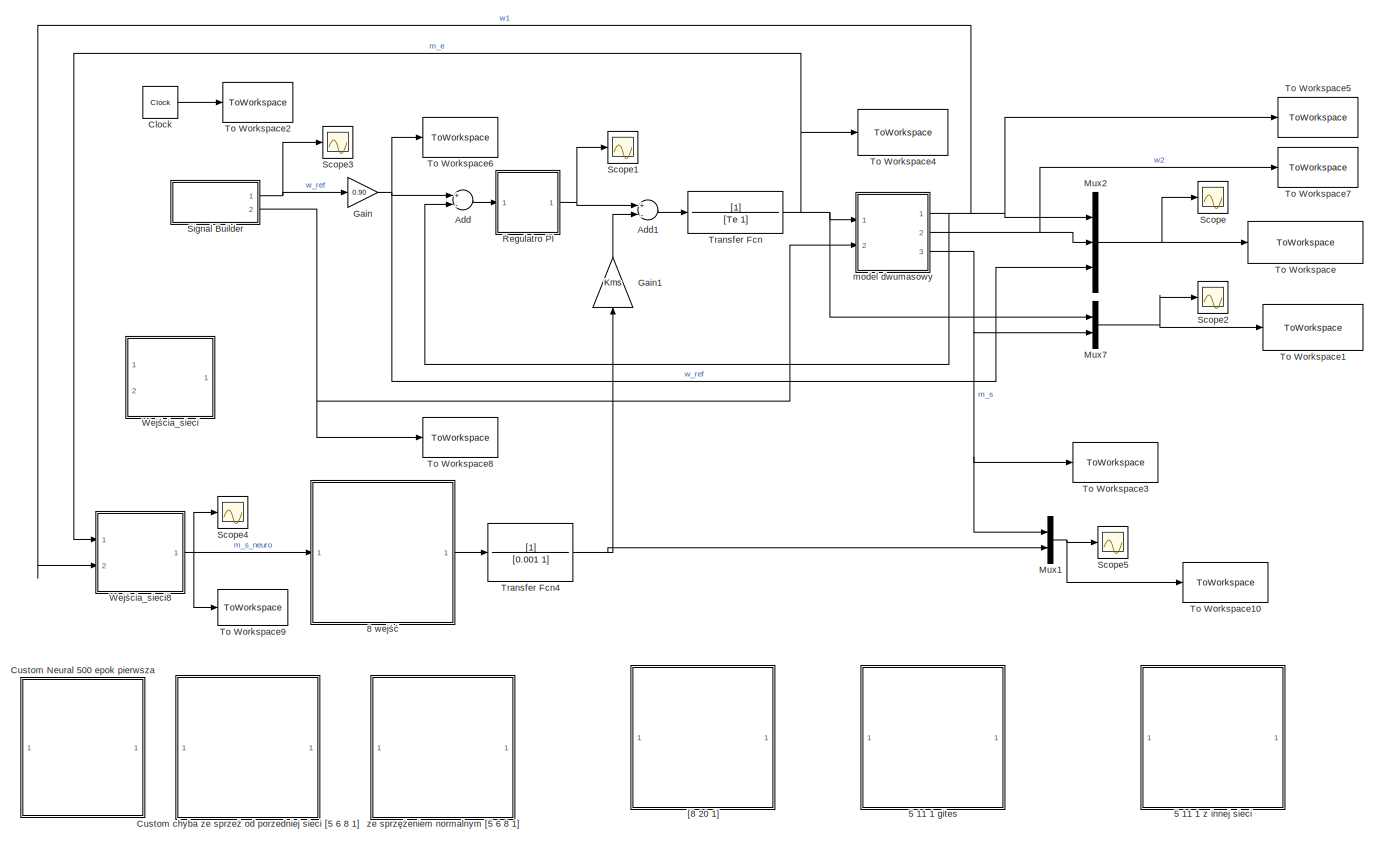
[diagram: root canvas - part 1/1, most of the canvas]
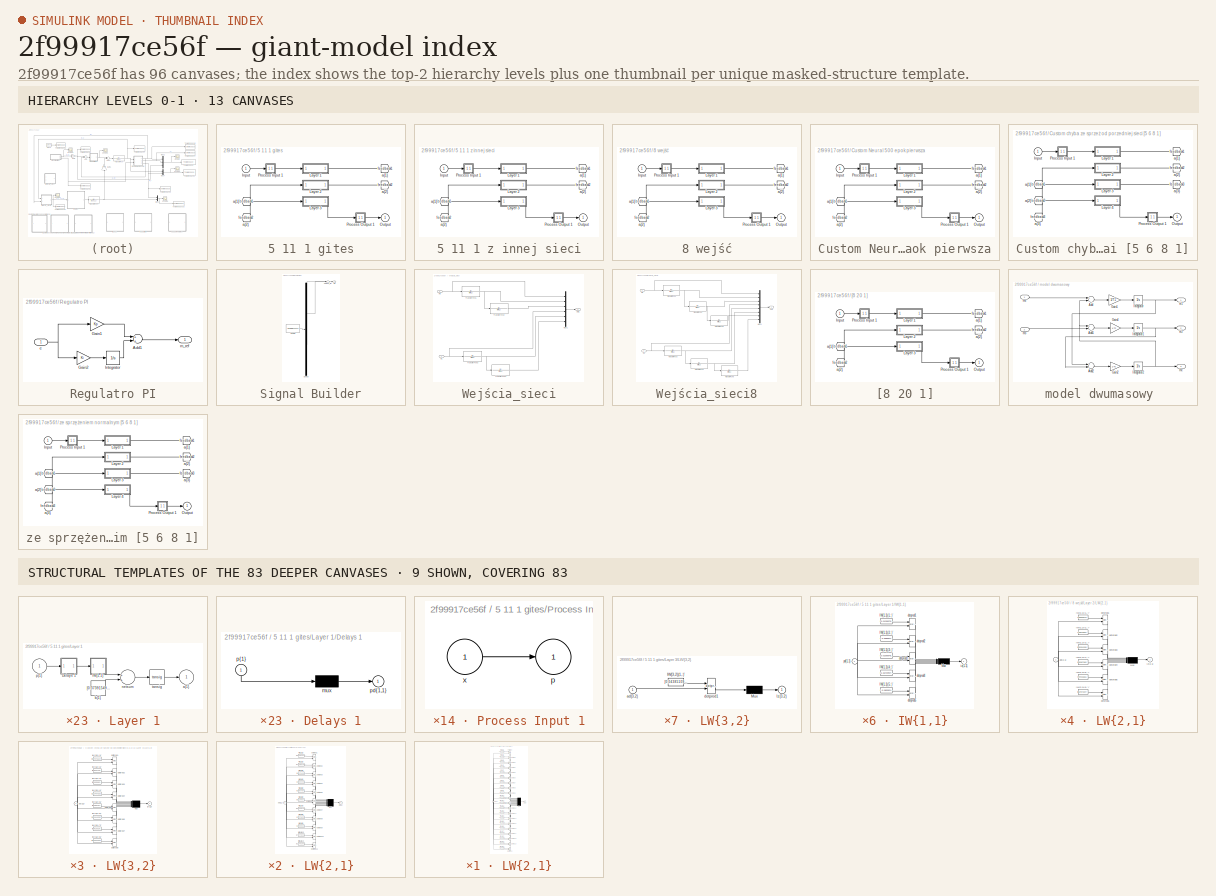
[diagram: thumbnail index - top-2 hierarchy levels (13 canvases) + 9 structural-template representatives of the remaining 83 canvases]
MODEL slx_2f99917ce56f
KIND model
CONFIG AbsTol = auto
CONFIG EnableMultiTasking = off
CONFIG FixedStep = 0.0001
CONFIG MaxStep = auto
CONFIG MinStep = auto
CONFIG RelTol = 1e-3
CONFIG SampleTimeConstraint = Unconstrained
CONFIG Solver = ode1
CONFIG SolverName = ode1
CONFIG StartTime = 0.0
CONFIG StopTime = 9
BLOCK [SubSystem] 5 11 1 gites
  Ports = [1, 1]
  RequestExecContextInheritance = off
  Variant = off
BLOCK [From] 5 11 1 gites/ a{1} 
  GotoTag = feedback1
BLOCK [From] 5 11 1 gites/ a{2} 
  GotoTag = feedback2
BLOCK [Inport] 5 11 1 gites/Input
  IconDisplay = Port number
  PortDimensions = 6
BLOCK [SubSystem] 5 11 1 gites/Layer 1
  Ports = [1, 1]
  RequestExecContextInheritance = off
  Variant = off
BLOCK [SubSystem] 5 11 1 gites/Layer 1/Delays 1
  Ports = [1, 1]
  RequestExecContextInheritance = off
  Variant = off
BLOCK [Mux] 5 11 1 gites/Layer 1/Delays 1/mux
  Inputs = 1
  Ports = [1, 1]
BLOCK [Outport] 5 11 1 gites/Layer 1/Delays 1/pd{1,1}
  IconDisplay = Port number
BLOCK [Inport] 5 11 1 gites/Layer 1/Delays 1/p{1}
  IconDisplay = Port number
  PortDimensions = 6
BLOCK [SubSystem] 5 11 1 gites/Layer 1/IW{1,1}
  Ports = [1, 1]
  RequestExecContextInheritance = off
  Variant = off
BLOCK [Constant] 5 11 1 gites/Layer 1/IW{1,1}/IW{1,1}(1,:)'
  Value = [0.01296378060839219019395596177446350338868796825408935546875;0.06002143201424810226018990988450241275131702423095703125;-0.1072510455985693222924481915470096282660961151123046875;0.9947182328582304666753088895347900688648223876953125;0.85208792660169108135193027919740416109561920166015625;-1.851709104296613617179900757037103176116943359375]
BLOCK [Constant] 5 11 1 gites/Layer 1/IW{1,1}/IW{1,1}(2,:)'
  Value = [-0.898581105935454704791709445999003946781158447265625;0.83076465670178689659763904273859225213527679443359375;0.11850153963104280430140846647191210649907588958740234375;-7.6780729343862503810669295489788055419921875;-1.1897709567922769569037200199090875685214996337890625;8.8737508892611014488238652120344340801239013671875]
BLOCK [Constant] 5 11 1 gites/Layer 1/IW{1,1}/IW{1,1}(3,:)'
  Value = [0.0106664881818816226211055209205369465053081512451171875;0.232681568020231654969620649353601038455963134765625;-0.17935648569618967140826271133846603333950042724609375;-3.681028228180133421432174145593307912349700927734375;7.60734164653991040694336334127001464366912841796875;-3.92844537178209662897643283940851688385009765625]
BLOCK [Constant] 5 11 1 gites/Layer 1/IW{1,1}/IW{1,1}(4,:)'
  Value = [5.65723927094790468572682584635913372039794921875;1.890958553431683952794628567062318325042724609375;-2.857816377429713838864699937403202056884765625;-0.71902470366073545360308116869418881833553314208984375;-0.020407532415496414113231793407976510934531688690185546875;0.31193728524288044656742613369715400040149688720703125]
BLOCK [Constant] 5 11 1 gites/Layer 1/IW{1,1}/IW{1,1}(5,:)'
  Value = [-0.085362443349596139885449019857333041727542877197265625;-0.265242896782122483667620826963684521615505218505859375;0.1807818282869165515958087553372024558484554290771484375;0.479524494085429020540090050417347811162471771240234375;0.4564410048227400817921761699835769832134246826171875;-0.921734181507171346225959496223367750644683837890625]
BLOCK [Mux] 5 11 1 gites/Layer 1/IW{1,1}/Mux
  Inputs = 5
  Ports = [5, 1]
BLOCK [Reference] 5 11 1 gites/Layer 1/IW{1,1}/dotprod1  REF=neural/Weight Functions/dotprod
  Ports = [2, 1]
  SourceBlock = neural/Weight Functions/dotprod
  SourceProductBaseCode = NN
  SourceProductName = Neural Network Toolbox
  SourceType = DOTPROD
BLOCK [Reference] 5 11 1 gites/Layer 1/IW{1,1}/dotprod2  REF=neural/Weight Functions/dotprod
  Ports = [2, 1]
  SourceBlock = neural/Weight Functions/dotprod
  SourceProductBaseCode = NN
  SourceProductName = Neural Network Toolbox
  SourceType = DOTPROD
BLOCK [Reference] 5 11 1 gites/Layer 1/IW{1,1}/dotprod3  REF=neural/Weight Functions/dotprod
  Ports = [2, 1]
  SourceBlock = neural/Weight Functions/dotprod
  SourceProductBaseCode = NN
  SourceProductName = Neural Network Toolbox
  SourceType = DOTPROD
BLOCK [Reference] 5 11 1 gites/Layer 1/IW{1,1}/dotprod4  REF=neural/Weight Functions/dotprod
  Ports = [2, 1]
  SourceBlock = neural/Weight Functions/dotprod
  SourceProductBaseCode = NN
  SourceProductName = Neural Network Toolbox
  SourceType = DOTPROD
BLOCK [Reference] 5 11 1 gites/Layer 1/IW{1,1}/dotprod5  REF=neural/Weight Functions/dotprod
  Ports = [2, 1]
  SourceBlock = neural/Weight Functions/dotprod
  SourceProductBaseCode = NN
  SourceProductName = Neural Network Toolbox
  SourceType = DOTPROD
BLOCK [Outport] 5 11 1 gites/Layer 1/IW{1,1}/iz{1,1}
  IconDisplay = Port number
BLOCK [Inport] 5 11 1 gites/Layer 1/IW{1,1}/pd{1,1}
  IconDisplay = Port number
  PortDimensions = 6
BLOCK [Outport] 5 11 1 gites/Layer 1/a{1}
  IconDisplay = Port number
  InitialOutput = [0;0;0;0;0]
BLOCK [Constant] 5 11 1 gites/Layer 1/b{1}
  Value = [0.373915495635409877994703720105462707579135894775390625;0.26264406814446095150827886754996143281459808349609375;-0.07902219357171490210500763851086958311498165130615234375;1.5235180524566656057317004524520598351955413818359375;-0.275934397531711950168897828916669823229312896728515625]
BLOCK [Sum] 5 11 1 gites/Layer 1/netsum
  Inputs = 2
  Ports = [2, 1]
BLOCK [Inport] 5 11 1 gites/Layer 1/p{1}
  IconDisplay = Port number
  PortDimensions = 6
BLOCK [Reference] 5 11 1 gites/Layer 1/tansig  REF=neural/Transfer Functions/tansig
  Ports = [1, 1]
  SourceBlock = neural/Transfer Functions/tansig
  SourceProductBaseCode = NN
  SourceProductName = Neural Network Toolbox
  SourceType = TANSIG
BLOCK [SubSystem] 5 11 1 gites/Layer 2
  Ports = [1, 1]
  RequestExecContextInheritance = off
  Variant = off
BLOCK [SubSystem] 5 11 1 gites/Layer 2/Delays 1
  Ports = [1, 1]
  RequestExecContextInheritance = off
  Variant = off
BLOCK [Mux] 5 11 1 gites/Layer 2/Delays 1/mux
  Inputs = 1
  Ports = [1, 1]
BLOCK [Outport] 5 11 1 gites/Layer 2/Delays 1/pd{2,1}
  IconDisplay = Port number
BLOCK [Inport] 5 11 1 gites/Layer 2/Delays 1/p{2}
  IconDisplay = Port number
  PortDimensions = 5
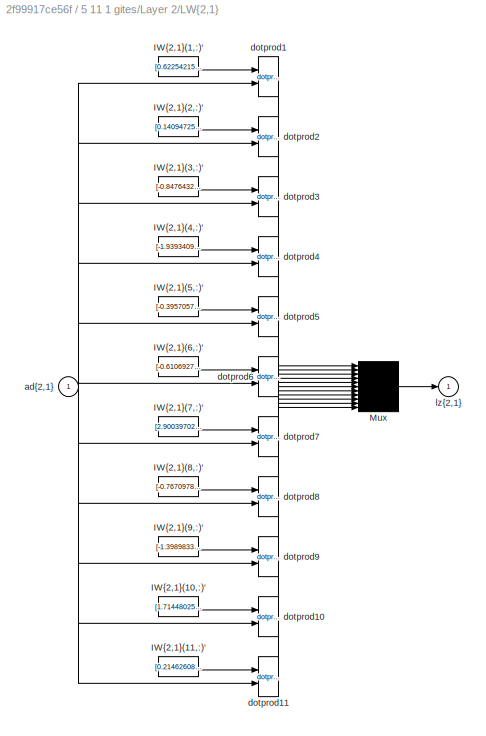
BLOCK [SubSystem] 5 11 1 gites/Layer 2/LW{2,1}
  Ports = [1, 1]
  RequestExecContextInheritance = off
  Variant = off
BLOCK [Constant] 5 11 1 gites/Layer 2/LW{2,1}/IW{2,1}(1,:)'
  Value = [0.62254215266102030934547428842051886022090911865234375;-0.57208591787402796047246056332369334995746612548828125;0.179094542056086158954286702282843180000782012939453125;-1.154264871671748071690899450914002954959869384765625;1.8108691333939059830981932464055716991424560546875]
BLOCK [Constant] 5 11 1 gites/Layer 2/LW{2,1}/IW{2,1}(10,:)'
  Value = [1.714480251151744294446643834817223250865936279296875;-4.16706129042247130911391650442965328693389892578125;5.24179367257349770881091899354942142963409423828125;-1.5084811766803245536294753037509508430957794189453125;2.4431338138185747510533474269323050975799560546875]
BLOCK [Constant] 5 11 1 gites/Layer 2/LW{2,1}/IW{2,1}(11,:)'
  Value = [0.21462608822280582199226728334906511008739471435546875;5.24553673991544311405732514685951173305511474609375;3.279519846911247871190653313533402979373931884765625;-1.6976995297201458168245835622656159102916717529296875;-1.2914659706392763727222927627735771238803863525390625]
BLOCK [Constant] 5 11 1 gites/Layer 2/LW{2,1}/IW{2,1}(2,:)'
  Value = [0.1409472517903228305780061191398999653756618499755859375;-0.1080863060873127612371291661474970169365406036376953125;-1.17990944893616234168121081893332302570343017578125;-0.79599042863423730143068723918986506760120391845703125;-1.117712521677756143390070064924657344818115234375]
BLOCK [Constant] 5 11 1 gites/Layer 2/LW{2,1}/IW{2,1}(3,:)'
  Value = [-0.84764324898854204182185867466614581644535064697265625;0.842990755186174833823997687431983649730682373046875;-0.9641636644200441974561499591800384223461151123046875;-0.2919709617430152892580963452928699553012847900390625;0.425583434065227861342606274774880148470401763916015625]
BLOCK [Constant] 5 11 1 gites/Layer 2/LW{2,1}/IW{2,1}(4,:)'
  Value = [-1.9393409426681802454339731411891989409923553466796875;1.127012733548131695471283819642849266529083251953125;0.8693515517426053662575213820673525333404541015625;0.034913224798808838167385459883007570169866085052490234375;-0.94495470016435134663623784945229999721050262451171875]
BLOCK [Constant] 5 11 1 gites/Layer 2/LW{2,1}/IW{2,1}(5,:)'
  Value = [-0.3957057312003922078247342142276465892791748046875;-0.86295652233233177685889359054272063076496124267578125;3.136224252215475072347317109233699738979339599609375;-0.70468459795540516754641657826141454279422760009765625;0.07711349955570000191951152146430104039609432220458984375]
BLOCK [Constant] 5 11 1 gites/Layer 2/LW{2,1}/IW{2,1}(6,:)'
  Value = [-0.61069271319746232240532890500617213547229766845703125;-4.2480126001888844911036358098499476909637451171875;-0.9093190554462278196723445944371633231639862060546875;2.311430660690381611033217268413864076137542724609375;1.4036045506170851115967934674699790775775909423828125]
BLOCK [Constant] 5 11 1 gites/Layer 2/LW{2,1}/IW{2,1}(7,:)'
  Value = [2.900397022927766688127348970738239586353302001953125;-0.94091047868052457570087199201225303113460540771484375;1.4473138625268398005374592685257084667682647705078125;-0.1462628894128295831134067839229828678071498870849609375;0.718676766103116815287421559332869946956634521484375]
BLOCK [Constant] 5 11 1 gites/Layer 2/LW{2,1}/IW{2,1}(8,:)'
  Value = [-0.76709786779815625212819441003375686705112457275390625;4.7000715814100626488425405113957822322845458984375;6.319172545414058816959368414245545864105224609375;1.8158196650378857217589256833889521658420562744140625;-0.96574080982476961931837422525859437882900238037109375]
BLOCK [Constant] 5 11 1 gites/Layer 2/LW{2,1}/IW{2,1}(9,:)'
  Value = [-1.398983317770058132367694270214997231960296630859375;-0.377849300345691474500853246354381553828716278076171875;-2.705095285088490175695596917648799717426300048828125;-1.1697418531036303246395391397527419030666351318359375;0.93652604736202549329249222864746116101741790771484375]
BLOCK [Mux] 5 11 1 gites/Layer 2/LW{2,1}/Mux
  Inputs = 11
  Ports = [11, 1]
BLOCK [Inport] 5 11 1 gites/Layer 2/LW{2,1}/ad{2,1}
  IconDisplay = Port number
  PortDimensions = 5
BLOCK [Reference] 5 11 1 gites/Layer 2/LW{2,1}/dotprod1  REF=neural/Weight Functions/dotprod
  Ports = [2, 1]
  SourceBlock = neural/Weight Functions/dotprod
  SourceProductBaseCode = NN
  SourceProductName = Neural Network Toolbox
  SourceType = DOTPROD
BLOCK [Reference] 5 11 1 gites/Layer 2/LW{2,1}/dotprod10  REF=neural/Weight Functions/dotprod
  Ports = [2, 1]
  SourceBlock = neural/Weight Functions/dotprod
  SourceProductBaseCode = NN
  SourceProductName = Neural Network Toolbox
  SourceType = DOTPROD
BLOCK [Reference] 5 11 1 gites/Layer 2/LW{2,1}/dotprod11  REF=neural/Weight Functions/dotprod
  Ports = [2, 1]
  SourceBlock = neural/Weight Functions/dotprod
  SourceProductBaseCode = NN
  SourceProductName = Neural Network Toolbox
  SourceType = DOTPROD
BLOCK [Reference] 5 11 1 gites/Layer 2/LW{2,1}/dotprod2  REF=neural/Weight Functions/dotprod
  Ports = [2, 1]
  SourceBlock = neural/Weight Functions/dotprod
  SourceProductBaseCode = NN
  SourceProductName = Neural Network Toolbox
  SourceType = DOTPROD
BLOCK [Reference] 5 11 1 gites/Layer 2/LW{2,1}/dotprod3  REF=neural/Weight Functions/dotprod
  Ports = [2, 1]
  SourceBlock = neural/Weight Functions/dotprod
  SourceProductBaseCode = NN
  SourceProductName = Neural Network Toolbox
  SourceType = DOTPROD
BLOCK [Reference] 5 11 1 gites/Layer 2/LW{2,1}/dotprod4  REF=neural/Weight Functions/dotprod
  Ports = [2, 1]
  SourceBlock = neural/Weight Functions/dotprod
  SourceProductBaseCode = NN
  SourceProductName = Neural Network Toolbox
  SourceType = DOTPROD
BLOCK [Reference] 5 11 1 gites/Layer 2/LW{2,1}/dotprod5  REF=neural/Weight Functions/dotprod
  Ports = [2, 1]
  SourceBlock = neural/Weight Functions/dotprod
  SourceProductBaseCode = NN
  SourceProductName = Neural Network Toolbox
  SourceType = DOTPROD
BLOCK [Reference] 5 11 1 gites/Layer 2/LW{2,1}/dotprod6  REF=neural/Weight Functions/dotprod
  Ports = [2, 1]
  SourceBlock = neural/Weight Functions/dotprod
  SourceProductBaseCode = NN
  SourceProductName = Neural Network Toolbox
  SourceType = DOTPROD
BLOCK [Reference] 5 11 1 gites/Layer 2/LW{2,1}/dotprod7  REF=neural/Weight Functions/dotprod
  Ports = [2, 1]
  SourceBlock = neural/Weight Functions/dotprod
  SourceProductBaseCode = NN
  SourceProductName = Neural Network Toolbox
  SourceType = DOTPROD
BLOCK [Reference] 5 11 1 gites/Layer 2/LW{2,1}/dotprod8  REF=neural/Weight Functions/dotprod
  Ports = [2, 1]
  SourceBlock = neural/Weight Functions/dotprod
  SourceProductBaseCode = NN
  SourceProductName = Neural Network Toolbox
  SourceType = DOTPROD
BLOCK [Reference] 5 11 1 gites/Layer 2/LW{2,1}/dotprod9  REF=neural/Weight Functions/dotprod
  Ports = [2, 1]
  SourceBlock = neural/Weight Functions/dotprod
  SourceProductBaseCode = NN
  SourceProductName = Neural Network Toolbox
  SourceType = DOTPROD
BLOCK [Outport] 5 11 1 gites/Layer 2/LW{2,1}/lz{2,1}
  IconDisplay = Port number
BLOCK [Inport] 5 11 1 gites/Layer 2/a{1} 
  IconDisplay = Port number
  PortDimensions = 5
BLOCK [Outport] 5 11 1 gites/Layer 2/a{2}
  IconDisplay = Port number
  InitialOutput = [0;0;0;0;0;0;0;0;0;0;0]
BLOCK [Constant] 5 11 1 gites/Layer 2/b{2}
  Value = [-2.223238707379042722322992631234228610992431640625;-0.7209703863498109210894426723825745284557342529296875;2.23308370718830762058360051014460623264312744140625;0.47543807776981539259253395357518456876277923583984375;0.30750500235583999586452819130499847233295440673828125;-0.8955079818750799613980007052305154502391815185546875;1.097078087088581010988264097250066697597503662109375;-2.7856601216637...<+200ch>
BLOCK [Sum] 5 11 1 gites/Layer 2/netsum
  Inputs = 2
  Ports = [2, 1]
BLOCK [Reference] 5 11 1 gites/Layer 2/tansig  REF=neural/Transfer Functions/tansig
  Ports = [1, 1]
  SourceBlock = neural/Transfer Functions/tansig
  SourceProductBaseCode = NN
  SourceProductName = Neural Network Toolbox
  SourceType = TANSIG
BLOCK [SubSystem] 5 11 1 gites/Layer 3
  Ports = [1, 1]
  RequestExecContextInheritance = off
  Variant = off
BLOCK [SubSystem] 5 11 1 gites/Layer 3/Delays 1
  Ports = [1, 1]
  RequestExecContextInheritance = off
  Variant = off
BLOCK [Mux] 5 11 1 gites/Layer 3/Delays 1/mux
  Inputs = 1
  Ports = [1, 1]
BLOCK [Outport] 5 11 1 gites/Layer 3/Delays 1/pd{3,2}
  IconDisplay = Port number
BLOCK [Inport] 5 11 1 gites/Layer 3/Delays 1/p{3}
  IconDisplay = Port number
  PortDimensions = 11
BLOCK [SubSystem] 5 11 1 gites/Layer 3/LW{3,2}
  Ports = [1, 1]
  RequestExecContextInheritance = off
  Variant = off
BLOCK [Constant] 5 11 1 gites/Layer 3/LW{3,2}/IW{3,2}(1,:)'
  Value = [0.043851096853200821623630645262892358005046844482421875;-1.762909643958057159807140124030411243438720703125;0.98589223107217438535343490002560429275035858154296875;1.506989671439454614443320679129101336002349853515625;2.21622443908723720795705958153121173381805419921875;-0.9438043882724456157262693523080088198184967041015625;-2.798754836066359441559825427248142659664154052734375;1.10921835685342...<+195ch>
BLOCK [Mux] 5 11 1 gites/Layer 3/LW{3,2}/Mux
  Inputs = 1
  Ports = [1, 1]
BLOCK [Inport] 5 11 1 gites/Layer 3/LW{3,2}/ad{3,2}
  IconDisplay = Port number
  PortDimensions = 11
BLOCK [Reference] 5 11 1 gites/Layer 3/LW{3,2}/dotprod1  REF=neural/Weight Functions/dotprod
  Ports = [2, 1]
  SourceBlock = neural/Weight Functions/dotprod
  SourceProductBaseCode = NN
  SourceProductName = Neural Network Toolbox
  SourceType = DOTPROD
BLOCK [Outport] 5 11 1 gites/Layer 3/LW{3,2}/lz{3,2}
  IconDisplay = Port number
BLOCK [Inport] 5 11 1 gites/Layer 3/a{2} 
  IconDisplay = Port number
  PortDimensions = 11
BLOCK [Outport] 5 11 1 gites/Layer 3/a{3}
  IconDisplay = Port number
  InitialOutput = 0
BLOCK [Constant] 5 11 1 gites/Layer 3/b{3}
  Value = -0.96678975559359991986951854414655826985836029052734375
BLOCK [Sum] 5 11 1 gites/Layer 3/netsum
  Inputs = 2
  Ports = [2, 1]
BLOCK [Reference] 5 11 1 gites/Layer 3/purelin  REF=neural/Transfer Functions/purelin
  Ports = [1, 1]
  SourceBlock = neural/Transfer Functions/purelin
  SourceProductBaseCode = NN
  SourceProductName = Neural Network Toolbox
  SourceType = PURELIN
BLOCK [Outport] 5 11 1 gites/Output
  IconDisplay = Port number
  InitialOutput = 0
BLOCK [SubSystem] 5 11 1 gites/Process Input 1
  Ports = [1, 1]
  RequestExecContextInheritance = off
  Variant = off
BLOCK [Outport] 5 11 1 gites/Process Input 1/p
  IconDisplay = Port number
  PortDimensions = 6
BLOCK [Inport] 5 11 1 gites/Process Input 1/x
  IconDisplay = Port number
  PortDimensions = 6
BLOCK [SubSystem] 5 11 1 gites/Process Output 1
  Ports = [1, 1]
  RequestExecContextInheritance = off
  Variant = off
BLOCK [Inport] 5 11 1 gites/Process Output 1/a
  IconDisplay = Port number
  PortDimensions = 1
BLOCK [Outport] 5 11 1 gites/Process Output 1/y
  IconDisplay = Port number
  PortDimensions = 1
BLOCK [Goto] 5 11 1 gites/a{1}
  GotoTag = feedback1
BLOCK [Goto] 5 11 1 gites/a{2}
  GotoTag = feedback2
BLOCK [SubSystem] 5 11 1 z innej sieci
  Ports = [1, 1]
  RequestExecContextInheritance = off
  Variant = off
BLOCK [From] 5 11 1 z innej sieci/ a{1} 
  GotoTag = feedback1
BLOCK [From] 5 11 1 z innej sieci/ a{2} 
  GotoTag = feedback2
BLOCK [Inport] 5 11 1 z innej sieci/Input
  IconDisplay = Port number
  PortDimensions = 6
BLOCK [SubSystem] 5 11 1 z innej sieci/Layer 1
  Ports = [1, 1]
  RequestExecContextInheritance = off
  Variant = off
BLOCK [SubSystem] 5 11 1 z innej sieci/Layer 1/Delays 1
  Ports = [1, 1]
  RequestExecContextInheritance = off
  Variant = off
BLOCK [Mux] 5 11 1 z innej sieci/Layer 1/Delays 1/mux
  Inputs = 1
  Ports = [1, 1]
BLOCK [Outport] 5 11 1 z innej sieci/Layer 1/Delays 1/pd{1,1}
  IconDisplay = Port number
BLOCK [Inport] 5 11 1 z innej sieci/Layer 1/Delays 1/p{1}
  IconDisplay = Port number
  PortDimensions = 6
BLOCK [SubSystem] 5 11 1 z innej sieci/Layer 1/IW{1,1}
  Ports = [1, 1]
  RequestExecContextInheritance = off
  Variant = off
BLOCK [Constant] 5 11 1 z innej sieci/Layer 1/IW{1,1}/IW{1,1}(1,:)'
  Value = [-0.059389839381434474108178989126827218569815158843994140625;0.40127540835869701663085606924141757190227508544921875;-0.89457020542157972275987276589148677885532379150390625;0.40337936316476141751508066590758971869945526123046875;1.9532977599749139496765337753458879888057708740234375;-2.338534541556184453980904436320997774600982666015625]
BLOCK [Constant] 5 11 1 z innej sieci/Layer 1/IW{1,1}/IW{1,1}(2,:)'
  Value = [0.250978336570628457469211980424006469547748565673828125;1.0256370686352713761380073265172541141510009765625;-0.109914985901163497761245935180340893566608428955078125;-1.7269351241201247315615319166681729257106781005859375;1.6903612806774166443801732384599745273590087890625;0.0008247730716859254240791443635316682048141956329345703125]
BLOCK [Constant] 5 11 1 z innej sieci/Layer 1/IW{1,1}/IW{1,1}(3,:)'
  Value = [0.044943609480854525284332368073592078872025012969970703125;-0.257824845686898840302347934994031675159931182861328125;-0.1529921444828405141524996224688948132097721099853515625;7.66332396571412033381420769728720188140869140625;1.6968375077611881351913325488567352294921875;-9.3620383330953576006550065358169376850128173828125]
BLOCK [Constant] 5 11 1 z innej sieci/Layer 1/IW{1,1}/IW{1,1}(4,:)'
  Value = [0.005804859600632296390276820829967618919909000396728515625;-0.2227615920163366347583888682493125088512897491455078125;0.10476156379620393810370160281308926641941070556640625;4.4516024013325168340315940440632402896881103515625;-5.8479919504870441215871323947794735431671142578125;1.3962560715375176290109493493218906223773956298828125]
BLOCK [Constant] 5 11 1 z innej sieci/Layer 1/IW{1,1}/IW{1,1}(5,:)'
  Value = [0.082304319827121441566220028107636608183383941650390625;-0.64135855647229511600215801081503741443157196044921875;0.79750739068030240819240361815900541841983795166015625;3.491512576685999125203352377866394817829132080078125;1.1357372432216765734125374365248717367649078369140625;-4.6463584668682766931624428252689540386199951171875]
BLOCK [Mux] 5 11 1 z innej sieci/Layer 1/IW{1,1}/Mux
  Inputs = 5
  Ports = [5, 1]
BLOCK [Reference] 5 11 1 z innej sieci/Layer 1/IW{1,1}/dotprod1  REF=neural/Weight Functions/dotprod
  Ports = [2, 1]
  SourceBlock = neural/Weight Functions/dotprod
  SourceProductBaseCode = NN
  SourceProductName = Neural Network Toolbox
  SourceType = DOTPROD
BLOCK [Reference] 5 11 1 z innej sieci/Layer 1/IW{1,1}/dotprod2  REF=neural/Weight Functions/dotprod
  Ports = [2, 1]
  SourceBlock = neural/Weight Functions/dotprod
  SourceProductBaseCode = NN
  SourceProductName = Neural Network Toolbox
  SourceType = DOTPROD
BLOCK [Reference] 5 11 1 z innej sieci/Layer 1/IW{1,1}/dotprod3  REF=neural/Weight Functions/dotprod
  Ports = [2, 1]
  SourceBlock = neural/Weight Functions/dotprod
  SourceProductBaseCode = NN
  SourceProductName = Neural Network Toolbox
  SourceType = DOTPROD
BLOCK [Reference] 5 11 1 z innej sieci/Layer 1/IW{1,1}/dotprod4  REF=neural/Weight Functions/dotprod
  Ports = [2, 1]
  SourceBlock = neural/Weight Functions/dotprod
  SourceProductBaseCode = NN
  SourceProductName = Neural Network Toolbox
  SourceType = DOTPROD
BLOCK [Reference] 5 11 1 z innej sieci/Layer 1/IW{1,1}/dotprod5  REF=neural/Weight Functions/dotprod
  Ports = [2, 1]
  SourceBlock = neural/Weight Functions/dotprod
  SourceProductBaseCode = NN
  SourceProductName = Neural Network Toolbox
  SourceType = DOTPROD
BLOCK [Outport] 5 11 1 z innej sieci/Layer 1/IW{1,1}/iz{1,1}
  IconDisplay = Port number
BLOCK [Inport] 5 11 1 z innej sieci/Layer 1/IW{1,1}/pd{1,1}
  IconDisplay = Port number
  PortDimensions = 6
BLOCK [Outport] 5 11 1 z innej sieci/Layer 1/a{1}
  IconDisplay = Port number
  InitialOutput = [0;0;0;0;0]
BLOCK [Constant] 5 11 1 z innej sieci/Layer 1/b{1}
  Value = [0.93261160247487906449492811589152552187442779541015625;-0.58321861396910412711491744630620814859867095947265625;0.33528402177427352182093045485089533030986785888671875;-0.118661830223939335215987966876127757132053375244140625;-1.77778535620488664648064514040015637874603271484375]
BLOCK [Sum] 5 11 1 z innej sieci/Layer 1/netsum
  Inputs = 2
  Ports = [2, 1]
BLOCK [Inport] 5 11 1 z innej sieci/Layer 1/p{1}
  IconDisplay = Port number
  PortDimensions = 6
BLOCK [Reference] 5 11 1 z innej sieci/Layer 1/tansig  REF=neural/Transfer Functions/tansig
  Ports = [1, 1]
  SourceBlock = neural/Transfer Functions/tansig
  SourceProductBaseCode = NN
  SourceProductName = Neural Network Toolbox
  SourceType = TANSIG
BLOCK [SubSystem] 5 11 1 z innej sieci/Layer 2
  Ports = [1, 1]
  RequestExecContextInheritance = off
  Variant = off
BLOCK [SubSystem] 5 11 1 z innej sieci/Layer 2/Delays 1
  Ports = [1, 1]
  RequestExecContextInheritance = off
  Variant = off
BLOCK [Mux] 5 11 1 z innej sieci/Layer 2/Delays 1/mux
  Inputs = 1
  Ports = [1, 1]
BLOCK [Outport] 5 11 1 z innej sieci/Layer 2/Delays 1/pd{2,1}
  IconDisplay = Port number
BLOCK [Inport] 5 11 1 z innej sieci/Layer 2/Delays 1/p{2}
  IconDisplay = Port number
  PortDimensions = 5
BLOCK [SubSystem] 5 11 1 z innej sieci/Layer 2/LW{2,1}
  Ports = [1, 1]
  RequestExecContextInheritance = off
  Variant = off
BLOCK [Constant] 5 11 1 z innej sieci/Layer 2/LW{2,1}/IW{2,1}(1,:)'
  Value = [1.0365442648734812802757687677512876689434051513671875;1.83967975076371192955093647469766438007354736328125;1.4294705304372428145143203437328338623046875;-2.129613078187407193553326578694395720958709716796875;-0.10260866898455263396261472053083707578480243682861328125]
BLOCK [Constant] 5 11 1 z innej sieci/Layer 2/LW{2,1}/IW{2,1}(10,:)'
  Value = [2.833988631741634289795683798729442059993743896484375;2.264880494231628293988478617393411695957183837890625;0.94218559012467595348283566636382602155208587646484375;-2.354024855148924455505721198278479278087615966796875;0.694617895062301204944787968997843563556671142578125]
BLOCK [Constant] 5 11 1 z innej sieci/Layer 2/LW{2,1}/IW{2,1}(11,:)'
  Value = [-1.41864951665874539088463279767893254756927490234375;-1.1066776755970131329576133794034831225872039794921875;1.7958515301184203583062526377034373581409454345703125;-3.226251358838197358380739387939684092998504638671875;0.67744698218061938366219010276836343109607696533203125]
BLOCK [Constant] 5 11 1 z innej sieci/Layer 2/LW{2,1}/IW{2,1}(2,:)'
  Value = [0.335286024310277597226814805253525264561176300048828125;1.200934940260292460578739337506704032421112060546875;-10.6276644524135317482205209671519696712493896484375;-2.6339402504511557623345652245916426181793212890625;-0.657826716339883432738133706152439117431640625]
BLOCK [Constant] 5 11 1 z innej sieci/Layer 2/LW{2,1}/IW{2,1}(3,:)'
  Value = [3.43785748094133669638949868385680019855499267578125;0.4445349277324794901034010763396508991718292236328125;0.10026678686636458781578085108776576817035675048828125;-4.22252438979840949428989915759302675724029541015625;2.630326649277629602607930792146362364292144775390625]
BLOCK [Constant] 5 11 1 z innej sieci/Layer 2/LW{2,1}/IW{2,1}(4,:)'
  Value = [-3.364241368654017794170840716105885803699493408203125;-3.0905771352799291662449832074344158172607421875;-0.3019862541669524613752173536340706050395965576171875;-0.952922581467934293186772265471518039703369140625;-1.301979454741775565906891642953269183635711669921875]
BLOCK [Constant] 5 11 1 z innej sieci/Layer 2/LW{2,1}/IW{2,1}(5,:)'
  Value = [-4.76123310168817059917500955634750425815582275390625;-0.69589058063289421784958221905981190502643585205078125;0.496244745204127479798472677430254407227039337158203125;2.275752092095044698538686134270392358303070068359375;-2.057365345171027204429492485360242426395416259765625]
BLOCK [Constant] 5 11 1 z innej sieci/Layer 2/LW{2,1}/IW{2,1}(6,:)'
  Value = [-0.492104355282376892954943059521610848605632781982421875;0.8835078774256264200204213921097107231616973876953125;-1.642186429285961590807119137025438249111175537109375;1.8024687733806856737572843485395424067974090576171875;0.0676471724400777574270904324293951503932476043701171875]
BLOCK [Constant] 5 11 1 z innej sieci/Layer 2/LW{2,1}/IW{2,1}(7,:)'
  Value = [1.6254308343849288576166145503520965576171875;0.77045986982165093337471262202598154544830322265625;2.718108815896530305877831779071129858493804931640625;-0.270462987573354129988700833564507775008678436279296875;-1.6321140492663561705199981588521040976047515869140625]
BLOCK [Constant] 5 11 1 z innej sieci/Layer 2/LW{2,1}/IW{2,1}(8,:)'
  Value = [1.127846338488840860492246065405197441577911376953125;1.31512866317954202344253644696436822414398193359375;-0.00704309298543003524384342739494968554936349391937255859375;-1.9718179269982070156430609131348319351673126220703125;1.0856366389844804842823577928356826305389404296875]
BLOCK [Constant] 5 11 1 z innej sieci/Layer 2/LW{2,1}/IW{2,1}(9,:)'
  Value = [1.8600861668009860405703648211783729493618011474609375;2.950215714353565221728104006615467369556427001953125;0.62159665136193231749217602555290795862674713134765625;-4.4367457750020236062482581473886966705322265625;0.7704202264670871880269942266750149428844451904296875]
BLOCK [Mux] 5 11 1 z innej sieci/Layer 2/LW{2,1}/Mux
  Inputs = 11
  Ports = [11, 1]
BLOCK [Inport] 5 11 1 z innej sieci/Layer 2/LW{2,1}/ad{2,1}
  IconDisplay = Port number
  PortDimensions = 5
BLOCK [Reference] 5 11 1 z innej sieci/Layer 2/LW{2,1}/dotprod1  REF=neural/Weight Functions/dotprod
  Ports = [2, 1]
  SourceBlock = neural/Weight Functions/dotprod
  SourceProductBaseCode = NN
  SourceProductName = Neural Network Toolbox
  SourceType = DOTPROD
BLOCK [Reference] 5 11 1 z innej sieci/Layer 2/LW{2,1}/dotprod10  REF=neural/Weight Functions/dotprod
  Ports = [2, 1]
  SourceBlock = neural/Weight Functions/dotprod
  SourceProductBaseCode = NN
  SourceProductName = Neural Network Toolbox
  SourceType = DOTPROD
BLOCK [Reference] 5 11 1 z innej sieci/Layer 2/LW{2,1}/dotprod11  REF=neural/Weight Functions/dotprod
  Ports = [2, 1]
  SourceBlock = neural/Weight Functions/dotprod
  SourceProductBaseCode = NN
  SourceProductName = Neural Network Toolbox
  SourceType = DOTPROD
BLOCK [Reference] 5 11 1 z innej sieci/Layer 2/LW{2,1}/dotprod2  REF=neural/Weight Functions/dotprod
  Ports = [2, 1]
  SourceBlock = neural/Weight Functions/dotprod
  SourceProductBaseCode = NN
  SourceProductName = Neural Network Toolbox
  SourceType = DOTPROD
BLOCK [Reference] 5 11 1 z innej sieci/Layer 2/LW{2,1}/dotprod3  REF=neural/Weight Functions/dotprod
  Ports = [2, 1]
  SourceBlock = neural/Weight Functions/dotprod
  SourceProductBaseCode = NN
  SourceProductName = Neural Network Toolbox
  SourceType = DOTPROD
BLOCK [Reference] 5 11 1 z innej sieci/Layer 2/LW{2,1}/dotprod4  REF=neural/Weight Functions/dotprod
  Ports = [2, 1]
  SourceBlock = neural/Weight Functions/dotprod
  SourceProductBaseCode = NN
  SourceProductName = Neural Network Toolbox
  SourceType = DOTPROD
BLOCK [Reference] 5 11 1 z innej sieci/Layer 2/LW{2,1}/dotprod5  REF=neural/Weight Functions/dotprod
  Ports = [2, 1]
  SourceBlock = neural/Weight Functions/dotprod
  SourceProductBaseCode = NN
  SourceProductName = Neural Network Toolbox
  SourceType = DOTPROD
BLOCK [Reference] 5 11 1 z innej sieci/Layer 2/LW{2,1}/dotprod6  REF=neural/Weight Functions/dotprod
  Ports = [2, 1]
  SourceBlock = neural/Weight Functions/dotprod
  SourceProductBaseCode = NN
  SourceProductName = Neural Network Toolbox
  SourceType = DOTPROD
BLOCK [Reference] 5 11 1 z innej sieci/Layer 2/LW{2,1}/dotprod7  REF=neural/Weight Functions/dotprod
  Ports = [2, 1]
  SourceBlock = neural/Weight Functions/dotprod
  SourceProductBaseCode = NN
  SourceProductName = Neural Network Toolbox
  SourceType = DOTPROD
BLOCK [Reference] 5 11 1 z innej sieci/Layer 2/LW{2,1}/dotprod8  REF=neural/Weight Functions/dotprod
  Ports = [2, 1]
  SourceBlock = neural/Weight Functions/dotprod
  SourceProductBaseCode = NN
  SourceProductName = Neural Network Toolbox
  SourceType = DOTPROD
BLOCK [Reference] 5 11 1 z innej sieci/Layer 2/LW{2,1}/dotprod9  REF=neural/Weight Functions/dotprod
  Ports = [2, 1]
  SourceBlock = neural/Weight Functions/dotprod
  SourceProductBaseCode = NN
  SourceProductName = Neural Network Toolbox
  SourceType = DOTPROD
BLOCK [Outport] 5 11 1 z innej sieci/Layer 2/LW{2,1}/lz{2,1}
  IconDisplay = Port number
BLOCK [Inport] 5 11 1 z innej sieci/Layer 2/a{1} 
  IconDisplay = Port number
  PortDimensions = 5
BLOCK [Outport] 5 11 1 z innej sieci/Layer 2/a{2}
  IconDisplay = Port number
  InitialOutput = [0;0;0;0;0;0;0;0;0;0;0]
BLOCK [Constant] 5 11 1 z innej sieci/Layer 2/b{2}
  Value = [-0.0827592209368950004755305371872964315116405487060546875;-1.2389161972784197285335494598257355391979217529296875;1.1005747324473722503768158276216126978397369384765625;-0.285298379710419214294603307280340231955051422119140625;1.5523367412963724465413406505831517279148101806640625;-0.788940436796871313873680264805443584918975830078125;-3.1523840197431010068385148770175874233245849609375;0.779843...<+215ch>
BLOCK [Sum] 5 11 1 z innej sieci/Layer 2/netsum
  Inputs = 2
  Ports = [2, 1]
BLOCK [Reference] 5 11 1 z innej sieci/Layer 2/tansig  REF=neural/Transfer Functions/tansig
  Ports = [1, 1]
  SourceBlock = neural/Transfer Functions/tansig
  SourceProductBaseCode = NN
  SourceProductName = Neural Network Toolbox
  SourceType = TANSIG
BLOCK [SubSystem] 5 11 1 z innej sieci/Layer 3
  Ports = [1, 1]
  RequestExecContextInheritance = off
  Variant = off
BLOCK [SubSystem] 5 11 1 z innej sieci/Layer 3/Delays 1
  Ports = [1, 1]
  RequestExecContextInheritance = off
  Variant = off
BLOCK [Mux] 5 11 1 z innej sieci/Layer 3/Delays 1/mux
  Inputs = 1
  Ports = [1, 1]
BLOCK [Outport] 5 11 1 z innej sieci/Layer 3/Delays 1/pd{3,2}
  IconDisplay = Port number
BLOCK [Inport] 5 11 1 z innej sieci/Layer 3/Delays 1/p{3}
  IconDisplay = Port number
  PortDimensions = 11
BLOCK [SubSystem] 5 11 1 z innej sieci/Layer 3/LW{3,2}
  Ports = [1, 1]
  RequestExecContextInheritance = off
  Variant = off
BLOCK [Constant] 5 11 1 z innej sieci/Layer 3/LW{3,2}/IW{3,2}(1,:)'
  Value = [2.1042348265367909476708518923260271549224853515625;0.123592810471987279985484065036871470510959625244140625;1.857278218427515614763478879467584192752838134765625;1.4598271560184574724416961544193327426910400390625;-0.56642233822136855980744485350442118942737579345703125;1.86426871777947322783575145876966416835784912109375;-0.7986945004297678618598865796229802072048187255859375;3.4654727492430863...<+198ch>
BLOCK [Mux] 5 11 1 z innej sieci/Layer 3/LW{3,2}/Mux
  Inputs = 1
  Ports = [1, 1]
BLOCK [Inport] 5 11 1 z innej sieci/Layer 3/LW{3,2}/ad{3,2}
  IconDisplay = Port number
  PortDimensions = 11
BLOCK [Reference] 5 11 1 z innej sieci/Layer 3/LW{3,2}/dotprod1  REF=neural/Weight Functions/dotprod
  Ports = [2, 1]
  SourceBlock = neural/Weight Functions/dotprod
  SourceProductBaseCode = NN
  SourceProductName = Neural Network Toolbox
  SourceType = DOTPROD
BLOCK [Outport] 5 11 1 z innej sieci/Layer 3/LW{3,2}/lz{3,2}
  IconDisplay = Port number
BLOCK [Inport] 5 11 1 z innej sieci/Layer 3/a{2} 
  IconDisplay = Port number
  PortDimensions = 11
BLOCK [Outport] 5 11 1 z innej sieci/Layer 3/a{3}
  IconDisplay = Port number
  InitialOutput = 0
BLOCK [Constant] 5 11 1 z innej sieci/Layer 3/b{3}
  Value = -0.15722449580614783481991025837487541139125823974609375
BLOCK [Sum] 5 11 1 z innej sieci/Layer 3/netsum
  Inputs = 2
  Ports = [2, 1]
BLOCK [Reference] 5 11 1 z innej sieci/Layer 3/purelin  REF=neural/Transfer Functions/purelin
  Ports = [1, 1]
  SourceBlock = neural/Transfer Functions/purelin
  SourceProductBaseCode = NN
  SourceProductName = Neural Network Toolbox
  SourceType = PURELIN
BLOCK [Outport] 5 11 1 z innej sieci/Output
  IconDisplay = Port number
  InitialOutput = 0
BLOCK [SubSystem] 5 11 1 z innej sieci/Process Input 1
  Ports = [1, 1]
  RequestExecContextInheritance = off
  Variant = off
BLOCK [Outport] 5 11 1 z innej sieci/Process Input 1/p
  IconDisplay = Port number
  PortDimensions = 6
BLOCK [Inport] 5 11 1 z innej sieci/Process Input 1/x
  IconDisplay = Port number
  PortDimensions = 6
BLOCK [SubSystem] 5 11 1 z innej sieci/Process Output 1
  Ports = [1, 1]
  RequestExecContextInheritance = off
  Variant = off
BLOCK [Inport] 5 11 1 z innej sieci/Process Output 1/a
  IconDisplay = Port number
  PortDimensions = 1
BLOCK [Outport] 5 11 1 z innej sieci/Process Output 1/y
  IconDisplay = Port number
  PortDimensions = 1
BLOCK [Goto] 5 11 1 z innej sieci/a{1}
  GotoTag = feedback1
BLOCK [Goto] 5 11 1 z innej sieci/a{2}
  GotoTag = feedback2
BLOCK [SubSystem] 8 wejść
  Ports = [1, 1]
  RequestExecContextInheritance = off
  Variant = off
BLOCK [From] 8 wejść/ a{1} 
  GotoTag = feedback1
BLOCK [From] 8 wejść/ a{2} 
  GotoTag = feedback2
BLOCK [Inport] 8 wejść/Input
  IconDisplay = Port number
  PortDimensions = 8
BLOCK [SubSystem] 8 wejść/Layer 1
  Ports = [1, 1]
  RequestExecContextInheritance = off
  Variant = off
BLOCK [SubSystem] 8 wejść/Layer 1/Delays 1
  Ports = [1, 1]
  RequestExecContextInheritance = off
  Variant = off
BLOCK [Mux] 8 wejść/Layer 1/Delays 1/mux
  Inputs = 1
  Ports = [1, 1]
BLOCK [Outport] 8 wejść/Layer 1/Delays 1/pd{1,1}
  IconDisplay = Port number
BLOCK [Inport] 8 wejść/Layer 1/Delays 1/p{1}
  IconDisplay = Port number
  PortDimensions = 8
BLOCK [SubSystem] 8 wejść/Layer 1/IW{1,1}
  Ports = [1, 1]
  RequestExecContextInheritance = off
  Variant = off
BLOCK [Constant] 8 wejść/Layer 1/IW{1,1}/IW{1,1}(1,:)'
  Value = [3.036261777700060893181444043875671923160552978515625;-3.323266354116956033948326876270584762096405029296875;-0.44821580527605175969796391655108891427516937255859375;-2.164128020640053051693030283786356449127197265625;0.33601197387386572135170581532292999327182769775390625;0.8577525759479858180611699935980141162872314453125;2.95419285544789378405994284548796713352203369140625;0.974709794498619830...<+35ch>
BLOCK [Constant] 8 wejść/Layer 1/IW{1,1}/IW{1,1}(2,:)'
  Value = [-0.04397610730863464600925993863711482845246791839599609375;0.12365244569768650551022659556110738776624202728271484375;-0.2410444216169697895235657369994441978633403778076171875;-1.9969192813801364128067916681175120174884796142578125;1.291278658642621923746673928690142929553985595703125;-0.94330309728208094899315483417012728750705718994140625;0.2207802947494081624579820299913990311324596405029296...<+55ch>
BLOCK [Constant] 8 wejść/Layer 1/IW{1,1}/IW{1,1}(3,:)'
  Value = [0.024814544603348830109634803875451325438916683197021484375;-0.1962157453771587178881219415416126139461994171142578125;0.16834768371692121480265313948621042072772979736328125;3.69951910012121754078862068126909434795379638671875;-4.32046927500295030455390588031150400638580322265625;0.74065037512983000755895091060665436089038848876953125;-0.0884653363117811897264886056291288696229457855224609375;-0...<+58ch>
BLOCK [Constant] 8 wejść/Layer 1/IW{1,1}/IW{1,1}(4,:)'
  Value = [-0.03644886748797748765582582564093172550201416015625;0.08492066119895091969027589584584347903728485107421875;-0.055203677514466420461758389137685298919677734375;-1.3761965816503323178920936697977595031261444091796875;-1.8889040433983208533419428931665606796741485595703125;4.43588226625648740508722767117433249950408935546875;0.07272276990878813462959584512645960785448551177978515625;-1.1711849026...<+39ch>
BLOCK [Constant] 8 wejść/Layer 1/IW{1,1}/IW{1,1}(5,:)'
  Value = [-2.9147479918613488081291507114656269550323486328125;1.871366097956652208011973925749771296977996826171875;3.4519540475718031302676536142826080322265625;0.367391390149504559747839493866194970905780792236328125;0.29670151701116032061378291473374702036380767822265625;0.04163231448986361160624625199488946236670017242431640625;-2.207548886040335833769177042995579540729522705078125;-0.6999732413347473...<+38ch>
BLOCK [Mux] 8 wejść/Layer 1/IW{1,1}/Mux
  Inputs = 5
  Ports = [5, 1]
BLOCK [Reference] 8 wejść/Layer 1/IW{1,1}/dotprod1  REF=neural/Weight Functions/dotprod
  Ports = [2, 1]
  SourceBlock = neural/Weight Functions/dotprod
  SourceProductBaseCode = NN
  SourceProductName = Neural Network Toolbox
  SourceType = DOTPROD
BLOCK [Reference] 8 wejść/Layer 1/IW{1,1}/dotprod2  REF=neural/Weight Functions/dotprod
  Ports = [2, 1]
  SourceBlock = neural/Weight Functions/dotprod
  SourceProductBaseCode = NN
  SourceProductName = Neural Network Toolbox
  SourceType = DOTPROD
BLOCK [Reference] 8 wejść/Layer 1/IW{1,1}/dotprod3  REF=neural/Weight Functions/dotprod
  Ports = [2, 1]
  SourceBlock = neural/Weight Functions/dotprod
  SourceProductBaseCode = NN
  SourceProductName = Neural Network Toolbox
  SourceType = DOTPROD
BLOCK [Reference] 8 wejść/Layer 1/IW{1,1}/dotprod4  REF=neural/Weight Functions/dotprod
  Ports = [2, 1]
  SourceBlock = neural/Weight Functions/dotprod
  SourceProductBaseCode = NN
  SourceProductName = Neural Network Toolbox
  SourceType = DOTPROD
BLOCK [Reference] 8 wejść/Layer 1/IW{1,1}/dotprod5  REF=neural/Weight Functions/dotprod
  Ports = [2, 1]
  SourceBlock = neural/Weight Functions/dotprod
  SourceProductBaseCode = NN
  SourceProductName = Neural Network Toolbox
  SourceType = DOTPROD
BLOCK [Outport] 8 wejść/Layer 1/IW{1,1}/iz{1,1}
  IconDisplay = Port number
BLOCK [Inport] 8 wejść/Layer 1/IW{1,1}/pd{1,1}
  IconDisplay = Port number
  PortDimensions = 8
BLOCK [Outport] 8 wejść/Layer 1/a{1}
  IconDisplay = Port number
  InitialOutput = [0;0;0;0;0]
BLOCK [Constant] 8 wejść/Layer 1/b{1}
  Value = [0.2372934308257710345202440294087864458560943603515625;0.03160554393004981477144355039854417555034160614013671875;0.01066728192456620726014104860723819001577794551849365234375;-0.01552746457084898390466065620785229839384555816650390625;-0.29489653178764985153037514464813284575939178466796875]
BLOCK [Sum] 8 wejść/Layer 1/netsum
  Inputs = 2
  Ports = [2, 1]
BLOCK [Inport] 8 wejść/Layer 1/p{1}
  IconDisplay = Port number
  PortDimensions = 8
BLOCK [Reference] 8 wejść/Layer 1/tansig  REF=neural/Transfer Functions/tansig
  Ports = [1, 1]
  SourceBlock = neural/Transfer Functions/tansig
  SourceProductBaseCode = NN
  SourceProductName = Neural Network Toolbox
  SourceType = TANSIG
BLOCK [SubSystem] 8 wejść/Layer 2
  Ports = [1, 1]
  RequestExecContextInheritance = off
  Variant = off
BLOCK [SubSystem] 8 wejść/Layer 2/Delays 1
  Ports = [1, 1]
  RequestExecContextInheritance = off
  Variant = off
BLOCK [Mux] 8 wejść/Layer 2/Delays 1/mux
  Inputs = 1
  Ports = [1, 1]
BLOCK [Outport] 8 wejść/Layer 2/Delays 1/pd{2,1}
  IconDisplay = Port number
BLOCK [Inport] 8 wejść/Layer 2/Delays 1/p{2}
  IconDisplay = Port number
  PortDimensions = 5
BLOCK [SubSystem] 8 wejść/Layer 2/LW{2,1}
  Ports = [1, 1]
  RequestExecContextInheritance = off
  Variant = off
BLOCK [Constant] 8 wejść/Layer 2/LW{2,1}/IW{2,1}(1,:)'
  Value = [-0.000907533377869087771842859790893953686463646590709686279296875;1.08754830666810864414628667873330414295196533203125;1.4512300114696030650662805783213116228580474853515625;-0.28972675381879142708640983983059413731098175048828125;-0.002604213779218766088019432203282121918164193630218505859375]
BLOCK [Constant] 8 wejść/Layer 2/LW{2,1}/IW{2,1}(2,:)'
  Value = [-1.007609767877274631331374621368013322353363037109375;-2.708785369536696574499501366517506539821624755859375;1.6993806830000075525077818383579142391681671142578125;-2.22098086422008211826550905243493616580963134765625;1.0247466378282290566659185060416348278522491455078125]
BLOCK [Constant] 8 wejść/Layer 2/LW{2,1}/IW{2,1}(3,:)'
  Value = [1.35264260402647895631389474146999418735504150390625;-4.10834024645352524629515755805186927318572998046875;6.204031110625606970643275417387485504150390625;2.0472243452220340031999512575566768646240234375;-0.11287409553971126940918878744923858903348445892333984375]
BLOCK [Constant] 8 wejść/Layer 2/LW{2,1}/IW{2,1}(4,:)'
  Value = [1.359678820761436757180717904702760279178619384765625;0.042928403256532708665016428994931629858911037445068359375;2.2304979142393666080579350818879902362823486328125;-5.41830214399198695218728971667587757110595703125;-0.10860660603283357750203919067644164897501468658447265625]
BLOCK [Constant] 8 wejść/Layer 2/LW{2,1}/IW{2,1}(5,:)'
  Value = [-0.431566107055564029959526806123903952538967132568359375;-0.5554528260440321218993631191551685333251953125;0.723112695488745682581566143198870122432708740234375;0.586028481048412430709504405967891216278076171875;0.92480624174979431106891070157871581614017486572265625]
BLOCK [Constant] 8 wejść/Layer 2/LW{2,1}/IW{2,1}(6,:)'
  Value = [0.6787102753253126952159846041467972099781036376953125;1.1214249179031485770252629663445986807346343994140625;1.148020788544775516726303976611234247684478759765625;0.5862414171035228438455533250817097723484039306640625;-0.8361205037045864596478850216954015195369720458984375]
BLOCK [Mux] 8 wejść/Layer 2/LW{2,1}/Mux
  Inputs = 6
  Ports = [6, 1]
BLOCK [Inport] 8 wejść/Layer 2/LW{2,1}/ad{2,1}
  IconDisplay = Port number
  PortDimensions = 5
BLOCK [Reference] 8 wejść/Layer 2/LW{2,1}/dotprod1  REF=neural/Weight Functions/dotprod
  Ports = [2, 1]
  SourceBlock = neural/Weight Functions/dotprod
  SourceProductBaseCode = NN
  SourceProductName = Neural Network Toolbox
  SourceType = DOTPROD
BLOCK [Reference] 8 wejść/Layer 2/LW{2,1}/dotprod2  REF=neural/Weight Functions/dotprod
  Ports = [2, 1]
  SourceBlock = neural/Weight Functions/dotprod
  SourceProductBaseCode = NN
  SourceProductName = Neural Network Toolbox
  SourceType = DOTPROD
BLOCK [Reference] 8 wejść/Layer 2/LW{2,1}/dotprod3  REF=neural/Weight Functions/dotprod
  Ports = [2, 1]
  SourceBlock = neural/Weight Functions/dotprod
  SourceProductBaseCode = NN
  SourceProductName = Neural Network Toolbox
  SourceType = DOTPROD
BLOCK [Reference] 8 wejść/Layer 2/LW{2,1}/dotprod4  REF=neural/Weight Functions/dotprod
  Ports = [2, 1]
  SourceBlock = neural/Weight Functions/dotprod
  SourceProductBaseCode = NN
  SourceProductName = Neural Network Toolbox
  SourceType = DOTPROD
BLOCK [Reference] 8 wejść/Layer 2/LW{2,1}/dotprod5  REF=neural/Weight Functions/dotprod
  Ports = [2, 1]
  SourceBlock = neural/Weight Functions/dotprod
  SourceProductBaseCode = NN
  SourceProductName = Neural Network Toolbox
  SourceType = DOTPROD
BLOCK [Reference] 8 wejść/Layer 2/LW{2,1}/dotprod6  REF=neural/Weight Functions/dotprod
  Ports = [2, 1]
  SourceBlock = neural/Weight Functions/dotprod
  SourceProductBaseCode = NN
  SourceProductName = Neural Network Toolbox
  SourceType = DOTPROD
BLOCK [Outport] 8 wejść/Layer 2/LW{2,1}/lz{2,1}
  IconDisplay = Port number
BLOCK [Inport] 8 wejść/Layer 2/a{1} 
  IconDisplay = Port number
  PortDimensions = 5
BLOCK [Outport] 8 wejść/Layer 2/a{2}
  IconDisplay = Port number
  InitialOutput = [0;0;0;0;0;0]
BLOCK [Constant] 8 wejść/Layer 2/b{2}
  Value = [-0.02050100341802625625309275392282870598137378692626953125;-0.443609352045868765568314984193420968949794769287109375;0.17105164708479747570635254305670969188213348388671875;-0.031317601921310000978593279796768911182880401611328125;-2.58105530952311301717827518587000668048858642578125;2.2707842494623964313404940185137093067169189453125]
BLOCK [Sum] 8 wejść/Layer 2/netsum
  Inputs = 2
  Ports = [2, 1]
BLOCK [Reference] 8 wejść/Layer 2/tansig  REF=neural/Transfer Functions/tansig
  Ports = [1, 1]
  SourceBlock = neural/Transfer Functions/tansig
  SourceProductBaseCode = NN
  SourceProductName = Neural Network Toolbox
  SourceType = TANSIG
BLOCK [SubSystem] 8 wejść/Layer 3
  Ports = [1, 1]
  RequestExecContextInheritance = off
  Variant = off
BLOCK [SubSystem] 8 wejść/Layer 3/Delays 1
  Ports = [1, 1]
  RequestExecContextInheritance = off
  Variant = off
BLOCK [Mux] 8 wejść/Layer 3/Delays 1/mux
  Inputs = 1
  Ports = [1, 1]
BLOCK [Outport] 8 wejść/Layer 3/Delays 1/pd{3,2}
  IconDisplay = Port number
BLOCK [Inport] 8 wejść/Layer 3/Delays 1/p{3}
  IconDisplay = Port number
  PortDimensions = 6
BLOCK [SubSystem] 8 wejść/Layer 3/LW{3,2}
  Ports = [1, 1]
  RequestExecContextInheritance = off
  Variant = off
BLOCK [Constant] 8 wejść/Layer 3/LW{3,2}/IW{3,2}(1,:)'
  Value = [-7.82006990789775091599267398123629391193389892578125;-0.004627447059222103593889574568720490788109600543975830078125;-4.62423211890512231292404976557008922100067138671875;4.59676099580727370863542091683484613895416259765625;-1.365523462720520608826291208970360457897186279296875;-0.5998257002279701044500370699097402393817901611328125]
BLOCK [Mux] 8 wejść/Layer 3/LW{3,2}/Mux
  Inputs = 1
  Ports = [1, 1]
BLOCK [Inport] 8 wejść/Layer 3/LW{3,2}/ad{3,2}
  IconDisplay = Port number
  PortDimensions = 6
BLOCK [Reference] 8 wejść/Layer 3/LW{3,2}/dotprod1  REF=neural/Weight Functions/dotprod
  Ports = [2, 1]
  SourceBlock = neural/Weight Functions/dotprod
  SourceProductBaseCode = NN
  SourceProductName = Neural Network Toolbox
  SourceType = DOTPROD
BLOCK [Outport] 8 wejść/Layer 3/LW{3,2}/lz{3,2}
  IconDisplay = Port number
BLOCK [Inport] 8 wejść/Layer 3/a{2} 
  IconDisplay = Port number
  PortDimensions = 6
BLOCK [Outport] 8 wejść/Layer 3/a{3}
  IconDisplay = Port number
  InitialOutput = 0
BLOCK [Constant] 8 wejść/Layer 3/b{3}
  Value = -0.498451489851731543989643569148029200732707977294921875
BLOCK [Sum] 8 wejść/Layer 3/netsum
  Inputs = 2
  Ports = [2, 1]
BLOCK [Reference] 8 wejść/Layer 3/purelin  REF=neural/Transfer Functions/purelin
  Ports = [1, 1]
  SourceBlock = neural/Transfer Functions/purelin
  SourceProductBaseCode = NN
  SourceProductName = Neural Network Toolbox
  SourceType = PURELIN
BLOCK [Outport] 8 wejść/Output
  IconDisplay = Port number
  InitialOutput = 0
BLOCK [SubSystem] 8 wejść/Process Input 1
  Ports = [1, 1]
  RequestExecContextInheritance = off
  Variant = off
BLOCK [Outport] 8 wejść/Process Input 1/p
  IconDisplay = Port number
  PortDimensions = 8
BLOCK [Inport] 8 wejść/Process Input 1/x
  IconDisplay = Port number
  PortDimensions = 8
BLOCK [SubSystem] 8 wejść/Process Output 1
  Ports = [1, 1]
  RequestExecContextInheritance = off
  Variant = off
BLOCK [Inport] 8 wejść/Process Output 1/a
  IconDisplay = Port number
  PortDimensions = 1
BLOCK [Outport] 8 wejść/Process Output 1/y
  IconDisplay = Port number
  PortDimensions = 1
BLOCK [Goto] 8 wejść/a{1}
  GotoTag = feedback1
BLOCK [Goto] 8 wejść/a{2}
  GotoTag = feedback2
BLOCK [Sum] Add
  InputSameDT = off
  Inputs = +-
  OutDataTypeStr = Inherit: Inherit via internal rule
  Ports = [2, 1]
  SaturateOnIntegerOverflow = off
BLOCK [Sum] Add1
  InputSameDT = off
  Inputs = +-
  OutDataTypeStr = Inherit: Inherit via internal rule
  Ports = [2, 1]
  SaturateOnIntegerOverflow = off
BLOCK [Clock] Clock
BLOCK [SubSystem] Custom Neural 500 epok pierwsza
  Ports = [1, 1]
  RequestExecContextInheritance = off
  Variant = off
BLOCK [From] Custom Neural 500 epok pierwsza/ a{1} 
  GotoTag = feedback1
BLOCK [From] Custom Neural 500 epok pierwsza/ a{2} 
  GotoTag = feedback2
BLOCK [Inport] Custom Neural 500 epok pierwsza/Input
  IconDisplay = Port number
  PortDimensions = 6
BLOCK [SubSystem] Custom Neural 500 epok pierwsza/Layer 1
  Ports = [1, 1]
  RequestExecContextInheritance = off
  Variant = off
BLOCK [SubSystem] Custom Neural 500 epok pierwsza/Layer 1/Delays 1
  Ports = [1, 1]
  RequestExecContextInheritance = off
  Variant = off
BLOCK [Mux] Custom Neural 500 epok pierwsza/Layer 1/Delays 1/mux
  Inputs = 1
  Ports = [1, 1]
BLOCK [Outport] Custom Neural 500 epok pierwsza/Layer 1/Delays 1/pd{1,1}
  IconDisplay = Port number
BLOCK [Inport] Custom Neural 500 epok pierwsza/Layer 1/Delays 1/p{1}
  IconDisplay = Port number
  PortDimensions = 6
BLOCK [SubSystem] Custom Neural 500 epok pierwsza/Layer 1/IW{1,1}
  Ports = [1, 1]
  RequestExecContextInheritance = off
  Variant = off
BLOCK [Constant] Custom Neural 500 epok pierwsza/Layer 1/IW{1,1}/IW{1,1}(1,:)'
  Value = [-0.2320496033409291947169350578406010754406452178955078125;-0.693668222906236753289022090029902756214141845703125;-1.0299731275833312604817137980717234313488006591796875;-1.5308614253445143038590003925492055714130401611328125;-0.78480121503736111066018565907143056392669677734375;-3.421732757730759022507527333800680935382843017578125]
BLOCK [Constant] Custom Neural 500 epok pierwsza/Layer 1/IW{1,1}/IW{1,1}(2,:)'
  Value = [0.70593197494779535983155938083655200898647308349609375;0.228204546739092462015463524949154816567897796630859375;1.1791357351938815956060579992481507360935211181640625;1.565824758679537520578151088557206094264984130859375;3.70334002324764544056279191863723099231719970703125;0.62050889400912989657399521092884242534637451171875]
BLOCK [Constant] Custom Neural 500 epok pierwsza/Layer 1/IW{1,1}/IW{1,1}(3,:)'
  Value = [-2.835857469560891797044632767210714519023895263671875;3.00938255491293116250517414300702512264251708984375;-0.7142129591503942886987488236627541482448577880859375;-9.1997769170693146634221193380653858184814453125;5.1115879558733627874289595638401806354522705078125;4.099055254116731106250881566666066646575927734375]
BLOCK [Constant] Custom Neural 500 epok pierwsza/Layer 1/IW{1,1}/IW{1,1}(4,:)'
  Value = [-0.22950033816731318925263849450857378542423248291015625;0.4543690981989236821192434945260174572467803955078125;-0.176205978655500750118534369903500191867351531982421875;-6.55604500800907796786987091763876378536224365234375;10.6430557894955057918195961974561214447021484375;-4.08587611988962340348052748595364391803741455078125]
BLOCK [Constant] Custom Neural 500 epok pierwsza/Layer 1/IW{1,1}/IW{1,1}(5,:)'
  Value = [0.196990014385023892717896387694054283201694488525390625;-0.24304006040937764510090346448123455047607421875;0.062038897455944673475780604121609940193593502044677734375;4.72233938193835545149568133638240396976470947265625;-8.815028103877050824621619540266692638397216796875;4.0906013195446941921318284585140645503997802734375]
BLOCK [Mux] Custom Neural 500 epok pierwsza/Layer 1/IW{1,1}/Mux
  Inputs = 5
  Ports = [5, 1]
BLOCK [Reference] Custom Neural 500 epok pierwsza/Layer 1/IW{1,1}/dotprod1  REF=neural/Weight Functions/dotprod
  Ports = [2, 1]
  SourceBlock = neural/Weight Functions/dotprod
  SourceProductBaseCode = NN
  SourceProductName = Neural Network Toolbox
  SourceType = DOTPROD
BLOCK [Reference] Custom Neural 500 epok pierwsza/Layer 1/IW{1,1}/dotprod2  REF=neural/Weight Functions/dotprod
  Ports = [2, 1]
  SourceBlock = neural/Weight Functions/dotprod
  SourceProductBaseCode = NN
  SourceProductName = Neural Network Toolbox
  SourceType = DOTPROD
BLOCK [Reference] Custom Neural 500 epok pierwsza/Layer 1/IW{1,1}/dotprod3  REF=neural/Weight Functions/dotprod
  Ports = [2, 1]
  SourceBlock = neural/Weight Functions/dotprod
  SourceProductBaseCode = NN
  SourceProductName = Neural Network Toolbox
  SourceType = DOTPROD
BLOCK [Reference] Custom Neural 500 epok pierwsza/Layer 1/IW{1,1}/dotprod4  REF=neural/Weight Functions/dotprod
  Ports = [2, 1]
  SourceBlock = neural/Weight Functions/dotprod
  SourceProductBaseCode = NN
  SourceProductName = Neural Network Toolbox
  SourceType = DOTPROD
BLOCK [Reference] Custom Neural 500 epok pierwsza/Layer 1/IW{1,1}/dotprod5  REF=neural/Weight Functions/dotprod
  Ports = [2, 1]
  SourceBlock = neural/Weight Functions/dotprod
  SourceProductBaseCode = NN
  SourceProductName = Neural Network Toolbox
  SourceType = DOTPROD
BLOCK [Outport] Custom Neural 500 epok pierwsza/Layer 1/IW{1,1}/iz{1,1}
  IconDisplay = Port number
BLOCK [Inport] Custom Neural 500 epok pierwsza/Layer 1/IW{1,1}/pd{1,1}
  IconDisplay = Port number
  PortDimensions = 6
BLOCK [Outport] Custom Neural 500 epok pierwsza/Layer 1/a{1}
  IconDisplay = Port number
  InitialOutput = [0;0;0;0;0]
BLOCK [Constant] Custom Neural 500 epok pierwsza/Layer 1/b{1}
  Value = [-3.640953937585705180168815786601044237613677978515625;3.713769561612180414300610209465958178043365478515625;-0.85012879847176237024797273988951928913593292236328125;-0.024356830700221022978357865440557361580431461334228515625;-0.051844664337556918554117402209158171899616718292236328125]
BLOCK [Sum] Custom Neural 500 epok pierwsza/Layer 1/netsum
  Inputs = 2
  Ports = [2, 1]
BLOCK [Inport] Custom Neural 500 epok pierwsza/Layer 1/p{1}
  IconDisplay = Port number
  PortDimensions = 6
BLOCK [Reference] Custom Neural 500 epok pierwsza/Layer 1/tansig  REF=neural/Transfer Functions/tansig
  Ports = [1, 1]
  SourceBlock = neural/Transfer Functions/tansig
  SourceProductBaseCode = NN
  SourceProductName = Neural Network Toolbox
  SourceType = TANSIG
BLOCK [SubSystem] Custom Neural 500 epok pierwsza/Layer 2
  Ports = [1, 1]
  RequestExecContextInheritance = off
  Variant = off
BLOCK [SubSystem] Custom Neural 500 epok pierwsza/Layer 2/Delays 1
  Ports = [1, 1]
  RequestExecContextInheritance = off
  Variant = off
BLOCK [Mux] Custom Neural 500 epok pierwsza/Layer 2/Delays 1/mux
  Inputs = 1
  Ports = [1, 1]
BLOCK [Outport] Custom Neural 500 epok pierwsza/Layer 2/Delays 1/pd{2,1}
  IconDisplay = Port number
BLOCK [Inport] Custom Neural 500 epok pierwsza/Layer 2/Delays 1/p{2}
  IconDisplay = Port number
  PortDimensions = 5
BLOCK [SubSystem] Custom Neural 500 epok pierwsza/Layer 2/LW{2,1}
  Ports = [1, 1]
  RequestExecContextInheritance = off
  Variant = off
BLOCK [Constant] Custom Neural 500 epok pierwsza/Layer 2/LW{2,1}/IW{2,1}(1,:)'
  Value = [0.457707819052658282377166187870898284018039703369140625;0.361320494762558064305579819119884632527828216552734375;-0.150101411596642753121244595604366622865200042724609375;3.9312214459125840448905364610254764556884765625;2.1585318650965508169292661477811634540557861328125]
BLOCK [Constant] Custom Neural 500 epok pierwsza/Layer 2/LW{2,1}/IW{2,1}(2,:)'
  Value = [-0.9497376108402943994946099337539635598659515380859375;0.56675009349457561302898511712555773556232452392578125;-0.44506721081299982500922851613722741603851318359375;0.84373043882795639714089475091896019876003265380859375;1.2919759662376737452404995565302670001983642578125]
BLOCK [Constant] Custom Neural 500 epok pierwsza/Layer 2/LW{2,1}/IW{2,1}(3,:)'
  Value = [0.435751159662943143846547400244162417948246002197265625;3.001770706319517589832912562997080385684967041015625;-0.1276430215637944509676771076556178741157054901123046875;-10.5337774731508861947304467321373522281646728515625;9.0406622282573660953630678704939782619476318359375]
BLOCK [Constant] Custom Neural 500 epok pierwsza/Layer 2/LW{2,1}/IW{2,1}(4,:)'
  Value = [-2.524738493422326701676183802192099392414093017578125;-3.34361919511599126053624786436557769775390625;-3.21372592284556990449573277146555483341217041015625;0.93406923047875045629240275957272388041019439697265625;-10.779386700772771945366912405006587505340576171875]
BLOCK [Constant] Custom Neural 500 epok pierwsza/Layer 2/LW{2,1}/IW{2,1}(5,:)'
  Value = [1.0407107195776266195252901525236666202545166015625;2.43343985616274149919036062783561646938323974609375;-0.8951706335162230576685260530211962759494781494140625;0.544633310938566150838369139819405972957611083984375;3.24093633857807272846685009426437318325042724609375]
BLOCK [Constant] Custom Neural 500 epok pierwsza/Layer 2/LW{2,1}/IW{2,1}(6,:)'
  Value = [0.65840387573772662932469756924547255039215087890625;1.31350103953072316897987548145465552806854248046875;0.000513460195089793691898549798935391663690097630023956298828125;1.2071066477754957002588298564660362899303436279296875;0.99860702975741222342520586607861332595348358154296875]
BLOCK [Mux] Custom Neural 500 epok pierwsza/Layer 2/LW{2,1}/Mux
  Inputs = 6
  Ports = [6, 1]
BLOCK [Inport] Custom Neural 500 epok pierwsza/Layer 2/LW{2,1}/ad{2,1}
  IconDisplay = Port number
  PortDimensions = 5
BLOCK [Reference] Custom Neural 500 epok pierwsza/Layer 2/LW{2,1}/dotprod1  REF=neural/Weight Functions/dotprod
  Ports = [2, 1]
  SourceBlock = neural/Weight Functions/dotprod
  SourceProductBaseCode = NN
  SourceProductName = Neural Network Toolbox
  SourceType = DOTPROD
BLOCK [Reference] Custom Neural 500 epok pierwsza/Layer 2/LW{2,1}/dotprod2  REF=neural/Weight Functions/dotprod
  Ports = [2, 1]
  SourceBlock = neural/Weight Functions/dotprod
  SourceProductBaseCode = NN
  SourceProductName = Neural Network Toolbox
  SourceType = DOTPROD
BLOCK [Reference] Custom Neural 500 epok pierwsza/Layer 2/LW{2,1}/dotprod3  REF=neural/Weight Functions/dotprod
  Ports = [2, 1]
  SourceBlock = neural/Weight Functions/dotprod
  SourceProductBaseCode = NN
  SourceProductName = Neural Network Toolbox
  SourceType = DOTPROD
BLOCK [Reference] Custom Neural 500 epok pierwsza/Layer 2/LW{2,1}/dotprod4  REF=neural/Weight Functions/dotprod
  Ports = [2, 1]
  SourceBlock = neural/Weight Functions/dotprod
  SourceProductBaseCode = NN
  SourceProductName = Neural Network Toolbox
  SourceType = DOTPROD
BLOCK [Reference] Custom Neural 500 epok pierwsza/Layer 2/LW{2,1}/dotprod5  REF=neural/Weight Functions/dotprod
  Ports = [2, 1]
  SourceBlock = neural/Weight Functions/dotprod
  SourceProductBaseCode = NN
  SourceProductName = Neural Network Toolbox
  SourceType = DOTPROD
BLOCK [Reference] Custom Neural 500 epok pierwsza/Layer 2/LW{2,1}/dotprod6  REF=neural/Weight Functions/dotprod
  Ports = [2, 1]
  SourceBlock = neural/Weight Functions/dotprod
  SourceProductBaseCode = NN
  SourceProductName = Neural Network Toolbox
  SourceType = DOTPROD
BLOCK [Outport] Custom Neural 500 epok pierwsza/Layer 2/LW{2,1}/lz{2,1}
  IconDisplay = Port number
BLOCK [Inport] Custom Neural 500 epok pierwsza/Layer 2/a{1} 
  IconDisplay = Port number
  PortDimensions = 5
BLOCK [Outport] Custom Neural 500 epok pierwsza/Layer 2/a{2}
  IconDisplay = Port number
  InitialOutput = [0;0;0;0;0;0]
BLOCK [Constant] Custom Neural 500 epok pierwsza/Layer 2/b{2}
  Value = [-0.86627108455696621991393158168648369610309600830078125;0.6283809937488360475299487006850540637969970703125;-2.411124804217104067305399439646862447261810302734375;-0.6331501887531298944367108560982160270214080810546875;-2.57862639327048004389553170767612755298614501953125;1.4521759184358271621562153086415491998195648193359375]
BLOCK [Sum] Custom Neural 500 epok pierwsza/Layer 2/netsum
  Inputs = 2
  Ports = [2, 1]
BLOCK [Reference] Custom Neural 500 epok pierwsza/Layer 2/tansig  REF=neural/Transfer Functions/tansig
  Ports = [1, 1]
  SourceBlock = neural/Transfer Functions/tansig
  SourceProductBaseCode = NN
  SourceProductName = Neural Network Toolbox
  SourceType = TANSIG
BLOCK [SubSystem] Custom Neural 500 epok pierwsza/Layer 3
  Ports = [1, 1]
  RequestExecContextInheritance = off
  Variant = off
BLOCK [SubSystem] Custom Neural 500 epok pierwsza/Layer 3/Delays 1
  Ports = [1, 1]
  RequestExecContextInheritance = off
  Variant = off
BLOCK [Mux] Custom Neural 500 epok pierwsza/Layer 3/Delays 1/mux
  Inputs = 1
  Ports = [1, 1]
BLOCK [Outport] Custom Neural 500 epok pierwsza/Layer 3/Delays 1/pd{3,2}
  IconDisplay = Port number
BLOCK [Inport] Custom Neural 500 epok pierwsza/Layer 3/Delays 1/p{3}
  IconDisplay = Port number
  PortDimensions = 6
BLOCK [SubSystem] Custom Neural 500 epok pierwsza/Layer 3/LW{3,2}
  Ports = [1, 1]
  RequestExecContextInheritance = off
  Variant = off
BLOCK [Constant] Custom Neural 500 epok pierwsza/Layer 3/LW{3,2}/IW{3,2}(1,:)'
  Value = [5.89860497658796578690498790820129215717315673828125;-0.70103276528442537429697267725714482367038726806640625;-0.296167571955141928352617242126143537461757659912109375;0.1401194080826302090780899334276909939944744110107421875;1.1340596809287604163074547614087350666522979736328125;4.3424324238845475321113553945906460285186767578125]
BLOCK [Mux] Custom Neural 500 epok pierwsza/Layer 3/LW{3,2}/Mux
  Inputs = 1
  Ports = [1, 1]
BLOCK [Inport] Custom Neural 500 epok pierwsza/Layer 3/LW{3,2}/ad{3,2}
  IconDisplay = Port number
  PortDimensions = 6
BLOCK [Reference] Custom Neural 500 epok pierwsza/Layer 3/LW{3,2}/dotprod1  REF=neural/Weight Functions/dotprod
  Ports = [2, 1]
  SourceBlock = neural/Weight Functions/dotprod
  SourceProductBaseCode = NN
  SourceProductName = Neural Network Toolbox
  SourceType = DOTPROD
BLOCK [Outport] Custom Neural 500 epok pierwsza/Layer 3/LW{3,2}/lz{3,2}
  IconDisplay = Port number
BLOCK [Inport] Custom Neural 500 epok pierwsza/Layer 3/a{2} 
  IconDisplay = Port number
  PortDimensions = 6
BLOCK [Outport] Custom Neural 500 epok pierwsza/Layer 3/a{3}
  IconDisplay = Port number
  InitialOutput = 0
BLOCK [Constant] Custom Neural 500 epok pierwsza/Layer 3/b{3}
  Value = 1.7521079609693408496440270027960650622844696044921875
BLOCK [Sum] Custom Neural 500 epok pierwsza/Layer 3/netsum
  Inputs = 2
  Ports = [2, 1]
BLOCK [Reference] Custom Neural 500 epok pierwsza/Layer 3/purelin  REF=neural/Transfer Functions/purelin
  Ports = [1, 1]
  SourceBlock = neural/Transfer Functions/purelin
  SourceProductBaseCode = NN
  SourceProductName = Neural Network Toolbox
  SourceType = PURELIN
BLOCK [Outport] Custom Neural 500 epok pierwsza/Output
  IconDisplay = Port number
  InitialOutput = 0
BLOCK [SubSystem] Custom Neural 500 epok pierwsza/Process Input 1
  Ports = [1, 1]
  RequestExecContextInheritance = off
  Variant = off
BLOCK [Outport] Custom Neural 500 epok pierwsza/Process Input 1/p
  IconDisplay = Port number
  PortDimensions = 6
BLOCK [Inport] Custom Neural 500 epok pierwsza/Process Input 1/x
  IconDisplay = Port number
  PortDimensions = 6
BLOCK [SubSystem] Custom Neural 500 epok pierwsza/Process Output 1
  Ports = [1, 1]
  RequestExecContextInheritance = off
  Variant = off
BLOCK [Inport] Custom Neural 500 epok pierwsza/Process Output 1/a
  IconDisplay = Port number
  PortDimensions = 1
BLOCK [Outport] Custom Neural 500 epok pierwsza/Process Output 1/y
  IconDisplay = Port number
  PortDimensions = 1
BLOCK [Goto] Custom Neural 500 epok pierwsza/a{1}
  GotoTag = feedback1
BLOCK [Goto] Custom Neural 500 epok pierwsza/a{2}
  GotoTag = feedback2
BLOCK [SubSystem] Custom chyba ze sprzeż od porzedniej sieci [5 6 8 1]
  Ports = [1, 1]
  RequestExecContextInheritance = off
  Variant = off
BLOCK [From] Custom chyba ze sprzeż od porzedniej sieci [5 6 8 1]/ a{1} 
  GotoTag = feedback1
BLOCK [From] Custom chyba ze sprzeż od porzedniej sieci [5 6 8 1]/ a{2} 
  GotoTag = feedback2
BLOCK [From] Custom chyba ze sprzeż od porzedniej sieci [5 6 8 1]/ a{3} 
  GotoTag = feedback3
BLOCK [Inport] Custom chyba ze sprzeż od porzedniej sieci [5 6 8 1]/Input
  IconDisplay = Port number
  PortDimensions = 6
BLOCK [SubSystem] Custom chyba ze sprzeż od porzedniej sieci [5 6 8 1]/Layer 1
  Ports = [1, 1]
  RequestExecContextInheritance = off
  Variant = off
BLOCK [SubSystem] Custom chyba ze sprzeż od porzedniej sieci [5 6 8 1]/Layer 1/Delays 1
  Ports = [1, 1]
  RequestExecContextInheritance = off
  Variant = off
BLOCK [Mux] Custom chyba ze sprzeż od porzedniej sieci [5 6 8 1]/Layer 1/Delays 1/mux
  Inputs = 1
  Ports = [1, 1]
BLOCK [Outport] Custom chyba ze sprzeż od porzedniej sieci [5 6 8 1]/Layer 1/Delays 1/pd{1,1}
  IconDisplay = Port number
BLOCK [Inport] Custom chyba ze sprzeż od porzedniej sieci [5 6 8 1]/Layer 1/Delays 1/p{1}
  IconDisplay = Port number
  PortDimensions = 6
BLOCK [SubSystem] Custom chyba ze sprzeż od porzedniej sieci [5 6 8 1]/Layer 1/IW{1,1}
  Ports = [1, 1]
  RequestExecContextInheritance = off
  Variant = off
BLOCK [Constant] Custom chyba ze sprzeż od porzedniej sieci [5 6 8 1]/Layer 1/IW{1,1}/IW{1,1}(1,:)'
  Value = [0.318719311922566139738677293280488811433315277099609375;0.81329828602838372120231724693439900875091552734375;0.1626678096624854241714075442359899170696735382080078125;3.195885093782436126019774746964685618877410888671875;0.2812667962267141330556796674500219523906707763671875;-3.485874971792668919334801103104837238788604736328125]
BLOCK [Constant] Custom chyba ze sprzeż od porzedniej sieci [5 6 8 1]/Layer 1/IW{1,1}/IW{1,1}(2,:)'
  Value = [-0.10624391317702426562608053473013569600880146026611328125;-0.1283965008052659062531830613806960172951221466064453125;-0.69060915484519924678608049362082965672016143798828125;3.121443501770698958353023044764995574951171875;0.098265558694016597041098748377407900989055633544921875;-3.217304965217650636333246438880451023578643798828125]
BLOCK [Constant] Custom chyba ze sprzeż od porzedniej sieci [5 6 8 1]/Layer 1/IW{1,1}/IW{1,1}(3,:)'
  Value = [0.000671395257262894667484032229509693934232927858829498291015625;-0.2350535507145171953968798561618314124643802642822265625;0.1513686032419393756587311372641124762594699859619140625;4.75020206559279944968920972314663231372833251953125;-8.1375574015864717836166164488531649112701416015625;3.3875135826259477056510149850510060787200927734375]
BLOCK [Constant] Custom chyba ze sprzeż od porzedniej sieci [5 6 8 1]/Layer 1/IW{1,1}/IW{1,1}(4,:)'
  Value = [-0.42318001397217042125475927605293691158294677734375;-2.596750640539708054888023980311118066310882568359375;1.3045250779813490904501804834580980241298675537109375;4.4964387651648483057442717836238443851470947265625;-1.2594959252015940354141321222414262592792510986328125;-3.222667452365295392979760435991920530796051025390625]
BLOCK [Constant] Custom chyba ze sprzeż od porzedniej sieci [5 6 8 1]/Layer 1/IW{1,1}/IW{1,1}(5,:)'
  Value = [0.343156454107587161050929580596857704222202301025390625;0.213529714116583502203639000072143971920013427734375;0.81413278388132048757341863165493123233318328857421875;-0.6107164179468498321767810921301133930683135986328125;0.132433149851653941819762394516146741807460784912109375;0.460486822549346863642227845048182643949985504150390625]
BLOCK [Mux] Custom chyba ze sprzeż od porzedniej sieci [5 6 8 1]/Layer 1/IW{1,1}/Mux
  Inputs = 5
  Ports = [5, 1]
BLOCK [Reference] Custom chyba ze sprzeż od porzedniej sieci [5 6 8 1]/Layer 1/IW{1,1}/dotprod1  REF=neural/Weight Functions/dotprod
  Ports = [2, 1]
  SourceBlock = neural/Weight Functions/dotprod
  SourceProductBaseCode = NN
  SourceProductName = Neural Network Toolbox
  SourceType = DOTPROD
BLOCK [Reference] Custom chyba ze sprzeż od porzedniej sieci [5 6 8 1]/Layer 1/IW{1,1}/dotprod2  REF=neural/Weight Functions/dotprod
  Ports = [2, 1]
  SourceBlock = neural/Weight Functions/dotprod
  SourceProductBaseCode = NN
  SourceProductName = Neural Network Toolbox
  SourceType = DOTPROD
BLOCK [Reference] Custom chyba ze sprzeż od porzedniej sieci [5 6 8 1]/Layer 1/IW{1,1}/dotprod3  REF=neural/Weight Functions/dotprod
  Ports = [2, 1]
  SourceBlock = neural/Weight Functions/dotprod
  SourceProductBaseCode = NN
  SourceProductName = Neural Network Toolbox
  SourceType = DOTPROD
BLOCK [Reference] Custom chyba ze sprzeż od porzedniej sieci [5 6 8 1]/Layer 1/IW{1,1}/dotprod4  REF=neural/Weight Functions/dotprod
  Ports = [2, 1]
  SourceBlock = neural/Weight Functions/dotprod
  SourceProductBaseCode = NN
  SourceProductName = Neural Network Toolbox
  SourceType = DOTPROD
BLOCK [Reference] Custom chyba ze sprzeż od porzedniej sieci [5 6 8 1]/Layer 1/IW{1,1}/dotprod5  REF=neural/Weight Functions/dotprod
  Ports = [2, 1]
  SourceBlock = neural/Weight Functions/dotprod
  SourceProductBaseCode = NN
  SourceProductName = Neural Network Toolbox
  SourceType = DOTPROD
BLOCK [Outport] Custom chyba ze sprzeż od porzedniej sieci [5 6 8 1]/Layer 1/IW{1,1}/iz{1,1}
  IconDisplay = Port number
BLOCK [Inport] Custom chyba ze sprzeż od porzedniej sieci [5 6 8 1]/Layer 1/IW{1,1}/pd{1,1}
  IconDisplay = Port number
  PortDimensions = 6
BLOCK [Outport] Custom chyba ze sprzeż od porzedniej sieci [5 6 8 1]/Layer 1/a{1}
  IconDisplay = Port number
  InitialOutput = [0;0;0;0;0]
BLOCK [Constant] Custom chyba ze sprzeż od porzedniej sieci [5 6 8 1]/Layer 1/b{1}
  Value = [-0.9645596189781660001472118892706930637359619140625;1.31565267078060177396992003195919096469879150390625;0.127198523232007032479629060617298819124698638916015625;2.069490388530358160323885385878384113311767578125;-3.12804633323989111914897875976748764514923095703125]
BLOCK [Sum] Custom chyba ze sprzeż od porzedniej sieci [5 6 8 1]/Layer 1/netsum
  Inputs = 2
  Ports = [2, 1]
BLOCK [Inport] Custom chyba ze sprzeż od porzedniej sieci [5 6 8 1]/Layer 1/p{1}
  IconDisplay = Port number
  PortDimensions = 6
BLOCK [Reference] Custom chyba ze sprzeż od porzedniej sieci [5 6 8 1]/Layer 1/tansig  REF=neural/Transfer Functions/tansig
  Ports = [1, 1]
  SourceBlock = neural/Transfer Functions/tansig
  SourceProductBaseCode = NN
  SourceProductName = Neural Network Toolbox
  SourceType = TANSIG
BLOCK [SubSystem] Custom chyba ze sprzeż od porzedniej sieci [5 6 8 1]/Layer 2
  Ports = [1, 1]
  RequestExecContextInheritance = off
  Variant = off
BLOCK [SubSystem] Custom chyba ze sprzeż od porzedniej sieci [5 6 8 1]/Layer 2/Delays 1
  Ports = [1, 1]
  RequestExecContextInheritance = off
  Variant = off
BLOCK [Mux] Custom chyba ze sprzeż od porzedniej sieci [5 6 8 1]/Layer 2/Delays 1/mux
  Inputs = 1
  Ports = [1, 1]
BLOCK [Outport] Custom chyba ze sprzeż od porzedniej sieci [5 6 8 1]/Layer 2/Delays 1/pd{2,1}
  IconDisplay = Port number
BLOCK [Inport] Custom chyba ze sprzeż od porzedniej sieci [5 6 8 1]/Layer 2/Delays 1/p{2}
  IconDisplay = Port number
  PortDimensions = 5
BLOCK [SubSystem] Custom chyba ze sprzeż od porzedniej sieci [5 6 8 1]/Layer 2/LW{2,1}
  Ports = [1, 1]
  RequestExecContextInheritance = off
  Variant = off
BLOCK [Constant] Custom chyba ze sprzeż od porzedniej sieci [5 6 8 1]/Layer 2/LW{2,1}/IW{2,1}(1,:)'
  Value = [-0.9377749338414551605325186756090261042118072509765625;-2.295958162003362890146718200412578880786895751953125;1.035355087296562448528902677935548126697540283203125;0.004251468391964077948863565126202956889756023883819580078125;-0.48064891590719061031933279082295484840869903564453125]
BLOCK [Constant] Custom chyba ze sprzeż od porzedniej sieci [5 6 8 1]/Layer 2/LW{2,1}/IW{2,1}(2,:)'
  Value = [-0.43198934382262177411604398002964444458484649658203125;-1.90035412273510484482130777905695140361785888671875;-7.99684360153037676610665585030801594257354736328125;-0.149237255224793086139101205844781361520290374755859375;-1.0375311416413304232975178820197470486164093017578125]
BLOCK [Constant] Custom chyba ze sprzeż od porzedniej sieci [5 6 8 1]/Layer 2/LW{2,1}/IW{2,1}(3,:)'
  Value = [-1.1085473760358011130477962069562636315822601318359375;1.0705945593315078223639602583716623485088348388671875;-2.837815748139991267606774272280745208263397216796875;-1.5584374796902180637658830164582468569278717041015625;-1.6366081466747826045349256673944182693958282470703125]
BLOCK [Constant] Custom chyba ze sprzeż od porzedniej sieci [5 6 8 1]/Layer 2/LW{2,1}/IW{2,1}(4,:)'
  Value = [0.81836185135725825201546967946342192590236663818359375;1.6611765462557299688484135913313366472721099853515625;0.85896891014330389868547399601084180176258087158203125;-0.043487830628484665240751638748406548984348773956298828125;0.208338956523755836069966562718036584556102752685546875]
BLOCK [Constant] Custom chyba ze sprzeż od porzedniej sieci [5 6 8 1]/Layer 2/LW{2,1}/IW{2,1}(5,:)'
  Value = [-1.2037212575333970931978910812176764011383056640625;1.003672849734272620736419412423856556415557861328125;5.53852039713214328031654076767154037952423095703125;0.518086337464419788290115320705808699131011962890625;1.0490135300503116155823590815998613834381103515625]
BLOCK [Constant] Custom chyba ze sprzeż od porzedniej sieci [5 6 8 1]/Layer 2/LW{2,1}/IW{2,1}(6,:)'
  Value = [2.797873989661336935341751086525619029998779296875;4.94495965645555912715281010605394840240478515625;-2.418700045008551402503371718921698629856109619140625;1.2443720127718969070684806865756399929523468017578125;2.1140137191633971980309070204384624958038330078125]
BLOCK [Mux] Custom chyba ze sprzeż od porzedniej sieci [5 6 8 1]/Layer 2/LW{2,1}/Mux
  Inputs = 6
  Ports = [6, 1]
BLOCK [Inport] Custom chyba ze sprzeż od porzedniej sieci [5 6 8 1]/Layer 2/LW{2,1}/ad{2,1}
  IconDisplay = Port number
  PortDimensions = 5
BLOCK [Reference] Custom chyba ze sprzeż od porzedniej sieci [5 6 8 1]/Layer 2/LW{2,1}/dotprod1  REF=neural/Weight Functions/dotprod
  Ports = [2, 1]
  SourceBlock = neural/Weight Functions/dotprod
  SourceProductBaseCode = NN
  SourceProductName = Neural Network Toolbox
  SourceType = DOTPROD
BLOCK [Reference] Custom chyba ze sprzeż od porzedniej sieci [5 6 8 1]/Layer 2/LW{2,1}/dotprod2  REF=neural/Weight Functions/dotprod
  Ports = [2, 1]
  SourceBlock = neural/Weight Functions/dotprod
  SourceProductBaseCode = NN
  SourceProductName = Neural Network Toolbox
  SourceType = DOTPROD
BLOCK [Reference] Custom chyba ze sprzeż od porzedniej sieci [5 6 8 1]/Layer 2/LW{2,1}/dotprod3  REF=neural/Weight Functions/dotprod
  Ports = [2, 1]
  SourceBlock = neural/Weight Functions/dotprod
  SourceProductBaseCode = NN
  SourceProductName = Neural Network Toolbox
  SourceType = DOTPROD
BLOCK [Reference] Custom chyba ze sprzeż od porzedniej sieci [5 6 8 1]/Layer 2/LW{2,1}/dotprod4  REF=neural/Weight Functions/dotprod
  Ports = [2, 1]
  SourceBlock = neural/Weight Functions/dotprod
  SourceProductBaseCode = NN
  SourceProductName = Neural Network Toolbox
  SourceType = DOTPROD
BLOCK [Reference] Custom chyba ze sprzeż od porzedniej sieci [5 6 8 1]/Layer 2/LW{2,1}/dotprod5  REF=neural/Weight Functions/dotprod
  Ports = [2, 1]
  SourceBlock = neural/Weight Functions/dotprod
  SourceProductBaseCode = NN
  SourceProductName = Neural Network Toolbox
  SourceType = DOTPROD
BLOCK [Reference] Custom chyba ze sprzeż od porzedniej sieci [5 6 8 1]/Layer 2/LW{2,1}/dotprod6  REF=neural/Weight Functions/dotprod
  Ports = [2, 1]
  SourceBlock = neural/Weight Functions/dotprod
  SourceProductBaseCode = NN
  SourceProductName = Neural Network Toolbox
  SourceType = DOTPROD
BLOCK [Outport] Custom chyba ze sprzeż od porzedniej sieci [5 6 8 1]/Layer 2/LW{2,1}/lz{2,1}
  IconDisplay = Port number
BLOCK [Inport] Custom chyba ze sprzeż od porzedniej sieci [5 6 8 1]/Layer 2/a{1} 
  IconDisplay = Port number
  PortDimensions = 5
BLOCK [Outport] Custom chyba ze sprzeż od porzedniej sieci [5 6 8 1]/Layer 2/a{2}
  IconDisplay = Port number
  InitialOutput = [0;0;0;0;0;0]
BLOCK [Constant] Custom chyba ze sprzeż od porzedniej sieci [5 6 8 1]/Layer 2/b{2}
  Value = [0.75748546709349151573320568786584772169589996337890625;0.04590500636493520525416300870347185991704463958740234375;0.9258789384096675068036574884899891912937164306640625;-0.637949265902246764881056151352822780609130859375;-0.99301613593832949167250490063452161848545074462890625;0.50744047911211109802565033533028326928615570068359375]
BLOCK [Sum] Custom chyba ze sprzeż od porzedniej sieci [5 6 8 1]/Layer 2/netsum
  Inputs = 2
  Ports = [2, 1]
BLOCK [Reference] Custom chyba ze sprzeż od porzedniej sieci [5 6 8 1]/Layer 2/tansig  REF=neural/Transfer Functions/tansig
  Ports = [1, 1]
  SourceBlock = neural/Transfer Functions/tansig
  SourceProductBaseCode = NN
  SourceProductName = Neural Network Toolbox
  SourceType = TANSIG
BLOCK [SubSystem] Custom chyba ze sprzeż od porzedniej sieci [5 6 8 1]/Layer 3
  Ports = [1, 1]
  RequestExecContextInheritance = off
  Variant = off
BLOCK [SubSystem] Custom chyba ze sprzeż od porzedniej sieci [5 6 8 1]/Layer 3/Delays 1
  Ports = [1, 1]
  RequestExecContextInheritance = off
  Variant = off
BLOCK [Mux] Custom chyba ze sprzeż od porzedniej sieci [5 6 8 1]/Layer 3/Delays 1/mux
  Inputs = 1
  Ports = [1, 1]
BLOCK [Outport] Custom chyba ze sprzeż od porzedniej sieci [5 6 8 1]/Layer 3/Delays 1/pd{3,2}
  IconDisplay = Port number
BLOCK [Inport] Custom chyba ze sprzeż od porzedniej sieci [5 6 8 1]/Layer 3/Delays 1/p{3}
  IconDisplay = Port number
  PortDimensions = 6
BLOCK [SubSystem] Custom chyba ze sprzeż od porzedniej sieci [5 6 8 1]/Layer 3/LW{3,2}
  Ports = [1, 1]
  RequestExecContextInheritance = off
  Variant = off
BLOCK [Constant] Custom chyba ze sprzeż od porzedniej sieci [5 6 8 1]/Layer 3/LW{3,2}/IW{3,2}(1,:)'
  Value = [0.97371614952397511633108706519124098122119903564453125;-1.4013373699813829187377223206567578017711639404296875;-0.299177529304813838439969231330906040966510772705078125;3.263658646966394627497720648534595966339111328125;-0.853354655971236386591272093937732279300689697265625;0.626795851693116023994889474124647676944732666015625]
BLOCK [Constant] Custom chyba ze sprzeż od porzedniej sieci [5 6 8 1]/Layer 3/LW{3,2}/IW{3,2}(2,:)'
  Value = [-0.453272951417864222722897693529375828802585601806640625;3.8232518934417374367740194429643452167510986328125;0.2104731942428674507095109902365948073565959930419921875;3.552704038898389260481280871317721903324127197265625;1.711964455823356434649440416251309216022491455078125;1.1277273391364157628657949317130260169506072998046875]
BLOCK [Constant] Custom chyba ze sprzeż od porzedniej sieci [5 6 8 1]/Layer 3/LW{3,2}/IW{3,2}(3,:)'
  Value = [-0.19956823713190352531654525591875426471233367919921875;2.711263979129498569164979926426894962787628173828125;-0.6001763544805418515437622772878967225551605224609375;-0.820636007647824516908485747990198433399200439453125;1.1340264314211487839401115707005374133586883544921875;1.3438001233632672626328030673903413116931915283203125]
BLOCK [Constant] Custom chyba ze sprzeż od porzedniej sieci [5 6 8 1]/Layer 3/LW{3,2}/IW{3,2}(4,:)'
  Value = [2.22767333892763730318620218895375728607177734375;-2.52492272617427726544292454491369426250457763671875;1.396979948526610559866867333767004311084747314453125;-0.54194842092587880433285363324102945625782012939453125;2.541815013445852589057949444395489990711212158203125;0.256815091658553262821129692383692599833011627197265625]
BLOCK [Constant] Custom chyba ze sprzeż od porzedniej sieci [5 6 8 1]/Layer 3/LW{3,2}/IW{3,2}(5,:)'
  Value = [-0.3380407587680618330949755545589141547679901123046875;-2.3024560743565611886651822715066373348236083984375;0.70042979764818691368333247737609781324863433837890625;-3.36590509760369815950298288953490555286407470703125;-0.80067555572088766613347843303927220404148101806640625;-0.492118321641087541618020395617350004613399505615234375]
BLOCK [Constant] Custom chyba ze sprzeż od porzedniej sieci [5 6 8 1]/Layer 3/LW{3,2}/IW{3,2}(6,:)'
  Value = [1.919445957703961536111592067754827439785003662109375;1.638082938293268231433330583968199789524078369140625;1.1659548188231025900307713527581654489040374755859375;-0.833885861301429276437602311489172279834747314453125;-0.2148278701672397816846427076598047278821468353271484375;2.0420400842574135680251856683753430843353271484375]
BLOCK [Constant] Custom chyba ze sprzeż od porzedniej sieci [5 6 8 1]/Layer 3/LW{3,2}/IW{3,2}(7,:)'
  Value = [-0.75193202529524227895052490566740743815898895263671875;-1.008364232111435665473209155607037246227264404296875;0.0354040785461068596706724065370508469641208648681640625;-2.104517349615438792653776545193977653980255126953125;0.59685599286241097782834685858688317239284515380859375;-1.76392361568124744763963462901301681995391845703125]
BLOCK [Constant] Custom chyba ze sprzeż od porzedniej sieci [5 6 8 1]/Layer 3/LW{3,2}/IW{3,2}(8,:)'
  Value = [0.329319333764872712588811509704100899398326873779296875;0.53586591452990461892369467022945173084735870361328125;-0.47755554441716474567414252305752597749233245849609375;-2.740996392308618023747612824081443250179290771484375;-1.78179104900576756875807404867373406887054443359375;2.40228828421542761617502037552185356616973876953125]
BLOCK [Mux] Custom chyba ze sprzeż od porzedniej sieci [5 6 8 1]/Layer 3/LW{3,2}/Mux
  Inputs = 8
  Ports = [8, 1]
BLOCK [Inport] Custom chyba ze sprzeż od porzedniej sieci [5 6 8 1]/Layer 3/LW{3,2}/ad{3,2}
  IconDisplay = Port number
  PortDimensions = 6
BLOCK [Reference] Custom chyba ze sprzeż od porzedniej sieci [5 6 8 1]/Layer 3/LW{3,2}/dotprod1  REF=neural/Weight Functions/dotprod
  Ports = [2, 1]
  SourceBlock = neural/Weight Functions/dotprod
  SourceProductBaseCode = NN
  SourceProductName = Neural Network Toolbox
  SourceType = DOTPROD
BLOCK [Reference] Custom chyba ze sprzeż od porzedniej sieci [5 6 8 1]/Layer 3/LW{3,2}/dotprod2  REF=neural/Weight Functions/dotprod
  Ports = [2, 1]
  SourceBlock = neural/Weight Functions/dotprod
  SourceProductBaseCode = NN
  SourceProductName = Neural Network Toolbox
  SourceType = DOTPROD
BLOCK [Reference] Custom chyba ze sprzeż od porzedniej sieci [5 6 8 1]/Layer 3/LW{3,2}/dotprod3  REF=neural/Weight Functions/dotprod
  Ports = [2, 1]
  SourceBlock = neural/Weight Functions/dotprod
  SourceProductBaseCode = NN
  SourceProductName = Neural Network Toolbox
  SourceType = DOTPROD
BLOCK [Reference] Custom chyba ze sprzeż od porzedniej sieci [5 6 8 1]/Layer 3/LW{3,2}/dotprod4  REF=neural/Weight Functions/dotprod
  Ports = [2, 1]
  SourceBlock = neural/Weight Functions/dotprod
  SourceProductBaseCode = NN
  SourceProductName = Neural Network Toolbox
  SourceType = DOTPROD
BLOCK [Reference] Custom chyba ze sprzeż od porzedniej sieci [5 6 8 1]/Layer 3/LW{3,2}/dotprod5  REF=neural/Weight Functions/dotprod
  Ports = [2, 1]
  SourceBlock = neural/Weight Functions/dotprod
  SourceProductBaseCode = NN
  SourceProductName = Neural Network Toolbox
  SourceType = DOTPROD
BLOCK [Reference] Custom chyba ze sprzeż od porzedniej sieci [5 6 8 1]/Layer 3/LW{3,2}/dotprod6  REF=neural/Weight Functions/dotprod
  Ports = [2, 1]
  SourceBlock = neural/Weight Functions/dotprod
  SourceProductBaseCode = NN
  SourceProductName = Neural Network Toolbox
  SourceType = DOTPROD
BLOCK [Reference] Custom chyba ze sprzeż od porzedniej sieci [5 6 8 1]/Layer 3/LW{3,2}/dotprod7  REF=neural/Weight Functions/dotprod
  Ports = [2, 1]
  SourceBlock = neural/Weight Functions/dotprod
  SourceProductBaseCode = NN
  SourceProductName = Neural Network Toolbox
  SourceType = DOTPROD
BLOCK [Reference] Custom chyba ze sprzeż od porzedniej sieci [5 6 8 1]/Layer 3/LW{3,2}/dotprod8  REF=neural/Weight Functions/dotprod
  Ports = [2, 1]
  SourceBlock = neural/Weight Functions/dotprod
  SourceProductBaseCode = NN
  SourceProductName = Neural Network Toolbox
  SourceType = DOTPROD
BLOCK [Outport] Custom chyba ze sprzeż od porzedniej sieci [5 6 8 1]/Layer 3/LW{3,2}/lz{3,2}
  IconDisplay = Port number
BLOCK [Inport] Custom chyba ze sprzeż od porzedniej sieci [5 6 8 1]/Layer 3/a{2} 
  IconDisplay = Port number
  PortDimensions = 6
BLOCK [Outport] Custom chyba ze sprzeż od porzedniej sieci [5 6 8 1]/Layer 3/a{3}
  IconDisplay = Port number
  InitialOutput = [0;0;0;0;0;0;0;0]
BLOCK [Constant] Custom chyba ze sprzeż od porzedniej sieci [5 6 8 1]/Layer 3/b{3}
  Value = [-1.3158888367254275575390920494101010262966156005859375;1.07969441105976127204257863922975957393646240234375;0.275239487746476385598981551083852536976337432861328125;1.3709325564305496758521485389792360365390777587890625;-0.80594493583771409372928928860346786677837371826171875;1.758394707096484044228645871044136583805084228515625;1.4175679900129214416892864392139017581939697265625;0.3739225764913...<+40ch>
BLOCK [Sum] Custom chyba ze sprzeż od porzedniej sieci [5 6 8 1]/Layer 3/netsum
  Inputs = 2
  Ports = [2, 1]
BLOCK [Reference] Custom chyba ze sprzeż od porzedniej sieci [5 6 8 1]/Layer 3/tansig  REF=neural/Transfer Functions/tansig
  Ports = [1, 1]
  SourceBlock = neural/Transfer Functions/tansig
  SourceProductBaseCode = NN
  SourceProductName = Neural Network Toolbox
  SourceType = TANSIG
BLOCK [SubSystem] Custom chyba ze sprzeż od porzedniej sieci [5 6 8 1]/Layer 4
  Ports = [1, 1]
  RequestExecContextInheritance = off
  Variant = off
BLOCK [SubSystem] Custom chyba ze sprzeż od porzedniej sieci [5 6 8 1]/Layer 4/Delays 1
  Ports = [1, 1]
  RequestExecContextInheritance = off
  Variant = off
BLOCK [Mux] Custom chyba ze sprzeż od porzedniej sieci [5 6 8 1]/Layer 4/Delays 1/mux
  Inputs = 1
  Ports = [1, 1]
BLOCK [Outport] Custom chyba ze sprzeż od porzedniej sieci [5 6 8 1]/Layer 4/Delays 1/pd{4,3}
  IconDisplay = Port number
BLOCK [Inport] Custom chyba ze sprzeż od porzedniej sieci [5 6 8 1]/Layer 4/Delays 1/p{4}
  IconDisplay = Port number
  PortDimensions = 8
BLOCK [SubSystem] Custom chyba ze sprzeż od porzedniej sieci [5 6 8 1]/Layer 4/LW{4,3}
  Ports = [1, 1]
  RequestExecContextInheritance = off
  Variant = off
BLOCK [Constant] Custom chyba ze sprzeż od porzedniej sieci [5 6 8 1]/Layer 4/LW{4,3}/IW{4,3}(1,:)'
  Value = [-0.592857000326673766466001325170509517192840576171875;1.484398274664253225552101866924203932285308837890625;-0.66852741320599162744287013993016444146633148193359375;-1.9470557986156917795739218490780331194400787353515625;3.23556121679480224173630631412379443645477294921875;1.3747210879608189326717138101230375468730926513671875;-1.0834757686288545297514929188764654099941253662109375;0.83710732620...<+42ch>
BLOCK [Mux] Custom chyba ze sprzeż od porzedniej sieci [5 6 8 1]/Layer 4/LW{4,3}/Mux
  Inputs = 1
  Ports = [1, 1]
BLOCK [Inport] Custom chyba ze sprzeż od porzedniej sieci [5 6 8 1]/Layer 4/LW{4,3}/ad{4,3}
  IconDisplay = Port number
  PortDimensions = 8
BLOCK [Reference] Custom chyba ze sprzeż od porzedniej sieci [5 6 8 1]/Layer 4/LW{4,3}/dotprod1  REF=neural/Weight Functions/dotprod
  Ports = [2, 1]
  SourceBlock = neural/Weight Functions/dotprod
  SourceProductBaseCode = NN
  SourceProductName = Neural Network Toolbox
  SourceType = DOTPROD
BLOCK [Outport] Custom chyba ze sprzeż od porzedniej sieci [5 6 8 1]/Layer 4/LW{4,3}/lz{4,3}
  IconDisplay = Port number
BLOCK [Inport] Custom chyba ze sprzeż od porzedniej sieci [5 6 8 1]/Layer 4/a{3} 
  IconDisplay = Port number
  PortDimensions = 8
BLOCK [Outport] Custom chyba ze sprzeż od porzedniej sieci [5 6 8 1]/Layer 4/a{4}
  IconDisplay = Port number
  InitialOutput = 0
BLOCK [Constant] Custom chyba ze sprzeż od porzedniej sieci [5 6 8 1]/Layer 4/b{4}
  Value = -1.672722161117583983269696545903570950031280517578125
BLOCK [Sum] Custom chyba ze sprzeż od porzedniej sieci [5 6 8 1]/Layer 4/netsum
  Inputs = 2
  Ports = [2, 1]
BLOCK [Reference] Custom chyba ze sprzeż od porzedniej sieci [5 6 8 1]/Layer 4/purelin  REF=neural/Transfer Functions/purelin
  Ports = [1, 1]
  SourceBlock = neural/Transfer Functions/purelin
  SourceProductBaseCode = NN
  SourceProductName = Neural Network Toolbox
  SourceType = PURELIN
BLOCK [Outport] Custom chyba ze sprzeż od porzedniej sieci [5 6 8 1]/Output
  IconDisplay = Port number
  InitialOutput = 0
BLOCK [SubSystem] Custom chyba ze sprzeż od porzedniej sieci [5 6 8 1]/Process Input 1
  Ports = [1, 1]
  RequestExecContextInheritance = off
  Variant = off
BLOCK [Outport] Custom chyba ze sprzeż od porzedniej sieci [5 6 8 1]/Process Input 1/p
  IconDisplay = Port number
  PortDimensions = 6
BLOCK [Inport] Custom chyba ze sprzeż od porzedniej sieci [5 6 8 1]/Process Input 1/x
  IconDisplay = Port number
  PortDimensions = 6
BLOCK [SubSystem] Custom chyba ze sprzeż od porzedniej sieci [5 6 8 1]/Process Output 1
  Ports = [1, 1]
  RequestExecContextInheritance = off
  Variant = off
BLOCK [Inport] Custom chyba ze sprzeż od porzedniej sieci [5 6 8 1]/Process Output 1/a
  IconDisplay = Port number
  PortDimensions = 1
BLOCK [Outport] Custom chyba ze sprzeż od porzedniej sieci [5 6 8 1]/Process Output 1/y
  IconDisplay = Port number
  PortDimensions = 1
BLOCK [Goto] Custom chyba ze sprzeż od porzedniej sieci [5 6 8 1]/a{1}
  GotoTag = feedback1
BLOCK [Goto] Custom chyba ze sprzeż od porzedniej sieci [5 6 8 1]/a{2}
  GotoTag = feedback2
BLOCK [Goto] Custom chyba ze sprzeż od porzedniej sieci [5 6 8 1]/a{3}
  GotoTag = feedback3
BLOCK [Gain] Gain
  Gain = 0.90
  OutDataTypeStr = Inherit: Inherit via internal rule
  ParamDataTypeStr = Inherit: Inherit via internal rule
  SaturateOnIntegerOverflow = off
BLOCK [Gain] Gain1
  Gain = Kms
  OutDataTypeStr = Inherit: Inherit via internal rule
  ParamDataTypeStr = Inherit: Inherit via internal rule
  SaturateOnIntegerOverflow = off
BLOCK [Mux] Mux1
  DisplayOption = bar
  Inputs = 2
  Ports = [2, 1]
BLOCK [Mux] Mux2
  DisplayOption = bar
  Inputs = 3
  Ports = [3, 1]
BLOCK [Mux] Mux7
  DisplayOption = bar
  Inputs = 2
  Ports = [2, 1]
BLOCK [SubSystem] Regulatro PI
  Ports = [1, 1]
  RequestExecContextInheritance = off
  Variant = off
BLOCK [Sum] Regulatro PI/Add1
  InputSameDT = off
  OutDataTypeStr = Inherit: Inherit via internal rule
  Ports = [2, 1]
  SaturateOnIntegerOverflow = off
BLOCK [Gain] Regulatro PI/Gain1
  Gain = Kp
  OutDataTypeStr = Inherit: Inherit via internal rule
  ParamDataTypeStr = Inherit: Inherit via internal rule
  SaturateOnIntegerOverflow = off
BLOCK [Gain] Regulatro PI/Gain2
  Gain = Ki
  OutDataTypeStr = Inherit: Inherit via internal rule
  ParamDataTypeStr = Inherit: Inherit via internal rule
  SaturateOnIntegerOverflow = off
BLOCK [Integrator] Regulatro PI/Integrator
  Ports = [1, 1]
BLOCK [Inport] Regulatro PI/e
  IconDisplay = Port number
BLOCK [Outport] Regulatro PI/m_ref
  IconDisplay = Port number
BLOCK [Scope] Scope
  NumInputPorts = 1
  Ports = [1]
  ScopeSpecificationString = Simulink.scopes.TimeScopeBlockCfg('CurrentConfiguration', extmgr.ConfigurationSet(extmgr.Configuration('Core','General UI',true),extmgr.Configuration('Core','Source UI',true),extmgr.Configuration('Sources','WiredSimulink',true,'DataLoggingVariableName','ScopeData1'),extmgr.Configuration('Visuals','Time Domain',true,'SerializedDisplays',{struct('MinYLimReal','-0.76261','MaxYLimReal','1.34078','YLab...<+1445ch>
BLOCK [Scope] Scope1
  NumInputPorts = 1
  Ports = [1]
  ScopeSpecificationString = Simulink.scopes.TimeScopeBlockCfg('CurrentConfiguration', extmgr.ConfigurationSet(extmgr.Configuration('Core','General UI',true),extmgr.Configuration('Core','Source UI',true),extmgr.Configuration('Sources','WiredSimulink',true,'DataLoggingVariableName','ScopeData2'),extmgr.Configuration('Visuals','Time Domain',true,'SerializedDisplays',{struct('MinYLimReal','-8.03776','MaxYLimReal','10.533','YLabe...<+1396ch>
BLOCK [Scope] Scope2
  NumInputPorts = 1
  Ports = [1]
  ScopeSpecificationString = Simulink.scopes.TimeScopeBlockCfg('CurrentConfiguration', extmgr.ConfigurationSet(extmgr.Configuration('Core','General UI',true),extmgr.Configuration('Core','Source UI',true),extmgr.Configuration('Sources','WiredSimulink',true),extmgr.Configuration('Visuals','Time Domain',true,'SerializedDisplays',{struct('MinYLimReal','-8.04541','MaxYLimReal','10.53219','YLabelReal','','MinYLimMag','0.00000','Max...<+1385ch>
BLOCK [Scope] Scope3
  NumInputPorts = 1
  Ports = [1]
  ScopeSpecificationString = Simulink.scopes.TimeScopeBlockCfg('CurrentConfiguration', extmgr.ConfigurationSet(extmgr.Configuration('Core','General UI',true),extmgr.Configuration('Core','Source UI',true),extmgr.Configuration('Sources','WiredSimulink',true,'DataLoggingVariableName','ScopeData1'),extmgr.Configuration('Visuals','Time Domain',true,'SerializedDisplays',{struct('MinYLimReal','-0.6875','MaxYLimReal','1.1875','YLabel...<+1387ch>
BLOCK [Scope] Scope4
  NumInputPorts = 1
  Ports = [1]
  ScopeSpecificationString = Simulink.scopes.TimeScopeBlockCfg('CurrentConfiguration', extmgr.ConfigurationSet(extmgr.Configuration('Core','General UI',true),extmgr.Configuration('Core','Source UI',true),extmgr.Configuration('Sources','WiredSimulink',true,'DataLoggingVariableName','ScopeData2'),extmgr.Configuration('Visuals','Time Domain',true,'SerializedDisplays',{struct('MinYLimReal','-1.12669','MaxYLimReal','2.71835','YLab...<+1488ch>
BLOCK [Scope] Scope5
  NumInputPorts = 1
  Ports = [1]
  ScopeSpecificationString = Simulink.scopes.TimeScopeBlockCfg('CurrentConfiguration', extmgr.ConfigurationSet(extmgr.Configuration('Core','General UI',true),extmgr.Configuration('Core','Source UI',true),extmgr.Configuration('Sources','WiredSimulink',true,'DataLoggingVariableName','ScopeData3'),extmgr.Configuration('Visuals','Time Domain',true,'SerializedDisplays',{struct('MinYLimReal','-2.04684','MaxYLimReal','2.68833','YLab...<+1449ch>
BLOCK [SubSystem] Signal Builder
  ClipboardFcn = sigbuilder_block('clipboard');
  CloseFcn = sigbuilder_block('close');
  ContinueFcn = sigbuilder_block('continue');
  CopyFcn = sigbuilder_block('copy');
  DeleteFcn = sigbuilder_block('delete');
  LoadFcn = sigbuilder_block('load');
  MaskHideContents = on
  ModelCloseFcn = sigbuilder_block('modelClose');
  NameChangeFcn = sigbuilder_block('namechange');
  OpenFcn = sigbuilder_block('open',[217.2 110.4 550.8 400.2 ]);
  PauseFcn = sigbuilder_block('pause');
  Ports = [0, 2]
  PreSaveFcn = sigbuilder_block('preSave');
  RequestExecContextInheritance = off
  StartFcn = sigbuilder_block('start');
  StopFcn = sigbuilder_block('stop');
  Tag = STV Subsys
  Variant = off
BLOCK [Demux] Signal Builder/Demux
  Outputs = 2
  Ports = [1, 2]
  Tag = STV Demux
BLOCK [FromWorkspace] Signal Builder/FromWs
  SampleTime = 0
  Tag = STV FromWs
  VariableName = tuvar
  ZeroCross = on
BLOCK [Outport] Signal Builder/Mo
  IconDisplay = Port number
  Port = 2
  Tag = STV Outport
BLOCK [Outport] Signal Builder/omega_ref
  IconDisplay = Port number
  Tag = STV Outport
BLOCK [ToWorkspace] To Workspace
  FixptAsFi = on
  MaxDataPoints = inf
  Ports = [1]
  SampleTime = -1
  Save2DSignal = 3-D array (concatenate along third dimension)
  VariableName = predkosci_napedu
BLOCK [ToWorkspace] To Workspace1
  FixptAsFi = on
  MaxDataPoints = inf
  Ports = [1]
  SampleTime = -1
  Save2DSignal = 3-D array (concatenate along third dimension)
  VariableName = momenty_porow
BLOCK [ToWorkspace] To Workspace10
  FixptAsFi = on
  MaxDataPoints = inf
  Ports = [1]
  SampleTime = -1
  Save2DSignal = 3-D array (concatenate along third dimension)
  VariableName = m_c_porow
BLOCK [ToWorkspace] To Workspace2
  FixptAsFi = on
  MaxDataPoints = inf
  Ports = [1]
  SampleTime = -1
  Save2DSignal = 3-D array (concatenate along third dimension)
  VariableName = Czas
BLOCK [ToWorkspace] To Workspace3
  FixptAsFi = on
  MaxDataPoints = inf
  Ports = [1]
  SampleTime = -1
  Save2DSignal = 3-D array (concatenate along third dimension)
  VariableName = m_c
BLOCK [ToWorkspace] To Workspace4
  FixptAsFi = on
  MaxDataPoints = inf
  Ports = [1]
  SampleTime = -1
  Save2DSignal = 3-D array (concatenate along third dimension)
  VariableName = m_elektryczny
BLOCK [ToWorkspace] To Workspace5
  FixptAsFi = on
  MaxDataPoints = inf
  Ports = [1]
  SampleTime = -1
  Save2DSignal = 3-D array (concatenate along third dimension)
  VariableName = omega1_wyj
BLOCK [ToWorkspace] To Workspace6
  FixptAsFi = on
  MaxDataPoints = inf
  Ports = [1]
  SampleTime = -1
  Save2DSignal = 3-D array (concatenate along third dimension)
  VariableName = omega_ref
BLOCK [ToWorkspace] To Workspace7
  FixptAsFi = on
  MaxDataPoints = inf
  Ports = [1]
  SampleTime = -1
  Save2DSignal = 3-D array (concatenate along third dimension)
  VariableName = omega2_wyj
BLOCK [ToWorkspace] To Workspace8
  FixptAsFi = on
  MaxDataPoints = inf
  Ports = [1]
  SampleTime = -1
  Save2DSignal = 3-D array (concatenate along third dimension)
  VariableName = m_o
BLOCK [ToWorkspace] To Workspace9
  FixptAsFi = on
  MaxDataPoints = inf
  Ports = [1]
  SampleTime = -1
  Save2DSignal = 3-D array (concatenate along third dimension)
  VariableName = wektor_we
BLOCK [TransferFcn] Transfer Fcn
  Denominator = [Te 1]
BLOCK [TransferFcn] Transfer Fcn4
  Denominator = [0.001 1]
BLOCK [SubSystem] Wejścia_sieci
  Ports = [2, 1]
  RequestExecContextInheritance = off
  Variant = off
BLOCK [Mux] Wejścia_sieci/Mux1
  DisplayOption = bar
  Inputs = 6
  Ports = [6, 1]
BLOCK [Outport] Wejścia_sieci/Out1
  IconDisplay = Port number
BLOCK [TransferFcn] Wejścia_sieci/Transfer Fcn1
  Denominator = [Tfin 1]
BLOCK [TransferFcn] Wejścia_sieci/Transfer Fcn2
  Denominator = [Tfin 1]
BLOCK [TransferFcn] Wejścia_sieci/Transfer Fcn3
  Denominator = [Tfin 1]
BLOCK [TransferFcn] Wejścia_sieci/Transfer Fcn4
  Denominator = [Tfin 1]
BLOCK [Inport] Wejścia_sieci/me
  IconDisplay = Port number
BLOCK [Inport] Wejścia_sieci/w1
  IconDisplay = Port number
  Port = 2
BLOCK [SubSystem] Wejścia_sieci8
  Ports = [2, 1]
  RequestExecContextInheritance = off
  Variant = off
BLOCK [Mux] Wejścia_sieci8/Mux1
  DisplayOption = bar
  Inputs = 8
  Ports = [8, 1]
BLOCK [Outport] Wejścia_sieci8/Out1
  IconDisplay = Port number
BLOCK [TransferFcn] Wejścia_sieci8/Transfer Fcn1
  Denominator = [Tfin 1]
BLOCK [TransferFcn] Wejścia_sieci8/Transfer Fcn2
  Denominator = [Tfin 1]
BLOCK [TransferFcn] Wejścia_sieci8/Transfer Fcn3
  Denominator = [Tfin 1]
BLOCK [TransferFcn] Wejścia_sieci8/Transfer Fcn4
  Denominator = [Tfin 1]
BLOCK [TransferFcn] Wejścia_sieci8/Transfer Fcn5
  Denominator = [Tfin 1]
BLOCK [TransferFcn] Wejścia_sieci8/Transfer Fcn6
  Denominator = [Tfin 1]
BLOCK [Inport] Wejścia_sieci8/me
  IconDisplay = Port number
BLOCK [Inport] Wejścia_sieci8/w1
  IconDisplay = Port number
  Port = 2
BLOCK [SubSystem] [8 20 1]
  Ports = [1, 1]
  RequestExecContextInheritance = off
  Variant = off
BLOCK [From] [8 20 1]/ a{1} 
  GotoTag = feedback1
BLOCK [From] [8 20 1]/ a{2} 
  GotoTag = feedback2
BLOCK [Inport] [8 20 1]/Input
  IconDisplay = Port number
  PortDimensions = 6
BLOCK [SubSystem] [8 20 1]/Layer 1
  Ports = [1, 1]
  RequestExecContextInheritance = off
  Variant = off
BLOCK [SubSystem] [8 20 1]/Layer 1/Delays 1
  Ports = [1, 1]
  RequestExecContextInheritance = off
  Variant = off
BLOCK [Mux] [8 20 1]/Layer 1/Delays 1/mux
  Inputs = 1
  Ports = [1, 1]
BLOCK [Outport] [8 20 1]/Layer 1/Delays 1/pd{1,1}
  IconDisplay = Port number
BLOCK [Inport] [8 20 1]/Layer 1/Delays 1/p{1}
  IconDisplay = Port number
  PortDimensions = 6
BLOCK [SubSystem] [8 20 1]/Layer 1/IW{1,1}
  Ports = [1, 1]
  RequestExecContextInheritance = off
  Variant = off
BLOCK [Constant] [8 20 1]/Layer 1/IW{1,1}/IW{1,1}(1,:)'
  Value = [-0.2415467753372804449174537921862793155014514923095703125;0.137149972623250293590757564743398688733577728271484375;-0.775848481119711497200341909774579107761383056640625;2.1146205112806431003491525189019739627838134765625;-0.25452350711526616766633424049359746277332305908203125;-1.837531480560250063405192122445441782474517822265625]
BLOCK [Constant] [8 20 1]/Layer 1/IW{1,1}/IW{1,1}(2,:)'
  Value = [-0.82219481693502183272670436053886078298091888427734375;0.93721258222050829456151177510037086904048919677734375;-0.50424638066940830061213318913360126316547393798828125;-0.89487671693230641523086887900717556476593017578125;-0.1262425860399914168130663938427460379898548126220703125;1.0231011902198947627340430699405260384082794189453125]
BLOCK [Constant] [8 20 1]/Layer 1/IW{1,1}/IW{1,1}(3,:)'
  Value = [0.1406220194139700951918570126508711837232112884521484375;-0.17655735610337075502940251681138761341571807861328125;0.27881434450081943321464450491475872695446014404296875;0.66308231519883042981433618479059077799320220947265625;2.687814261724100095563017021049745380878448486328125;-3.36122462728753124139302599360235035419464111328125]
BLOCK [Constant] [8 20 1]/Layer 1/IW{1,1}/IW{1,1}(4,:)'
  Value = [0.081088746585694926327647635844186879694461822509765625;-0.09107526520431287464507619233700097538530826568603515625;0.125247801434852312763013060248340480029582977294921875;3.579734620323330229751945807947777211666107177734375;-3.515273911419674934819568079547025263309478759765625;-0.0756497604878048901522191727053723298013210296630859375]
BLOCK [Constant] [8 20 1]/Layer 1/IW{1,1}/IW{1,1}(5,:)'
  Value = [0.00399006954587992346272784516258980147540569305419921875;-0.2435722544995320426597373852928285486996173858642578125;0.1944893795771237277048015812397352419793605804443359375;2.283586286617711014201859143213368952274322509765625;-3.620407798175736768797605691361241042613983154296875;1.3402117552898873409361613084911368787288665771484375]
BLOCK [Constant] [8 20 1]/Layer 1/IW{1,1}/IW{1,1}(6,:)'
  Value = [3.540028613951565095163687146850861608982086181640625;-2.612351306191341482332290979684330523014068603515625;1.8857222716752641833437564855557866394519805908203125;0.44267633192205846359712495541316457092761993408203125;0.138390540188358002193780293964664451777935028076171875;-0.66625478688042372166222548912628553807735443115234375]
BLOCK [Constant] [8 20 1]/Layer 1/IW{1,1}/IW{1,1}(7,:)'
  Value = [-0.33514425475872544613054060391732491552829742431640625;-0.1233720034807078425043158631524420343339443206787109375;0.50867409524432016798556333014857955276966094970703125;0.09388063539853040706528730652280501089990139007568359375;-0.128931689463415877217045135694206692278385162353515625;0.0242149246317866946587304965987641480751335620880126953125]
BLOCK [Constant] [8 20 1]/Layer 1/IW{1,1}/IW{1,1}(8,:)'
  Value = [-0.60459944706182888740642056291108019649982452392578125;-0.4091257728023978135212246343144215643405914306640625;-0.50856391067619510781838698676438070833683013916015625;-0.2311200408841770637113910424886853434145450592041015625;0.095533472910299843672277120276703499257564544677734375;0.1678453960878808215451130081419250927865505218505859375]
BLOCK [Mux] [8 20 1]/Layer 1/IW{1,1}/Mux
  Inputs = 8
  Ports = [8, 1]
BLOCK [Reference] [8 20 1]/Layer 1/IW{1,1}/dotprod1  REF=neural/Weight Functions/dotprod
  Ports = [2, 1]
  SourceBlock = neural/Weight Functions/dotprod
  SourceProductBaseCode = NN
  SourceProductName = Neural Network Toolbox
  SourceType = DOTPROD
BLOCK [Reference] [8 20 1]/Layer 1/IW{1,1}/dotprod2  REF=neural/Weight Functions/dotprod
  Ports = [2, 1]
  SourceBlock = neural/Weight Functions/dotprod
  SourceProductBaseCode = NN
  SourceProductName = Neural Network Toolbox
  SourceType = DOTPROD
BLOCK [Reference] [8 20 1]/Layer 1/IW{1,1}/dotprod3  REF=neural/Weight Functions/dotprod
  Ports = [2, 1]
  SourceBlock = neural/Weight Functions/dotprod
  SourceProductBaseCode = NN
  SourceProductName = Neural Network Toolbox
  SourceType = DOTPROD
BLOCK [Reference] [8 20 1]/Layer 1/IW{1,1}/dotprod4  REF=neural/Weight Functions/dotprod
  Ports = [2, 1]
  SourceBlock = neural/Weight Functions/dotprod
  SourceProductBaseCode = NN
  SourceProductName = Neural Network Toolbox
  SourceType = DOTPROD
BLOCK [Reference] [8 20 1]/Layer 1/IW{1,1}/dotprod5  REF=neural/Weight Functions/dotprod
  Ports = [2, 1]
  SourceBlock = neural/Weight Functions/dotprod
  SourceProductBaseCode = NN
  SourceProductName = Neural Network Toolbox
  SourceType = DOTPROD
BLOCK [Reference] [8 20 1]/Layer 1/IW{1,1}/dotprod6  REF=neural/Weight Functions/dotprod
  Ports = [2, 1]
  SourceBlock = neural/Weight Functions/dotprod
  SourceProductBaseCode = NN
  SourceProductName = Neural Network Toolbox
  SourceType = DOTPROD
BLOCK [Reference] [8 20 1]/Layer 1/IW{1,1}/dotprod7  REF=neural/Weight Functions/dotprod
  Ports = [2, 1]
  SourceBlock = neural/Weight Functions/dotprod
  SourceProductBaseCode = NN
  SourceProductName = Neural Network Toolbox
  SourceType = DOTPROD
BLOCK [Reference] [8 20 1]/Layer 1/IW{1,1}/dotprod8  REF=neural/Weight Functions/dotprod
  Ports = [2, 1]
  SourceBlock = neural/Weight Functions/dotprod
  SourceProductBaseCode = NN
  SourceProductName = Neural Network Toolbox
  SourceType = DOTPROD
BLOCK [Outport] [8 20 1]/Layer 1/IW{1,1}/iz{1,1}
  IconDisplay = Port number
BLOCK [Inport] [8 20 1]/Layer 1/IW{1,1}/pd{1,1}
  IconDisplay = Port number
  PortDimensions = 6
BLOCK [Outport] [8 20 1]/Layer 1/a{1}
  IconDisplay = Port number
  InitialOutput = [0;0;0;0;0;0;0;0]
BLOCK [Constant] [8 20 1]/Layer 1/b{1}
  Value = [1.1736932926707870361582308760262094438076019287109375;0.90966757065830083917035153717733919620513916015625;0.080320287209008134343690699097351171076297760009765625;0.0882764981892817102160364584051421843469142913818359375;0.26192587281665258291951658975449390709400177001953125;0.45957903635847774381772978813387453556060791015625;-1.474861153963427540247721481136977672576904296875;-1.766004384189...<+41ch>
BLOCK [Sum] [8 20 1]/Layer 1/netsum
  Inputs = 2
  Ports = [2, 1]
BLOCK [Inport] [8 20 1]/Layer 1/p{1}
  IconDisplay = Port number
  PortDimensions = 6
BLOCK [Reference] [8 20 1]/Layer 1/tansig  REF=neural/Transfer Functions/tansig
  Ports = [1, 1]
  SourceBlock = neural/Transfer Functions/tansig
  SourceProductBaseCode = NN
  SourceProductName = Neural Network Toolbox
  SourceType = TANSIG
BLOCK [SubSystem] [8 20 1]/Layer 2
  Ports = [1, 1]
  RequestExecContextInheritance = off
  Variant = off
BLOCK [SubSystem] [8 20 1]/Layer 2/Delays 1
  Ports = [1, 1]
  RequestExecContextInheritance = off
  Variant = off
BLOCK [Mux] [8 20 1]/Layer 2/Delays 1/mux
  Inputs = 1
  Ports = [1, 1]
BLOCK [Outport] [8 20 1]/Layer 2/Delays 1/pd{2,1}
  IconDisplay = Port number
BLOCK [Inport] [8 20 1]/Layer 2/Delays 1/p{2}
  IconDisplay = Port number
  PortDimensions = 8
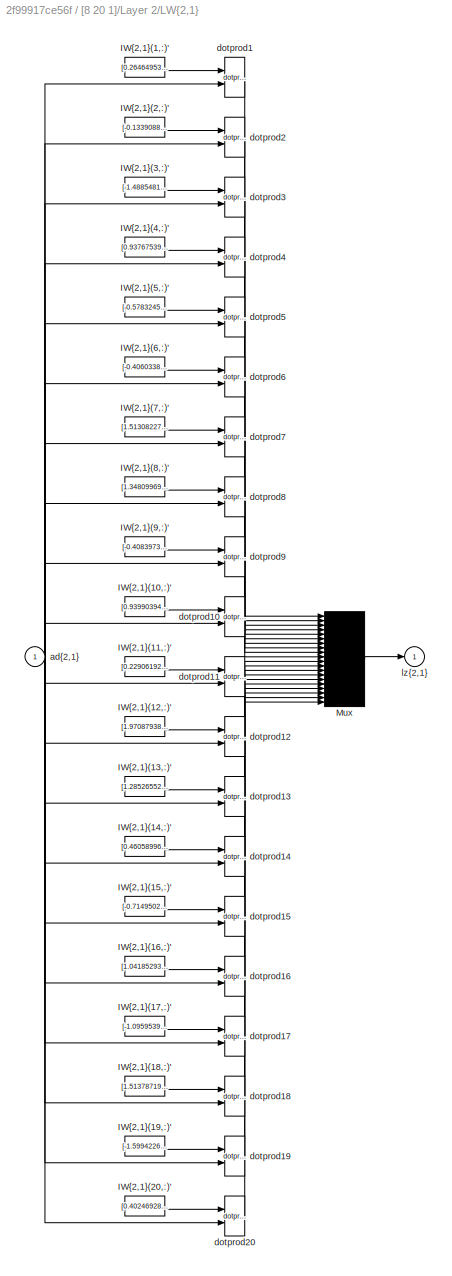
BLOCK [SubSystem] [8 20 1]/Layer 2/LW{2,1}
  Ports = [1, 1]
  RequestExecContextInheritance = off
  Variant = off
BLOCK [Constant] [8 20 1]/Layer 2/LW{2,1}/IW{2,1}(1,:)'
  Value = [0.2646495351727538025699004720081575214862823486328125;0.46395683451520530748979354029870592057704925537109375;-1.3951667865499712828381007057032547891139984130859375;-0.161246490443409606907465558833791874349117279052734375;-0.387459731298843090829819857390248216688632965087890625;0.512911699447260449602481457986868917942047119140625;0.343935673710822620297022922386531718075275421142578125;0.908...<+51ch>
BLOCK [Constant] [8 20 1]/Layer 2/LW{2,1}/IW{2,1}(10,:)'
  Value = [0.939903943540741249051961858640424907207489013671875;-1.226551040856460161876384518109261989593505859375;3.391404685441611110974235998583026230335235595703125;-0.10164513405941437429458318320030230097472667694091796875;-2.43955173140616299320981852361001074314117431640625;2.091729706679896327869982997071929275989532470703125;-0.303755495919698914608630957445711828768253326416015625;0.85876238908...<+42ch>
BLOCK [Constant] [8 20 1]/Layer 2/LW{2,1}/IW{2,1}(11,:)'
  Value = [0.2290619204222463511921858980713295750319957733154296875;-0.86471871076558237678710838736151345074176788330078125;0.2401960214421398898121395859561744146049022674560546875;0.27588495531584644737677081138826906681060791015625;-0.048155668846923023462824886564703774638473987579345703125;-0.611655905666821819721690189908258616924285888671875;0.97355542804286721025874840051983483135700225830078125;1...<+51ch>
BLOCK [Constant] [8 20 1]/Layer 2/LW{2,1}/IW{2,1}(12,:)'
  Value = [1.9708793821529739798137370598851703107357025146484375;-1.599844954579225042579082582960836589336395263671875;1.18407765112281371244762340211309492588043212890625;1.9953975906104641779847952420823276042938232421875;2.119906886055276107327927093137986958026885986328125;2.46970992458477400788297018152661621570587158203125;0.5092967156648791071660298257484100759029388427734375;1.77242570488485151614...<+32ch>
BLOCK [Constant] [8 20 1]/Layer 2/LW{2,1}/IW{2,1}(13,:)'
  Value = [1.28526552235918956057503237389028072357177734375;-1.42613269411408349895964420284144580364227294921875;0.21015596641978628866809231112711131572723388671875;1.421060891238463685937176705920137465000152587890625;-0.440997174373588374240995335640036500990390777587890625;1.7300688367991059468664616360911168158054351806640625;1.58275181108038776045532358693890273571014404296875;0.24585060450977358481...<+34ch>
BLOCK [Constant] [8 20 1]/Layer 2/LW{2,1}/IW{2,1}(14,:)'
  Value = [0.46058996112619376983587926588370464742183685302734375;0.81838695778153691673395542238722555339336395263671875;-1.0095584132317174663739933748729526996612548828125;-1.2359044431980727996034374882583506405353546142578125;-0.371652125868396243646429866203106939792633056640625;0.5077319548542649219058375820168294012546539306640625;-0.78845461330712074410342893315828405320644378662109375;-0.33427071...<+46ch>
BLOCK [Constant] [8 20 1]/Layer 2/LW{2,1}/IW{2,1}(15,:)'
  Value = [-0.71495023849827299411430203690542839467525482177734375;1.245238509229257051202921502408571541309356689453125;0.357247824987681317221444032838917337357997894287109375;-1.210982811556591709489794084220193326473236083984375;-1.5488835385352432982841719422140158712863922119140625;-1.1241603136636755255750586002250202000141143798828125;-0.2154814183241111624766972454381175339221954345703125;0.792983...<+46ch>
BLOCK [Constant] [8 20 1]/Layer 2/LW{2,1}/IW{2,1}(16,:)'
  Value = [1.0418529315188482797793767531402409076690673828125;1.605339774115328577153150035883300006389617919921875;-0.82001695516080952419457616997533477842807769775390625;0.298593853226707783843352217445499263703823089599609375;-0.11013814878555357179568119363466394133865833282470703125;-1.0500002936167820433155384307610802352428436279296875;-0.1519577175211494213247220841367379762232303619384765625;1.07...<+51ch>
BLOCK [Constant] [8 20 1]/Layer 2/LW{2,1}/IW{2,1}(17,:)'
  Value = [-1.09595398681952094221969673526473343372344970703125;0.71339211642114330746977657327079214155673980712890625;-2.771346451373494002012876080698333680629730224609375;1.6931496223835580394734279252588748931884765625;0.52443872253743872846598605974577367305755615234375;1.072224460618747432505415417836047708988189697265625;-0.87123137044401632866907903007813729345798492431640625;0.6881394772483864219...<+34ch>
BLOCK [Constant] [8 20 1]/Layer 2/LW{2,1}/IW{2,1}(18,:)'
  Value = [1.5137871968808358502656119526363909244537353515625;-0.2220646702318567478062760756074567325413227081298828125;-0.82940269065918015289895492969662882387638092041015625;0.58633356984038031978201388483284972608089447021484375;-0.7520508798304252895405852541443891823291778564453125;-0.4627607520926722006748832427547313272953033447265625;0.2156335085866831757783756984281353652477264404296875;-0.83936...<+49ch>
BLOCK [Constant] [8 20 1]/Layer 2/LW{2,1}/IW{2,1}(19,:)'
  Value = [-1.5994226591263096537431920296512544155120849609375;-0.1100553639927017990363111721308086998760700225830078125;-1.2589262992694820741945704867248423397541046142578125;0.2035242621313574640229404622004949487745761871337890625;-0.63959410837432617569220383302308619022369384765625;1.351221891088357107690853808890096843242645263671875;0.058750799133612023605888197153035434894263744354248046875;-0.94...<+50ch>
BLOCK [Constant] [8 20 1]/Layer 2/LW{2,1}/IW{2,1}(2,:)'
  Value = [-0.1339088465132477756558415649124071933329105377197265625;-0.94948158998087972548773905145935714244842529296875;-0.4124830976225914991317722524399869143962860107421875;0.51409916813368727872557428781874477863311767578125;-0.034227516983841688169576400468940846621990203857421875;-1.05922869933820695820259061292745172977447509765625;-0.623511537574911844927783022285439074039459228515625;0.97499882...<+45ch>
BLOCK [Constant] [8 20 1]/Layer 2/LW{2,1}/IW{2,1}(20,:)'
  Value = [0.402469284863513687700020682314061559736728668212890625;-0.9365244283458256102647965235519222915172576904296875;0.57615532603872232630948246878688223659992218017578125;0.23176172406391282176940649151219986379146575927734375;-1.748018575175275035604727236204780638217926025390625;0.298656691195457957288539319051778875291347503662109375;0.60925163299236262393065999276586808264255523681640625;1.2244...<+49ch>
BLOCK [Constant] [8 20 1]/Layer 2/LW{2,1}/IW{2,1}(3,:)'
  Value = [-1.4885481432069209706270385140669532120227813720703125;0.3577012579049856366708581845159642398357391357421875;1.077252459936032469300926095456816256046295166015625;0.07602324214998833207257433741688146255910396575927734375;-0.95558253076299137784843651388655416667461395263671875;1.06943574595022017348355802823789417743682861328125;-1.3144592574032818443896530880010686814785003662109375;1.4458508...<+46ch>
BLOCK [Constant] [8 20 1]/Layer 2/LW{2,1}/IW{2,1}(4,:)'
  Value = [0.9376753943421676229519334810902364552021026611328125;0.30888231337920124541795985351200215518474578857421875;1.8388993694835880088334079118794761598110198974609375;-1.175768450081088989378486076020635664463043212890625;-1.068140758517745592115488761919550597667694091796875;0.67263145766370102673903375034569762647151947021484375;-0.299553269513960440662003748002462089061737060546875;-0.478608658...<+46ch>
BLOCK [Constant] [8 20 1]/Layer 2/LW{2,1}/IW{2,1}(5,:)'
  Value = [-0.5783245332269848493211839013383723795413970947265625;-0.5470464024381043177669425858766771852970123291015625;-0.265083519672346945572627419096534140408039093017578125;0.44330843578590839459963035551481880247592926025390625;1.2896334108922660188767395084141753613948822021484375;-0.99946875574118176910332067564013414084911346435546875;0.72973878842195982752372174218180589377880096435546875;-0.71...<+51ch>
BLOCK [Constant] [8 20 1]/Layer 2/LW{2,1}/IW{2,1}(6,:)'
  Value = [-0.406033886359873641413997802374069578945636749267578125;0.1634436137740476191471117317632888443768024444580078125;-0.1709611834890565618128022151722689159214496612548828125;-0.6115080919894657629498624373809434473514556884765625;-1.012977719820469690858999456395395100116729736328125;-0.352929983497450194818156887777149677276611328125;1.46495831082157312863500919775106012821197509765625;0.820774...<+48ch>
BLOCK [Constant] [8 20 1]/Layer 2/LW{2,1}/IW{2,1}(7,:)'
  Value = [1.5130822747367551617259096019552089273929595947265625;-0.559043008906502603139188067871145904064178466796875;0.49108923997090503377194181666709482669830322265625;2.2964759227547677511438450892455875873565673828125;0.5125783857969261614329070653184317052364349365234375;0.2277959678775545171447447501122951507568359375;0.37899663649985237956485661925398744642734527587890625;-0.062094847131610543533...<+37ch>
BLOCK [Constant] [8 20 1]/Layer 2/LW{2,1}/IW{2,1}(8,:)'
  Value = [1.3480996990439166882680410708417184650897979736328125;-0.4555068939339219635797917362651787698268890380859375;-0.400857127781465261140425582198076881468296051025390625;1.282455581545051348513197808642871677875518798828125;1.509918202774643614105798405944369733333587646484375;-1.628166543721170089753513821051456034183502197265625;0.449612244829021345804420661806943826377391815185546875;-1.1773126...<+46ch>
BLOCK [Constant] [8 20 1]/Layer 2/LW{2,1}/IW{2,1}(9,:)'
  Value = [-0.408397321106985178307269279684987850487232208251953125;0.2130460677532161339886584983105421997606754302978515625;1.043612183160574691243027700693346560001373291015625;-0.25979448630814061527161129561136476695537567138671875;-1.507010355105860899271874586702324450016021728515625;0.5700656636114602715537102994858287274837493896484375;-0.9600836696499224220957557918154634535312652587890625;-0.743...<+50ch>
BLOCK [Mux] [8 20 1]/Layer 2/LW{2,1}/Mux
  Inputs = 20
  Ports = [20, 1]
BLOCK [Inport] [8 20 1]/Layer 2/LW{2,1}/ad{2,1}
  IconDisplay = Port number
  PortDimensions = 8
BLOCK [Reference] [8 20 1]/Layer 2/LW{2,1}/dotprod1  REF=neural/Weight Functions/dotprod
  Ports = [2, 1]
  SourceBlock = neural/Weight Functions/dotprod
  SourceProductBaseCode = NN
  SourceProductName = Neural Network Toolbox
  SourceType = DOTPROD
BLOCK [Reference] [8 20 1]/Layer 2/LW{2,1}/dotprod10  REF=neural/Weight Functions/dotprod
  Ports = [2, 1]
  SourceBlock = neural/Weight Functions/dotprod
  SourceProductBaseCode = NN
  SourceProductName = Neural Network Toolbox
  SourceType = DOTPROD
BLOCK [Reference] [8 20 1]/Layer 2/LW{2,1}/dotprod11  REF=neural/Weight Functions/dotprod
  Ports = [2, 1]
  SourceBlock = neural/Weight Functions/dotprod
  SourceProductBaseCode = NN
  SourceProductName = Neural Network Toolbox
  SourceType = DOTPROD
BLOCK [Reference] [8 20 1]/Layer 2/LW{2,1}/dotprod12  REF=neural/Weight Functions/dotprod
  Ports = [2, 1]
  SourceBlock = neural/Weight Functions/dotprod
  SourceProductBaseCode = NN
  SourceProductName = Neural Network Toolbox
  SourceType = DOTPROD
BLOCK [Reference] [8 20 1]/Layer 2/LW{2,1}/dotprod13  REF=neural/Weight Functions/dotprod
  Ports = [2, 1]
  SourceBlock = neural/Weight Functions/dotprod
  SourceProductBaseCode = NN
  SourceProductName = Neural Network Toolbox
  SourceType = DOTPROD
BLOCK [Reference] [8 20 1]/Layer 2/LW{2,1}/dotprod14  REF=neural/Weight Functions/dotprod
  Ports = [2, 1]
  SourceBlock = neural/Weight Functions/dotprod
  SourceProductBaseCode = NN
  SourceProductName = Neural Network Toolbox
  SourceType = DOTPROD
BLOCK [Reference] [8 20 1]/Layer 2/LW{2,1}/dotprod15  REF=neural/Weight Functions/dotprod
  Ports = [2, 1]
  SourceBlock = neural/Weight Functions/dotprod
  SourceProductBaseCode = NN
  SourceProductName = Neural Network Toolbox
  SourceType = DOTPROD
BLOCK [Reference] [8 20 1]/Layer 2/LW{2,1}/dotprod16  REF=neural/Weight Functions/dotprod
  Ports = [2, 1]
  SourceBlock = neural/Weight Functions/dotprod
  SourceProductBaseCode = NN
  SourceProductName = Neural Network Toolbox
  SourceType = DOTPROD
BLOCK [Reference] [8 20 1]/Layer 2/LW{2,1}/dotprod17  REF=neural/Weight Functions/dotprod
  Ports = [2, 1]
  SourceBlock = neural/Weight Functions/dotprod
  SourceProductBaseCode = NN
  SourceProductName = Neural Network Toolbox
  SourceType = DOTPROD
BLOCK [Reference] [8 20 1]/Layer 2/LW{2,1}/dotprod18  REF=neural/Weight Functions/dotprod
  Ports = [2, 1]
  SourceBlock = neural/Weight Functions/dotprod
  SourceProductBaseCode = NN
  SourceProductName = Neural Network Toolbox
  SourceType = DOTPROD
BLOCK [Reference] [8 20 1]/Layer 2/LW{2,1}/dotprod19  REF=neural/Weight Functions/dotprod
  Ports = [2, 1]
  SourceBlock = neural/Weight Functions/dotprod
  SourceProductBaseCode = NN
  SourceProductName = Neural Network Toolbox
  SourceType = DOTPROD
BLOCK [Reference] [8 20 1]/Layer 2/LW{2,1}/dotprod2  REF=neural/Weight Functions/dotprod
  Ports = [2, 1]
  SourceBlock = neural/Weight Functions/dotprod
  SourceProductBaseCode = NN
  SourceProductName = Neural Network Toolbox
  SourceType = DOTPROD
BLOCK [Reference] [8 20 1]/Layer 2/LW{2,1}/dotprod20  REF=neural/Weight Functions/dotprod
  Ports = [2, 1]
  SourceBlock = neural/Weight Functions/dotprod
  SourceProductBaseCode = NN
  SourceProductName = Neural Network Toolbox
  SourceType = DOTPROD
BLOCK [Reference] [8 20 1]/Layer 2/LW{2,1}/dotprod3  REF=neural/Weight Functions/dotprod
  Ports = [2, 1]
  SourceBlock = neural/Weight Functions/dotprod
  SourceProductBaseCode = NN
  SourceProductName = Neural Network Toolbox
  SourceType = DOTPROD
BLOCK [Reference] [8 20 1]/Layer 2/LW{2,1}/dotprod4  REF=neural/Weight Functions/dotprod
  Ports = [2, 1]
  SourceBlock = neural/Weight Functions/dotprod
  SourceProductBaseCode = NN
  SourceProductName = Neural Network Toolbox
  SourceType = DOTPROD
BLOCK [Reference] [8 20 1]/Layer 2/LW{2,1}/dotprod5  REF=neural/Weight Functions/dotprod
  Ports = [2, 1]
  SourceBlock = neural/Weight Functions/dotprod
  SourceProductBaseCode = NN
  SourceProductName = Neural Network Toolbox
  SourceType = DOTPROD
BLOCK [Reference] [8 20 1]/Layer 2/LW{2,1}/dotprod6  REF=neural/Weight Functions/dotprod
  Ports = [2, 1]
  SourceBlock = neural/Weight Functions/dotprod
  SourceProductBaseCode = NN
  SourceProductName = Neural Network Toolbox
  SourceType = DOTPROD
BLOCK [Reference] [8 20 1]/Layer 2/LW{2,1}/dotprod7  REF=neural/Weight Functions/dotprod
  Ports = [2, 1]
  SourceBlock = neural/Weight Functions/dotprod
  SourceProductBaseCode = NN
  SourceProductName = Neural Network Toolbox
  SourceType = DOTPROD
BLOCK [Reference] [8 20 1]/Layer 2/LW{2,1}/dotprod8  REF=neural/Weight Functions/dotprod
  Ports = [2, 1]
  SourceBlock = neural/Weight Functions/dotprod
  SourceProductBaseCode = NN
  SourceProductName = Neural Network Toolbox
  SourceType = DOTPROD
BLOCK [Reference] [8 20 1]/Layer 2/LW{2,1}/dotprod9  REF=neural/Weight Functions/dotprod
  Ports = [2, 1]
  SourceBlock = neural/Weight Functions/dotprod
  SourceProductBaseCode = NN
  SourceProductName = Neural Network Toolbox
  SourceType = DOTPROD
BLOCK [Outport] [8 20 1]/Layer 2/LW{2,1}/lz{2,1}
  IconDisplay = Port number
BLOCK [Inport] [8 20 1]/Layer 2/a{1} 
  IconDisplay = Port number
  PortDimensions = 8
BLOCK [Outport] [8 20 1]/Layer 2/a{2}
  IconDisplay = Port number
  InitialOutput = [0;0;0;0;0;0;0;0;0;0;0;0;0;0;0;0;0;0;0;0]
BLOCK [Constant] [8 20 1]/Layer 2/b{2}
  Value = [-2.210161094143039850479226515744812786579132080078125;-2.13034342155452716127683743252418935298919677734375;1.481272614120832553652462593163363635540008544921875;-0.65074880109058386157272479977109469473361968994140625;1.8279108472837790611009722852031700313091278076171875;0.94116293870698708445843294612132012844085693359375;-0.61461514415945206479818807565607130527496337890625;0.286241077235175...<+715ch>
BLOCK [Sum] [8 20 1]/Layer 2/netsum
  Inputs = 2
  Ports = [2, 1]
BLOCK [Reference] [8 20 1]/Layer 2/tansig  REF=neural/Transfer Functions/tansig
  Ports = [1, 1]
  SourceBlock = neural/Transfer Functions/tansig
  SourceProductBaseCode = NN
  SourceProductName = Neural Network Toolbox
  SourceType = TANSIG
BLOCK [SubSystem] [8 20 1]/Layer 3
  Ports = [1, 1]
  RequestExecContextInheritance = off
  Variant = off
BLOCK [SubSystem] [8 20 1]/Layer 3/Delays 1
  Ports = [1, 1]
  RequestExecContextInheritance = off
  Variant = off
BLOCK [Mux] [8 20 1]/Layer 3/Delays 1/mux
  Inputs = 1
  Ports = [1, 1]
BLOCK [Outport] [8 20 1]/Layer 3/Delays 1/pd{3,2}
  IconDisplay = Port number
BLOCK [Inport] [8 20 1]/Layer 3/Delays 1/p{3}
  IconDisplay = Port number
  PortDimensions = 20
BLOCK [SubSystem] [8 20 1]/Layer 3/LW{3,2}
  Ports = [1, 1]
  RequestExecContextInheritance = off
  Variant = off
BLOCK [Constant] [8 20 1]/Layer 3/LW{3,2}/IW{3,2}(1,:)'
  Value = [-0.41052137537914579201725473467377014458179473876953125;0.41349480890353096373956987008568830788135528564453125;-0.60835333230065968823652156061143614351749420166015625;2.23475176617202908602166644413955509662628173828125;-1.7552046554744056283681175045785494148731231689453125;0.72962899970259254001092585895094089210033416748046875;-1.377566810995406232365212417789734899997711181640625;-1.724259...<+695ch>
BLOCK [Mux] [8 20 1]/Layer 3/LW{3,2}/Mux
  Inputs = 1
  Ports = [1, 1]
BLOCK [Inport] [8 20 1]/Layer 3/LW{3,2}/ad{3,2}
  IconDisplay = Port number
  PortDimensions = 20
BLOCK [Reference] [8 20 1]/Layer 3/LW{3,2}/dotprod1  REF=neural/Weight Functions/dotprod
  Ports = [2, 1]
  SourceBlock = neural/Weight Functions/dotprod
  SourceProductBaseCode = NN
  SourceProductName = Neural Network Toolbox
  SourceType = DOTPROD
BLOCK [Outport] [8 20 1]/Layer 3/LW{3,2}/lz{3,2}
  IconDisplay = Port number
BLOCK [Inport] [8 20 1]/Layer 3/a{2} 
  IconDisplay = Port number
  PortDimensions = 20
BLOCK [Outport] [8 20 1]/Layer 3/a{3}
  IconDisplay = Port number
  InitialOutput = 0
BLOCK [Constant] [8 20 1]/Layer 3/b{3}
  Value = 0.355127313279532563772278308533714152872562408447265625
BLOCK [Sum] [8 20 1]/Layer 3/netsum
  Inputs = 2
  Ports = [2, 1]
BLOCK [Reference] [8 20 1]/Layer 3/purelin  REF=neural/Transfer Functions/purelin
  Ports = [1, 1]
  SourceBlock = neural/Transfer Functions/purelin
  SourceProductBaseCode = NN
  SourceProductName = Neural Network Toolbox
  SourceType = PURELIN
BLOCK [Outport] [8 20 1]/Output
  IconDisplay = Port number
  InitialOutput = 0
BLOCK [SubSystem] [8 20 1]/Process Input 1
  Ports = [1, 1]
  RequestExecContextInheritance = off
  Variant = off
BLOCK [Outport] [8 20 1]/Process Input 1/p
  IconDisplay = Port number
  PortDimensions = 6
BLOCK [Inport] [8 20 1]/Process Input 1/x
  IconDisplay = Port number
  PortDimensions = 6
BLOCK [SubSystem] [8 20 1]/Process Output 1
  Ports = [1, 1]
  RequestExecContextInheritance = off
  Variant = off
BLOCK [Inport] [8 20 1]/Process Output 1/a
  IconDisplay = Port number
  PortDimensions = 1
BLOCK [Outport] [8 20 1]/Process Output 1/y
  IconDisplay = Port number
  PortDimensions = 1
BLOCK [Goto] [8 20 1]/a{1}
  GotoTag = feedback1
BLOCK [Goto] [8 20 1]/a{2}
  GotoTag = feedback2
BLOCK [SubSystem] model dwumasowy 
  Ports = [2, 3]
  RequestExecContextInheritance = off
  Variant = off
BLOCK [Sum] model dwumasowy /Add
  InputSameDT = off
  Inputs = +-
  OutDataTypeStr = Inherit: Inherit via internal rule
  Ports = [2, 1]
  SaturateOnIntegerOverflow = off
BLOCK [Sum] model dwumasowy /Add1
  InputSameDT = off
  Inputs = +-
  OutDataTypeStr = Inherit: Inherit via internal rule
  Ports = [2, 1]
  SaturateOnIntegerOverflow = off
BLOCK [Sum] model dwumasowy /Add2
  InputSameDT = off
  Inputs = +-
  OutDataTypeStr = Inherit: Inherit via internal rule
  Ports = [2, 1]
  SaturateOnIntegerOverflow = off
BLOCK [Gain] model dwumasowy /Gain1
  Gain = 1/T1
  OutDataTypeStr = Inherit: Inherit via internal rule
  ParamDataTypeStr = Inherit: Inherit via internal rule
  SaturateOnIntegerOverflow = off
BLOCK [Gain] model dwumasowy /Gain2
  Gain = 1/Tc
  OutDataTypeStr = Inherit: Inherit via internal rule
  ParamDataTypeStr = Inherit: Inherit via internal rule
  SaturateOnIntegerOverflow = off
BLOCK [Gain] model dwumasowy /Gain4
  Gain = 1/T2
  OutDataTypeStr = Inherit: Inherit via internal rule
  ParamDataTypeStr = Inherit: Inherit via internal rule
  SaturateOnIntegerOverflow = off
BLOCK [Integrator] model dwumasowy /Integrator
  Ports = [1, 1]
BLOCK [Integrator] model dwumasowy /Integrator1
  Ports = [1, 1]
BLOCK [Integrator] model dwumasowy /Integrator2
  Ports = [1, 1]
BLOCK [Outport] model dwumasowy /mc
  IconDisplay = Port number
  Port = 3
BLOCK [Inport] model dwumasowy /me
  IconDisplay = Port number
BLOCK [Inport] model dwumasowy /mo
  IconDisplay = Port number
  Port = 2
BLOCK [Outport] model dwumasowy /w1
  IconDisplay = Port number
BLOCK [Outport] model dwumasowy /w2
  IconDisplay = Port number
  Port = 2
BLOCK [SubSystem] ze sprzężeniem normalnym [5 6 8 1]
  Ports = [1, 1]
  RequestExecContextInheritance = off
  Variant = off
BLOCK [From] ze sprzężeniem normalnym [5 6 8 1]/ a{1} 
  GotoTag = feedback1
BLOCK [From] ze sprzężeniem normalnym [5 6 8 1]/ a{2} 
  GotoTag = feedback2
BLOCK [From] ze sprzężeniem normalnym [5 6 8 1]/ a{3} 
  GotoTag = feedback3
BLOCK [Inport] ze sprzężeniem normalnym [5 6 8 1]/Input
  IconDisplay = Port number
  PortDimensions = 6
BLOCK [SubSystem] ze sprzężeniem normalnym [5 6 8 1]/Layer 1
  Ports = [1, 1]
  RequestExecContextInheritance = off
  Variant = off
BLOCK [SubSystem] ze sprzężeniem normalnym [5 6 8 1]/Layer 1/Delays 1
  Ports = [1, 1]
  RequestExecContextInheritance = off
  Variant = off
BLOCK [Mux] ze sprzężeniem normalnym [5 6 8 1]/Layer 1/Delays 1/mux
  Inputs = 1
  Ports = [1, 1]
BLOCK [Outport] ze sprzężeniem normalnym [5 6 8 1]/Layer 1/Delays 1/pd{1,1}
  IconDisplay = Port number
BLOCK [Inport] ze sprzężeniem normalnym [5 6 8 1]/Layer 1/Delays 1/p{1}
  IconDisplay = Port number
  PortDimensions = 6
BLOCK [SubSystem] ze sprzężeniem normalnym [5 6 8 1]/Layer 1/IW{1,1}
  Ports = [1, 1]
  RequestExecContextInheritance = off
  Variant = off
BLOCK [Constant] ze sprzężeniem normalnym [5 6 8 1]/Layer 1/IW{1,1}/IW{1,1}(1,:)'
  Value = [0.2321043620240020588507690035839914344251155853271484375;-0.0802182763223352190973258757367148064076900482177734375;0.260466507752407483433643164971726946532726287841796875;2.03488615945056583456107546226121485233306884765625;-0.109851726156560636216141801924095489084720611572265625;-1.9536963262245594652455338291474618017673492431640625]
BLOCK [Constant] ze sprzężeniem normalnym [5 6 8 1]/Layer 1/IW{1,1}/IW{1,1}(2,:)'
  Value = [-0.60310007902505591292907638489850796759128570556640625;-0.3291764369959206959492803434841334819793701171875;-1.6182999797323194268727775124716572463512420654296875;-0.06465703797232145999540620096013299189507961273193359375;0.2080569897733584860954891837536706589162349700927734375;0.01360608670681854627526607970366967492736876010894775390625]
BLOCK [Constant] ze sprzężeniem normalnym [5 6 8 1]/Layer 1/IW{1,1}/IW{1,1}(3,:)'
  Value = [0.0480194671829415609121127772596082650125026702880859375;0.12517659290037552732854919668170623481273651123046875;0.130956560290423518200242369857733137905597686767578125;-1.5211724693021562160311077605001628398895263671875;2.73965597303884944579976945533417165279388427734375;-1.2361521073033774342775359400548040866851806640625]
BLOCK [Constant] ze sprzężeniem normalnym [5 6 8 1]/Layer 1/IW{1,1}/IW{1,1}(4,:)'
  Value = [0.1405537602457425927493517292532487772405147552490234375;0.00016238154893760304458595611354354559807688929140567779541015625;0.362107767751949527479382595629431307315826416015625;0.61464970382803307824559624350513331592082977294921875;-0.52980347820268425262923983609653078019618988037109375;-0.11773128734993054678170665283687412738800048828125]
BLOCK [Constant] ze sprzężeniem normalnym [5 6 8 1]/Layer 1/IW{1,1}/IW{1,1}(5,:)'
  Value = [0.06027340727288178767739879049258888699114322662353515625;0.0738979190495625548606994925648905336856842041015625;0.261388843972462481257679201007704250514507293701171875;-0.0110817816853002217014623198565459460951387882232666015625;0.08439016482388710105322360277568805031478404998779296875;-0.09852794113435477119100625031933304853737354278564453125]
BLOCK [Mux] ze sprzężeniem normalnym [5 6 8 1]/Layer 1/IW{1,1}/Mux
  Inputs = 5
  Ports = [5, 1]
BLOCK [Reference] ze sprzężeniem normalnym [5 6 8 1]/Layer 1/IW{1,1}/dotprod1  REF=neural/Weight Functions/dotprod
  Ports = [2, 1]
  SourceBlock = neural/Weight Functions/dotprod
  SourceProductBaseCode = NN
  SourceProductName = Neural Network Toolbox
  SourceType = DOTPROD
BLOCK [Reference] ze sprzężeniem normalnym [5 6 8 1]/Layer 1/IW{1,1}/dotprod2  REF=neural/Weight Functions/dotprod
  Ports = [2, 1]
  SourceBlock = neural/Weight Functions/dotprod
  SourceProductBaseCode = NN
  SourceProductName = Neural Network Toolbox
  SourceType = DOTPROD
BLOCK [Reference] ze sprzężeniem normalnym [5 6 8 1]/Layer 1/IW{1,1}/dotprod3  REF=neural/Weight Functions/dotprod
  Ports = [2, 1]
  SourceBlock = neural/Weight Functions/dotprod
  SourceProductBaseCode = NN
  SourceProductName = Neural Network Toolbox
  SourceType = DOTPROD
BLOCK [Reference] ze sprzężeniem normalnym [5 6 8 1]/Layer 1/IW{1,1}/dotprod4  REF=neural/Weight Functions/dotprod
  Ports = [2, 1]
  SourceBlock = neural/Weight Functions/dotprod
  SourceProductBaseCode = NN
  SourceProductName = Neural Network Toolbox
  SourceType = DOTPROD
BLOCK [Reference] ze sprzężeniem normalnym [5 6 8 1]/Layer 1/IW{1,1}/dotprod5  REF=neural/Weight Functions/dotprod
  Ports = [2, 1]
  SourceBlock = neural/Weight Functions/dotprod
  SourceProductBaseCode = NN
  SourceProductName = Neural Network Toolbox
  SourceType = DOTPROD
BLOCK [Outport] ze sprzężeniem normalnym [5 6 8 1]/Layer 1/IW{1,1}/iz{1,1}
  IconDisplay = Port number
BLOCK [Inport] ze sprzężeniem normalnym [5 6 8 1]/Layer 1/IW{1,1}/pd{1,1}
  IconDisplay = Port number
  PortDimensions = 6
BLOCK [Outport] ze sprzężeniem normalnym [5 6 8 1]/Layer 1/a{1}
  IconDisplay = Port number
  InitialOutput = [0;0;0;0;0]
BLOCK [Constant] ze sprzężeniem normalnym [5 6 8 1]/Layer 1/b{1}
  Value = [-0.75888210085256435633027649600990116596221923828125;-0.36339899264039809967385963318520225584506988525390625;-0.273840823061595128873335625030449591577053070068359375;-1.147353703890297449419222175492905080318450927734375;0.6689150160761270225151520207873545587062835693359375]
BLOCK [Sum] ze sprzężeniem normalnym [5 6 8 1]/Layer 1/netsum
  Inputs = 2
  Ports = [2, 1]
BLOCK [Inport] ze sprzężeniem normalnym [5 6 8 1]/Layer 1/p{1}
  IconDisplay = Port number
  PortDimensions = 6
BLOCK [Reference] ze sprzężeniem normalnym [5 6 8 1]/Layer 1/tansig  REF=neural/Transfer Functions/tansig
  Ports = [1, 1]
  SourceBlock = neural/Transfer Functions/tansig
  SourceProductBaseCode = NN
  SourceProductName = Neural Network Toolbox
  SourceType = TANSIG
BLOCK [SubSystem] ze sprzężeniem normalnym [5 6 8 1]/Layer 2
  Ports = [1, 1]
  RequestExecContextInheritance = off
  Variant = off
BLOCK [SubSystem] ze sprzężeniem normalnym [5 6 8 1]/Layer 2/Delays 1
  Ports = [1, 1]
  RequestExecContextInheritance = off
  Variant = off
BLOCK [Mux] ze sprzężeniem normalnym [5 6 8 1]/Layer 2/Delays 1/mux
  Inputs = 1
  Ports = [1, 1]
BLOCK [Outport] ze sprzężeniem normalnym [5 6 8 1]/Layer 2/Delays 1/pd{2,1}
  IconDisplay = Port number
BLOCK [Inport] ze sprzężeniem normalnym [5 6 8 1]/Layer 2/Delays 1/p{2}
  IconDisplay = Port number
  PortDimensions = 5
BLOCK [SubSystem] ze sprzężeniem normalnym [5 6 8 1]/Layer 2/LW{2,1}
  Ports = [1, 1]
  RequestExecContextInheritance = off
  Variant = off
BLOCK [Constant] ze sprzężeniem normalnym [5 6 8 1]/Layer 2/LW{2,1}/IW{2,1}(1,:)'
  Value = [0.60848119758048058169919158899574540555477142333984375;1.710221038531982262753672330291010439395904541015625;-0.3760894031026149608720743344747461378574371337890625;0.66587097124452565566343764658086001873016357421875;1.668100504274452333675071713514626026153564453125]
BLOCK [Constant] ze sprzężeniem normalnym [5 6 8 1]/Layer 2/LW{2,1}/IW{2,1}(2,:)'
  Value = [0.875023151430164514152920673950575292110443115234375;-1.277232707645076015268159608240239322185516357421875;0.0082970251165611665078447600762956426478922367095947265625;-1.110935501804422909088998494553379714488983154296875;1.0515736968940612161560466120135970413684844970703125]
BLOCK [Constant] ze sprzężeniem normalnym [5 6 8 1]/Layer 2/LW{2,1}/IW{2,1}(3,:)'
  Value = [1.891918286736503862499603201285935938358306884765625;-0.10722895446210589653901479323394596576690673828125;0.4131249583012068793408388955867849290370941162109375;-2.058138914108118111556677831686101853847503662109375;-1.0324001026348426091061583065311424434185028076171875]
BLOCK [Constant] ze sprzężeniem normalnym [5 6 8 1]/Layer 2/LW{2,1}/IW{2,1}(4,:)'
  Value = [-0.68702170719767108320041870683780871331691741943359375;0.722855231735481940091858632513321936130523681640625;-1.0512060577950241846423296010470949113368988037109375;-1.0878243338085289426686586011783219873905181884765625;-1.955483113845790210660879893111996352672576904296875]
BLOCK [Constant] ze sprzężeniem normalnym [5 6 8 1]/Layer 2/LW{2,1}/IW{2,1}(5,:)'
  Value = [-1.6028624648658433837766779106459580361843109130859375;0.481173973428722312473126976328785531222820281982421875;3.231537838059043377114676331984810531139373779296875;-0.224861046099449624069421815875102765858173370361328125;-0.148663555711145478621659776763408444821834564208984375]
BLOCK [Constant] ze sprzężeniem normalnym [5 6 8 1]/Layer 2/LW{2,1}/IW{2,1}(6,:)'
  Value = [1.9265568795402732149568691966123878955841064453125;1.4090792517725676535889078877517022192478179931640625;-0.69338164763254683808924028198816813528537750244140625;0.204003882443715423011809662057203240692615509033203125;-0.9812750446107163515563343025860376656055450439453125]
BLOCK [Mux] ze sprzężeniem normalnym [5 6 8 1]/Layer 2/LW{2,1}/Mux
  Inputs = 6
  Ports = [6, 1]
BLOCK [Inport] ze sprzężeniem normalnym [5 6 8 1]/Layer 2/LW{2,1}/ad{2,1}
  IconDisplay = Port number
  PortDimensions = 5
BLOCK [Reference] ze sprzężeniem normalnym [5 6 8 1]/Layer 2/LW{2,1}/dotprod1  REF=neural/Weight Functions/dotprod
  Ports = [2, 1]
  SourceBlock = neural/Weight Functions/dotprod
  SourceProductBaseCode = NN
  SourceProductName = Neural Network Toolbox
  SourceType = DOTPROD
BLOCK [Reference] ze sprzężeniem normalnym [5 6 8 1]/Layer 2/LW{2,1}/dotprod2  REF=neural/Weight Functions/dotprod
  Ports = [2, 1]
  SourceBlock = neural/Weight Functions/dotprod
  SourceProductBaseCode = NN
  SourceProductName = Neural Network Toolbox
  SourceType = DOTPROD
BLOCK [Reference] ze sprzężeniem normalnym [5 6 8 1]/Layer 2/LW{2,1}/dotprod3  REF=neural/Weight Functions/dotprod
  Ports = [2, 1]
  SourceBlock = neural/Weight Functions/dotprod
  SourceProductBaseCode = NN
  SourceProductName = Neural Network Toolbox
  SourceType = DOTPROD
BLOCK [Reference] ze sprzężeniem normalnym [5 6 8 1]/Layer 2/LW{2,1}/dotprod4  REF=neural/Weight Functions/dotprod
  Ports = [2, 1]
  SourceBlock = neural/Weight Functions/dotprod
  SourceProductBaseCode = NN
  SourceProductName = Neural Network Toolbox
  SourceType = DOTPROD
BLOCK [Reference] ze sprzężeniem normalnym [5 6 8 1]/Layer 2/LW{2,1}/dotprod5  REF=neural/Weight Functions/dotprod
  Ports = [2, 1]
  SourceBlock = neural/Weight Functions/dotprod
  SourceProductBaseCode = NN
  SourceProductName = Neural Network Toolbox
  SourceType = DOTPROD
BLOCK [Reference] ze sprzężeniem normalnym [5 6 8 1]/Layer 2/LW{2,1}/dotprod6  REF=neural/Weight Functions/dotprod
  Ports = [2, 1]
  SourceBlock = neural/Weight Functions/dotprod
  SourceProductBaseCode = NN
  SourceProductName = Neural Network Toolbox
  SourceType = DOTPROD
BLOCK [Outport] ze sprzężeniem normalnym [5 6 8 1]/Layer 2/LW{2,1}/lz{2,1}
  IconDisplay = Port number
BLOCK [Inport] ze sprzężeniem normalnym [5 6 8 1]/Layer 2/a{1} 
  IconDisplay = Port number
  PortDimensions = 5
BLOCK [Outport] ze sprzężeniem normalnym [5 6 8 1]/Layer 2/a{2}
  IconDisplay = Port number
  InitialOutput = [0;0;0;0;0;0]
BLOCK [Constant] ze sprzężeniem normalnym [5 6 8 1]/Layer 2/b{2}
  Value = [-1.23249626262967471035381095134653151035308837890625;-0.78979964227818300059880129992961883544921875;0.187562203727100917927117507133516483008861541748046875;0.5231986227427969371461813352652825415134429931640625;-0.013801558453412805793636408679958549328148365020751953125;1.34329853877954263907668064348399639129638671875]
BLOCK [Sum] ze sprzężeniem normalnym [5 6 8 1]/Layer 2/netsum
  Inputs = 2
  Ports = [2, 1]
BLOCK [Reference] ze sprzężeniem normalnym [5 6 8 1]/Layer 2/tansig  REF=neural/Transfer Functions/tansig
  Ports = [1, 1]
  SourceBlock = neural/Transfer Functions/tansig
  SourceProductBaseCode = NN
  SourceProductName = Neural Network Toolbox
  SourceType = TANSIG
BLOCK [SubSystem] ze sprzężeniem normalnym [5 6 8 1]/Layer 3
  Ports = [1, 1]
  RequestExecContextInheritance = off
  Variant = off
BLOCK [SubSystem] ze sprzężeniem normalnym [5 6 8 1]/Layer 3/Delays 1
  Ports = [1, 1]
  RequestExecContextInheritance = off
  Variant = off
BLOCK [Mux] ze sprzężeniem normalnym [5 6 8 1]/Layer 3/Delays 1/mux
  Inputs = 1
  Ports = [1, 1]
BLOCK [Outport] ze sprzężeniem normalnym [5 6 8 1]/Layer 3/Delays 1/pd{3,2}
  IconDisplay = Port number
BLOCK [Inport] ze sprzężeniem normalnym [5 6 8 1]/Layer 3/Delays 1/p{3}
  IconDisplay = Port number
  PortDimensions = 6
BLOCK [SubSystem] ze sprzężeniem normalnym [5 6 8 1]/Layer 3/LW{3,2}
  Ports = [1, 1]
  RequestExecContextInheritance = off
  Variant = off
BLOCK [Constant] ze sprzężeniem normalnym [5 6 8 1]/Layer 3/LW{3,2}/IW{3,2}(1,:)'
  Value = [1.1172370190791498512083990135579369962215423583984375;0.0496899091189465791362778190887183882296085357666015625;1.12804220777269659237163068610243499279022216796875;-0.6507186499905923682263164664618670940399169921875;0.6532702689635925263900162462959997355937957763671875;0.697116507739441004787295241840183734893798828125]
BLOCK [Constant] ze sprzężeniem normalnym [5 6 8 1]/Layer 3/LW{3,2}/IW{3,2}(2,:)'
  Value = [1.6064436075915444757100658534909598529338836669921875;0.32065732783760114710247535185771994292736053466796875;0.660967300146524383563928495277650654315948486328125;0.58028620286248744353230222259298898279666900634765625;-0.360052721384502394386117885005660355091094970703125;1.268283264834052292968635811121203005313873291015625]
BLOCK [Constant] ze sprzężeniem normalnym [5 6 8 1]/Layer 3/LW{3,2}/IW{3,2}(3,:)'
  Value = [-0.311834120825613847483026574991527013480663299560546875;0.37947290509543829539751413904014043509960174560546875;2.046037604038010382367929196334443986415863037109375;-0.50989140331367510672322396203526295721530914306640625;1.21676275735099892472135252319276332855224609375;0.2909072608967757656017738554510287940502166748046875]
BLOCK [Constant] ze sprzężeniem normalnym [5 6 8 1]/Layer 3/LW{3,2}/IW{3,2}(4,:)'
  Value = [1.1012753348324209046182886595488525927066802978515625;-1.0346573081351955192275227091158740222454071044921875;-0.06564352678004416186130498545026057399809360504150390625;-0.410011984298150944372451931485556997358798980712890625;1.1450232787248904031685015070252120494842529296875;0.22750640268422006595727680178242735564708709716796875]
BLOCK [Constant] ze sprzężeniem normalnym [5 6 8 1]/Layer 3/LW{3,2}/IW{3,2}(5,:)'
  Value = [1.2208330149343140647033578716218471527099609375;-0.365702687958930516831657087095663882791996002197265625;0.1611621040153969897090746599133126437664031982421875;1.632591880999727518286590566276572644710540771484375;0.126268846243985877197957279349793680012226104736328125;0.3689836146142482231624626365373842418193817138671875]
BLOCK [Constant] ze sprzężeniem normalnym [5 6 8 1]/Layer 3/LW{3,2}/IW{3,2}(6,:)'
  Value = [0.7389578621803292168834786934894509613513946533203125;1.05921207303405839894594464567489922046661376953125;1.3608528698132407175336311411228962242603302001953125;1.10410726259485070244181770249269902706146240234375;1.5373928637921989714953951988718472421169281005859375;0.01988478522654034408301271241725771687924861907958984375]
BLOCK [Constant] ze sprzężeniem normalnym [5 6 8 1]/Layer 3/LW{3,2}/IW{3,2}(7,:)'
  Value = [0.55561218904297426934846271251444704830646514892578125;0.4673384897440147067726456953096203505992889404296875;1.801130361009865676891195107600651681423187255859375;1.4339803344003871909961844721692614257335662841796875;-0.433710312613992787778016690936055965721607208251953125;0.74200026490269765933049939121701754629611968994140625]
BLOCK [Constant] ze sprzężeniem normalnym [5 6 8 1]/Layer 3/LW{3,2}/IW{3,2}(8,:)'
  Value = [1.905420473560234473353602879797108471393585205078125;-0.416875430295211846232206198692438192665576934814453125;0.73293809142458155037047617952339351177215576171875;-0.330120604618948931818778191882302053272724151611328125;-2.56652631252582796861361202900297939777374267578125;-1.2599539756006354895845333885517902672290802001953125]
BLOCK [Mux] ze sprzężeniem normalnym [5 6 8 1]/Layer 3/LW{3,2}/Mux
  Inputs = 8
  Ports = [8, 1]
BLOCK [Inport] ze sprzężeniem normalnym [5 6 8 1]/Layer 3/LW{3,2}/ad{3,2}
  IconDisplay = Port number
  PortDimensions = 6
BLOCK [Reference] ze sprzężeniem normalnym [5 6 8 1]/Layer 3/LW{3,2}/dotprod1  REF=neural/Weight Functions/dotprod
  Ports = [2, 1]
  SourceBlock = neural/Weight Functions/dotprod
  SourceProductBaseCode = NN
  SourceProductName = Neural Network Toolbox
  SourceType = DOTPROD
BLOCK [Reference] ze sprzężeniem normalnym [5 6 8 1]/Layer 3/LW{3,2}/dotprod2  REF=neural/Weight Functions/dotprod
  Ports = [2, 1]
  SourceBlock = neural/Weight Functions/dotprod
  SourceProductBaseCode = NN
  SourceProductName = Neural Network Toolbox
  SourceType = DOTPROD
BLOCK [Reference] ze sprzężeniem normalnym [5 6 8 1]/Layer 3/LW{3,2}/dotprod3  REF=neural/Weight Functions/dotprod
  Ports = [2, 1]
  SourceBlock = neural/Weight Functions/dotprod
  SourceProductBaseCode = NN
  SourceProductName = Neural Network Toolbox
  SourceType = DOTPROD
BLOCK [Reference] ze sprzężeniem normalnym [5 6 8 1]/Layer 3/LW{3,2}/dotprod4  REF=neural/Weight Functions/dotprod
  Ports = [2, 1]
  SourceBlock = neural/Weight Functions/dotprod
  SourceProductBaseCode = NN
  SourceProductName = Neural Network Toolbox
  SourceType = DOTPROD
BLOCK [Reference] ze sprzężeniem normalnym [5 6 8 1]/Layer 3/LW{3,2}/dotprod5  REF=neural/Weight Functions/dotprod
  Ports = [2, 1]
  SourceBlock = neural/Weight Functions/dotprod
  SourceProductBaseCode = NN
  SourceProductName = Neural Network Toolbox
  SourceType = DOTPROD
BLOCK [Reference] ze sprzężeniem normalnym [5 6 8 1]/Layer 3/LW{3,2}/dotprod6  REF=neural/Weight Functions/dotprod
  Ports = [2, 1]
  SourceBlock = neural/Weight Functions/dotprod
  SourceProductBaseCode = NN
  SourceProductName = Neural Network Toolbox
  SourceType = DOTPROD
BLOCK [Reference] ze sprzężeniem normalnym [5 6 8 1]/Layer 3/LW{3,2}/dotprod7  REF=neural/Weight Functions/dotprod
  Ports = [2, 1]
  SourceBlock = neural/Weight Functions/dotprod
  SourceProductBaseCode = NN
  SourceProductName = Neural Network Toolbox
  SourceType = DOTPROD
BLOCK [Reference] ze sprzężeniem normalnym [5 6 8 1]/Layer 3/LW{3,2}/dotprod8  REF=neural/Weight Functions/dotprod
  Ports = [2, 1]
  SourceBlock = neural/Weight Functions/dotprod
  SourceProductBaseCode = NN
  SourceProductName = Neural Network Toolbox
  SourceType = DOTPROD
BLOCK [Outport] ze sprzężeniem normalnym [5 6 8 1]/Layer 3/LW{3,2}/lz{3,2}
  IconDisplay = Port number
BLOCK [Inport] ze sprzężeniem normalnym [5 6 8 1]/Layer 3/a{2} 
  IconDisplay = Port number
  PortDimensions = 6
BLOCK [Outport] ze sprzężeniem normalnym [5 6 8 1]/Layer 3/a{3}
  IconDisplay = Port number
  InitialOutput = [0;0;0;0;0;0;0;0]
BLOCK [Constant] ze sprzężeniem normalnym [5 6 8 1]/Layer 3/b{3}
  Value = [-2.033426414598959564017377488198690116405487060546875;-1.4741352674955212620488964603282511234283447265625;-0.114305017944883624547713907304569147527217864990234375;-0.63173378552542935882030405991827137768268585205078125;0.41041604529959985203646510854014195501804351806640625;0.45472237825181205383984206491732038557529449462890625;1.8359116393887748852620234174537472426891326904296875;1.6557708...<+44ch>
BLOCK [Sum] ze sprzężeniem normalnym [5 6 8 1]/Layer 3/netsum
  Inputs = 2
  Ports = [2, 1]
BLOCK [Reference] ze sprzężeniem normalnym [5 6 8 1]/Layer 3/tansig  REF=neural/Transfer Functions/tansig
  Ports = [1, 1]
  SourceBlock = neural/Transfer Functions/tansig
  SourceProductBaseCode = NN
  SourceProductName = Neural Network Toolbox
  SourceType = TANSIG
BLOCK [SubSystem] ze sprzężeniem normalnym [5 6 8 1]/Layer 4
  Ports = [1, 1]
  RequestExecContextInheritance = off
  Variant = off
BLOCK [SubSystem] ze sprzężeniem normalnym [5 6 8 1]/Layer 4/Delays 1
  Ports = [1, 1]
  RequestExecContextInheritance = off
  Variant = off
BLOCK [Mux] ze sprzężeniem normalnym [5 6 8 1]/Layer 4/Delays 1/mux
  Inputs = 1
  Ports = [1, 1]
BLOCK [Outport] ze sprzężeniem normalnym [5 6 8 1]/Layer 4/Delays 1/pd{4,3}
  IconDisplay = Port number
BLOCK [Inport] ze sprzężeniem normalnym [5 6 8 1]/Layer 4/Delays 1/p{4}
  IconDisplay = Port number
  PortDimensions = 8
BLOCK [SubSystem] ze sprzężeniem normalnym [5 6 8 1]/Layer 4/LW{4,3}
  Ports = [1, 1]
  RequestExecContextInheritance = off
  Variant = off
BLOCK [Constant] ze sprzężeniem normalnym [5 6 8 1]/Layer 4/LW{4,3}/IW{4,3}(1,:)'
  Value = [-0.4469354809074703727134192376979626715183258056640625;1.205108587423828314655338544980622828006744384765625;3.2158855453269286073236798983998596668243408203125;0.31105366679691404119267872374621219933032989501953125;-1.1193268282691726245303698306088335812091827392578125;1.406188687651994673188937667873688042163848876953125;0.81981254396301006526215360281639732420444488525390625;-2.984639996132...<+40ch>
BLOCK [Mux] ze sprzężeniem normalnym [5 6 8 1]/Layer 4/LW{4,3}/Mux
  Inputs = 1
  Ports = [1, 1]
BLOCK [Inport] ze sprzężeniem normalnym [5 6 8 1]/Layer 4/LW{4,3}/ad{4,3}
  IconDisplay = Port number
  PortDimensions = 8
BLOCK [Reference] ze sprzężeniem normalnym [5 6 8 1]/Layer 4/LW{4,3}/dotprod1  REF=neural/Weight Functions/dotprod
  Ports = [2, 1]
  SourceBlock = neural/Weight Functions/dotprod
  SourceProductBaseCode = NN
  SourceProductName = Neural Network Toolbox
  SourceType = DOTPROD
BLOCK [Outport] ze sprzężeniem normalnym [5 6 8 1]/Layer 4/LW{4,3}/lz{4,3}
  IconDisplay = Port number
BLOCK [Inport] ze sprzężeniem normalnym [5 6 8 1]/Layer 4/a{3} 
  IconDisplay = Port number
  PortDimensions = 8
BLOCK [Outport] ze sprzężeniem normalnym [5 6 8 1]/Layer 4/a{4}
  IconDisplay = Port number
  InitialOutput = 0
BLOCK [Constant] ze sprzężeniem normalnym [5 6 8 1]/Layer 4/b{4}
  Value = -0.2957191047843059639177454300806857645511627197265625
BLOCK [Sum] ze sprzężeniem normalnym [5 6 8 1]/Layer 4/netsum
  Inputs = 2
  Ports = [2, 1]
BLOCK [Reference] ze sprzężeniem normalnym [5 6 8 1]/Layer 4/purelin  REF=neural/Transfer Functions/purelin
  Ports = [1, 1]
  SourceBlock = neural/Transfer Functions/purelin
  SourceProductBaseCode = NN
  SourceProductName = Neural Network Toolbox
  SourceType = PURELIN
BLOCK [Outport] ze sprzężeniem normalnym [5 6 8 1]/Output
  IconDisplay = Port number
  InitialOutput = 0
BLOCK [SubSystem] ze sprzężeniem normalnym [5 6 8 1]/Process Input 1
  Ports = [1, 1]
  RequestExecContextInheritance = off
  Variant = off
BLOCK [Outport] ze sprzężeniem normalnym [5 6 8 1]/Process Input 1/p
  IconDisplay = Port number
  PortDimensions = 6
BLOCK [Inport] ze sprzężeniem normalnym [5 6 8 1]/Process Input 1/x
  IconDisplay = Port number
  PortDimensions = 6
BLOCK [SubSystem] ze sprzężeniem normalnym [5 6 8 1]/Process Output 1
  Ports = [1, 1]
  RequestExecContextInheritance = off
  Variant = off
BLOCK [Inport] ze sprzężeniem normalnym [5 6 8 1]/Process Output 1/a
  IconDisplay = Port number
  PortDimensions = 1
BLOCK [Outport] ze sprzężeniem normalnym [5 6 8 1]/Process Output 1/y
  IconDisplay = Port number
  PortDimensions = 1
BLOCK [Goto] ze sprzężeniem normalnym [5 6 8 1]/a{1}
  GotoTag = feedback1
BLOCK [Goto] ze sprzężeniem normalnym [5 6 8 1]/a{2}
  GotoTag = feedback2
BLOCK [Goto] ze sprzężeniem normalnym [5 6 8 1]/a{3}
  GotoTag = feedback3
LINE 5 11 1 gites/ a{1} :1 -> 5 11 1 gites/Layer 2:1
LINE 5 11 1 gites/ a{2} :1 -> 5 11 1 gites/Layer 3:1
LINE 5 11 1 gites/Input:1 -> 5 11 1 gites/Process Input 1:1
LINE 5 11 1 gites/Layer 1/Delays 1/mux:1 -> 5 11 1 gites/Layer 1/Delays 1/pd{1,1}:1
LINE 5 11 1 gites/Layer 1/Delays 1/p{1}:1 -> 5 11 1 gites/Layer 1/Delays 1/mux:1
LINE 5 11 1 gites/Layer 1/Delays 1:1 -> 5 11 1 gites/Layer 1/IW{1,1}:1
LINE 5 11 1 gites/Layer 1/IW{1,1}/IW{1,1}(1,:)':1 -> 5 11 1 gites/Layer 1/IW{1,1}/dotprod1:1
LINE 5 11 1 gites/Layer 1/IW{1,1}/IW{1,1}(2,:)':1 -> 5 11 1 gites/Layer 1/IW{1,1}/dotprod2:1
LINE 5 11 1 gites/Layer 1/IW{1,1}/IW{1,1}(3,:)':1 -> 5 11 1 gites/Layer 1/IW{1,1}/dotprod3:1
LINE 5 11 1 gites/Layer 1/IW{1,1}/IW{1,1}(4,:)':1 -> 5 11 1 gites/Layer 1/IW{1,1}/dotprod4:1
LINE 5 11 1 gites/Layer 1/IW{1,1}/IW{1,1}(5,:)':1 -> 5 11 1 gites/Layer 1/IW{1,1}/dotprod5:1
LINE 5 11 1 gites/Layer 1/IW{1,1}/Mux:1 -> 5 11 1 gites/Layer 1/IW{1,1}/iz{1,1}:1
LINE 5 11 1 gites/Layer 1/IW{1,1}/dotprod1:1 -> 5 11 1 gites/Layer 1/IW{1,1}/Mux:1
LINE 5 11 1 gites/Layer 1/IW{1,1}/dotprod2:1 -> 5 11 1 gites/Layer 1/IW{1,1}/Mux:2
LINE 5 11 1 gites/Layer 1/IW{1,1}/dotprod3:1 -> 5 11 1 gites/Layer 1/IW{1,1}/Mux:3
LINE 5 11 1 gites/Layer 1/IW{1,1}/dotprod4:1 -> 5 11 1 gites/Layer 1/IW{1,1}/Mux:4
LINE 5 11 1 gites/Layer 1/IW{1,1}/dotprod5:1 -> 5 11 1 gites/Layer 1/IW{1,1}/Mux:5
NET 5 11 1 gites/Layer 1/IW{1,1}/pd{1,1}:1 -> 5 11 1 gites/Layer 1/IW{1,1}/dotprod1:2, 5 11 1 gites/Layer 1/IW{1,1}/dotprod2:2, 5 11 1 gites/Layer 1/IW{1,1}/dotprod3:2, 5 11 1 gites/Layer 1/IW{1,1}/dotprod4:2, 5 11 1 gites/Layer 1/IW{1,1}/dotprod5:2
LINE 5 11 1 gites/Layer 1/IW{1,1}:1 -> 5 11 1 gites/Layer 1/netsum:1
LINE 5 11 1 gites/Layer 1/b{1}:1 -> 5 11 1 gites/Layer 1/netsum:2
LINE 5 11 1 gites/Layer 1/netsum:1 -> 5 11 1 gites/Layer 1/tansig:1
LINE 5 11 1 gites/Layer 1/p{1}:1 -> 5 11 1 gites/Layer 1/Delays 1:1
LINE 5 11 1 gites/Layer 1/tansig:1 -> 5 11 1 gites/Layer 1/a{1}:1
LINE 5 11 1 gites/Layer 1:1 -> 5 11 1 gites/a{1}:1
LINE 5 11 1 gites/Layer 2/Delays 1/mux:1 -> 5 11 1 gites/Layer 2/Delays 1/pd{2,1}:1
LINE 5 11 1 gites/Layer 2/Delays 1/p{2}:1 -> 5 11 1 gites/Layer 2/Delays 1/mux:1
LINE 5 11 1 gites/Layer 2/Delays 1:1 -> 5 11 1 gites/Layer 2/LW{2,1}:1
LINE 5 11 1 gites/Layer 2/LW{2,1}/IW{2,1}(1,:)':1 -> 5 11 1 gites/Layer 2/LW{2,1}/dotprod1:1
LINE 5 11 1 gites/Layer 2/LW{2,1}/IW{2,1}(10,:)':1 -> 5 11 1 gites/Layer 2/LW{2,1}/dotprod10:1
LINE 5 11 1 gites/Layer 2/LW{2,1}/IW{2,1}(11,:)':1 -> 5 11 1 gites/Layer 2/LW{2,1}/dotprod11:1
LINE 5 11 1 gites/Layer 2/LW{2,1}/IW{2,1}(2,:)':1 -> 5 11 1 gites/Layer 2/LW{2,1}/dotprod2:1
LINE 5 11 1 gites/Layer 2/LW{2,1}/IW{2,1}(3,:)':1 -> 5 11 1 gites/Layer 2/LW{2,1}/dotprod3:1
LINE 5 11 1 gites/Layer 2/LW{2,1}/IW{2,1}(4,:)':1 -> 5 11 1 gites/Layer 2/LW{2,1}/dotprod4:1
LINE 5 11 1 gites/Layer 2/LW{2,1}/IW{2,1}(5,:)':1 -> 5 11 1 gites/Layer 2/LW{2,1}/dotprod5:1
LINE 5 11 1 gites/Layer 2/LW{2,1}/IW{2,1}(6,:)':1 -> 5 11 1 gites/Layer 2/LW{2,1}/dotprod6:1
LINE 5 11 1 gites/Layer 2/LW{2,1}/IW{2,1}(7,:)':1 -> 5 11 1 gites/Layer 2/LW{2,1}/dotprod7:1
LINE 5 11 1 gites/Layer 2/LW{2,1}/IW{2,1}(8,:)':1 -> 5 11 1 gites/Layer 2/LW{2,1}/dotprod8:1
LINE 5 11 1 gites/Layer 2/LW{2,1}/IW{2,1}(9,:)':1 -> 5 11 1 gites/Layer 2/LW{2,1}/dotprod9:1
LINE 5 11 1 gites/Layer 2/LW{2,1}/Mux:1 -> 5 11 1 gites/Layer 2/LW{2,1}/lz{2,1}:1
NET 5 11 1 gites/Layer 2/LW{2,1}/ad{2,1}:1 -> 5 11 1 gites/Layer 2/LW{2,1}/dotprod10:2, 5 11 1 gites/Layer 2/LW{2,1}/dotprod11:2, 5 11 1 gites/Layer 2/LW{2,1}/dotprod1:2, 5 11 1 gites/Layer 2/LW{2,1}/dotprod2:2, 5 11 1 gites/Layer 2/LW{2,1}/dotprod3:2, 5 11 1 gites/Layer 2/LW{2,1}/dotprod4:2, 5 11 1 gites/Layer 2/LW{2,1}/dotprod5:2, 5 11 1 gites/Layer 2/LW{2,1}/dotprod6:2, 5 11 1 gites/Layer 2/LW{2,1}/dotprod7:2, 5 11 1 gites/Layer 2/LW{2,1}/dotprod8:2, 5 11 1 gites/Layer 2/LW{2,1}/dotprod9:2
LINE 5 11 1 gites/Layer 2/LW{2,1}/dotprod10:1 -> 5 11 1 gites/Layer 2/LW{2,1}/Mux:10
LINE 5 11 1 gites/Layer 2/LW{2,1}/dotprod11:1 -> 5 11 1 gites/Layer 2/LW{2,1}/Mux:11
LINE 5 11 1 gites/Layer 2/LW{2,1}/dotprod1:1 -> 5 11 1 gites/Layer 2/LW{2,1}/Mux:1
LINE 5 11 1 gites/Layer 2/LW{2,1}/dotprod2:1 -> 5 11 1 gites/Layer 2/LW{2,1}/Mux:2
LINE 5 11 1 gites/Layer 2/LW{2,1}/dotprod3:1 -> 5 11 1 gites/Layer 2/LW{2,1}/Mux:3
LINE 5 11 1 gites/Layer 2/LW{2,1}/dotprod4:1 -> 5 11 1 gites/Layer 2/LW{2,1}/Mux:4
LINE 5 11 1 gites/Layer 2/LW{2,1}/dotprod5:1 -> 5 11 1 gites/Layer 2/LW{2,1}/Mux:5
LINE 5 11 1 gites/Layer 2/LW{2,1}/dotprod6:1 -> 5 11 1 gites/Layer 2/LW{2,1}/Mux:6
LINE 5 11 1 gites/Layer 2/LW{2,1}/dotprod7:1 -> 5 11 1 gites/Layer 2/LW{2,1}/Mux:7
LINE 5 11 1 gites/Layer 2/LW{2,1}/dotprod8:1 -> 5 11 1 gites/Layer 2/LW{2,1}/Mux:8
LINE 5 11 1 gites/Layer 2/LW{2,1}/dotprod9:1 -> 5 11 1 gites/Layer 2/LW{2,1}/Mux:9
LINE 5 11 1 gites/Layer 2/LW{2,1}:1 -> 5 11 1 gites/Layer 2/netsum:1
LINE 5 11 1 gites/Layer 2/a{1} :1 -> 5 11 1 gites/Layer 2/Delays 1:1
LINE 5 11 1 gites/Layer 2/b{2}:1 -> 5 11 1 gites/Layer 2/netsum:2
LINE 5 11 1 gites/Layer 2/netsum:1 -> 5 11 1 gites/Layer 2/tansig:1
LINE 5 11 1 gites/Layer 2/tansig:1 -> 5 11 1 gites/Layer 2/a{2}:1
LINE 5 11 1 gites/Layer 2:1 -> 5 11 1 gites/a{2}:1
LINE 5 11 1 gites/Layer 3/Delays 1/mux:1 -> 5 11 1 gites/Layer 3/Delays 1/pd{3,2}:1
LINE 5 11 1 gites/Layer 3/Delays 1/p{3}:1 -> 5 11 1 gites/Layer 3/Delays 1/mux:1
LINE 5 11 1 gites/Layer 3/Delays 1:1 -> 5 11 1 gites/Layer 3/LW{3,2}:1
LINE 5 11 1 gites/Layer 3/LW{3,2}/IW{3,2}(1,:)':1 -> 5 11 1 gites/Layer 3/LW{3,2}/dotprod1:1
LINE 5 11 1 gites/Layer 3/LW{3,2}/Mux:1 -> 5 11 1 gites/Layer 3/LW{3,2}/lz{3,2}:1
LINE 5 11 1 gites/Layer 3/LW{3,2}/ad{3,2}:1 -> 5 11 1 gites/Layer 3/LW{3,2}/dotprod1:2
LINE 5 11 1 gites/Layer 3/LW{3,2}/dotprod1:1 -> 5 11 1 gites/Layer 3/LW{3,2}/Mux:1
LINE 5 11 1 gites/Layer 3/LW{3,2}:1 -> 5 11 1 gites/Layer 3/netsum:1
LINE 5 11 1 gites/Layer 3/a{2} :1 -> 5 11 1 gites/Layer 3/Delays 1:1
LINE 5 11 1 gites/Layer 3/b{3}:1 -> 5 11 1 gites/Layer 3/netsum:2
LINE 5 11 1 gites/Layer 3/netsum:1 -> 5 11 1 gites/Layer 3/purelin:1
LINE 5 11 1 gites/Layer 3/purelin:1 -> 5 11 1 gites/Layer 3/a{3}:1
LINE 5 11 1 gites/Layer 3:1 -> 5 11 1 gites/Process Output 1:1
LINE 5 11 1 gites/Process Input 1/x:1 -> 5 11 1 gites/Process Input 1/p:1
LINE 5 11 1 gites/Process Input 1:1 -> 5 11 1 gites/Layer 1:1
LINE 5 11 1 gites/Process Output 1/a:1 -> 5 11 1 gites/Process Output 1/y:1
LINE 5 11 1 gites/Process Output 1:1 -> 5 11 1 gites/Output:1
LINE 5 11 1 z innej sieci/ a{1} :1 -> 5 11 1 z innej sieci/Layer 2:1
LINE 5 11 1 z innej sieci/ a{2} :1 -> 5 11 1 z innej sieci/Layer 3:1
LINE 5 11 1 z innej sieci/Input:1 -> 5 11 1 z innej sieci/Process Input 1:1
LINE 5 11 1 z innej sieci/Layer 1/Delays 1/mux:1 -> 5 11 1 z innej sieci/Layer 1/Delays 1/pd{1,1}:1
LINE 5 11 1 z innej sieci/Layer 1/Delays 1/p{1}:1 -> 5 11 1 z innej sieci/Layer 1/Delays 1/mux:1
LINE 5 11 1 z innej sieci/Layer 1/Delays 1:1 -> 5 11 1 z innej sieci/Layer 1/IW{1,1}:1
LINE 5 11 1 z innej sieci/Layer 1/IW{1,1}/IW{1,1}(1,:)':1 -> 5 11 1 z innej sieci/Layer 1/IW{1,1}/dotprod1:1
LINE 5 11 1 z innej sieci/Layer 1/IW{1,1}/IW{1,1}(2,:)':1 -> 5 11 1 z innej sieci/Layer 1/IW{1,1}/dotprod2:1
LINE 5 11 1 z innej sieci/Layer 1/IW{1,1}/IW{1,1}(3,:)':1 -> 5 11 1 z innej sieci/Layer 1/IW{1,1}/dotprod3:1
LINE 5 11 1 z innej sieci/Layer 1/IW{1,1}/IW{1,1}(4,:)':1 -> 5 11 1 z innej sieci/Layer 1/IW{1,1}/dotprod4:1
LINE 5 11 1 z innej sieci/Layer 1/IW{1,1}/IW{1,1}(5,:)':1 -> 5 11 1 z innej sieci/Layer 1/IW{1,1}/dotprod5:1
LINE 5 11 1 z innej sieci/Layer 1/IW{1,1}/Mux:1 -> 5 11 1 z innej sieci/Layer 1/IW{1,1}/iz{1,1}:1
LINE 5 11 1 z innej sieci/Layer 1/IW{1,1}/dotprod1:1 -> 5 11 1 z innej sieci/Layer 1/IW{1,1}/Mux:1
LINE 5 11 1 z innej sieci/Layer 1/IW{1,1}/dotprod2:1 -> 5 11 1 z innej sieci/Layer 1/IW{1,1}/Mux:2
LINE 5 11 1 z innej sieci/Layer 1/IW{1,1}/dotprod3:1 -> 5 11 1 z innej sieci/Layer 1/IW{1,1}/Mux:3
LINE 5 11 1 z innej sieci/Layer 1/IW{1,1}/dotprod4:1 -> 5 11 1 z innej sieci/Layer 1/IW{1,1}/Mux:4
LINE 5 11 1 z innej sieci/Layer 1/IW{1,1}/dotprod5:1 -> 5 11 1 z innej sieci/Layer 1/IW{1,1}/Mux:5
NET 5 11 1 z innej sieci/Layer 1/IW{1,1}/pd{1,1}:1 -> 5 11 1 z innej sieci/Layer 1/IW{1,1}/dotprod1:2, 5 11 1 z innej sieci/Layer 1/IW{1,1}/dotprod2:2, 5 11 1 z innej sieci/Layer 1/IW{1,1}/dotprod3:2, 5 11 1 z innej sieci/Layer 1/IW{1,1}/dotprod4:2, 5 11 1 z innej sieci/Layer 1/IW{1,1}/dotprod5:2
LINE 5 11 1 z innej sieci/Layer 1/IW{1,1}:1 -> 5 11 1 z innej sieci/Layer 1/netsum:1
LINE 5 11 1 z innej sieci/Layer 1/b{1}:1 -> 5 11 1 z innej sieci/Layer 1/netsum:2
LINE 5 11 1 z innej sieci/Layer 1/netsum:1 -> 5 11 1 z innej sieci/Layer 1/tansig:1
LINE 5 11 1 z innej sieci/Layer 1/p{1}:1 -> 5 11 1 z innej sieci/Layer 1/Delays 1:1
LINE 5 11 1 z innej sieci/Layer 1/tansig:1 -> 5 11 1 z innej sieci/Layer 1/a{1}:1
LINE 5 11 1 z innej sieci/Layer 1:1 -> 5 11 1 z innej sieci/a{1}:1
LINE 5 11 1 z innej sieci/Layer 2/Delays 1/mux:1 -> 5 11 1 z innej sieci/Layer 2/Delays 1/pd{2,1}:1
LINE 5 11 1 z innej sieci/Layer 2/Delays 1/p{2}:1 -> 5 11 1 z innej sieci/Layer 2/Delays 1/mux:1
LINE 5 11 1 z innej sieci/Layer 2/Delays 1:1 -> 5 11 1 z innej sieci/Layer 2/LW{2,1}:1
LINE 5 11 1 z innej sieci/Layer 2/LW{2,1}/IW{2,1}(1,:)':1 -> 5 11 1 z innej sieci/Layer 2/LW{2,1}/dotprod1:1
LINE 5 11 1 z innej sieci/Layer 2/LW{2,1}/IW{2,1}(10,:)':1 -> 5 11 1 z innej sieci/Layer 2/LW{2,1}/dotprod10:1
LINE 5 11 1 z innej sieci/Layer 2/LW{2,1}/IW{2,1}(11,:)':1 -> 5 11 1 z innej sieci/Layer 2/LW{2,1}/dotprod11:1
LINE 5 11 1 z innej sieci/Layer 2/LW{2,1}/IW{2,1}(2,:)':1 -> 5 11 1 z innej sieci/Layer 2/LW{2,1}/dotprod2:1
LINE 5 11 1 z innej sieci/Layer 2/LW{2,1}/IW{2,1}(3,:)':1 -> 5 11 1 z innej sieci/Layer 2/LW{2,1}/dotprod3:1
LINE 5 11 1 z innej sieci/Layer 2/LW{2,1}/IW{2,1}(4,:)':1 -> 5 11 1 z innej sieci/Layer 2/LW{2,1}/dotprod4:1
LINE 5 11 1 z innej sieci/Layer 2/LW{2,1}/IW{2,1}(5,:)':1 -> 5 11 1 z innej sieci/Layer 2/LW{2,1}/dotprod5:1
LINE 5 11 1 z innej sieci/Layer 2/LW{2,1}/IW{2,1}(6,:)':1 -> 5 11 1 z innej sieci/Layer 2/LW{2,1}/dotprod6:1
LINE 5 11 1 z innej sieci/Layer 2/LW{2,1}/IW{2,1}(7,:)':1 -> 5 11 1 z innej sieci/Layer 2/LW{2,1}/dotprod7:1
LINE 5 11 1 z innej sieci/Layer 2/LW{2,1}/IW{2,1}(8,:)':1 -> 5 11 1 z innej sieci/Layer 2/LW{2,1}/dotprod8:1
LINE 5 11 1 z innej sieci/Layer 2/LW{2,1}/IW{2,1}(9,:)':1 -> 5 11 1 z innej sieci/Layer 2/LW{2,1}/dotprod9:1
LINE 5 11 1 z innej sieci/Layer 2/LW{2,1}/Mux:1 -> 5 11 1 z innej sieci/Layer 2/LW{2,1}/lz{2,1}:1
NET 5 11 1 z innej sieci/Layer 2/LW{2,1}/ad{2,1}:1 -> 5 11 1 z innej sieci/Layer 2/LW{2,1}/dotprod10:2, 5 11 1 z innej sieci/Layer 2/LW{2,1}/dotprod11:2, 5 11 1 z innej sieci/Layer 2/LW{2,1}/dotprod1:2, 5 11 1 z innej sieci/Layer 2/LW{2,1}/dotprod2:2, 5 11 1 z innej sieci/Layer 2/LW{2,1}/dotprod3:2, 5 11 1 z innej sieci/Layer 2/LW{2,1}/dotprod4:2, 5 11 1 z innej sieci/Layer 2/LW{2,1}/dotprod5:2, 5 11 1 z innej sieci/Layer 2/LW{2,1}/dotprod6:2, 5 11 1 z innej sieci/Layer 2/LW{2,1}/dotprod7:2, 5 11 1 z innej sieci/Layer 2/LW{2,1}/dotprod8:2, 5 11 1 z innej sieci/Layer 2/LW{2,1}/dotprod9:2
LINE 5 11 1 z innej sieci/Layer 2/LW{2,1}/dotprod10:1 -> 5 11 1 z innej sieci/Layer 2/LW{2,1}/Mux:10
LINE 5 11 1 z innej sieci/Layer 2/LW{2,1}/dotprod11:1 -> 5 11 1 z innej sieci/Layer 2/LW{2,1}/Mux:11
LINE 5 11 1 z innej sieci/Layer 2/LW{2,1}/dotprod1:1 -> 5 11 1 z innej sieci/Layer 2/LW{2,1}/Mux:1
LINE 5 11 1 z innej sieci/Layer 2/LW{2,1}/dotprod2:1 -> 5 11 1 z innej sieci/Layer 2/LW{2,1}/Mux:2
LINE 5 11 1 z innej sieci/Layer 2/LW{2,1}/dotprod3:1 -> 5 11 1 z innej sieci/Layer 2/LW{2,1}/Mux:3
LINE 5 11 1 z innej sieci/Layer 2/LW{2,1}/dotprod4:1 -> 5 11 1 z innej sieci/Layer 2/LW{2,1}/Mux:4
LINE 5 11 1 z innej sieci/Layer 2/LW{2,1}/dotprod5:1 -> 5 11 1 z innej sieci/Layer 2/LW{2,1}/Mux:5
LINE 5 11 1 z innej sieci/Layer 2/LW{2,1}/dotprod6:1 -> 5 11 1 z innej sieci/Layer 2/LW{2,1}/Mux:6
LINE 5 11 1 z innej sieci/Layer 2/LW{2,1}/dotprod7:1 -> 5 11 1 z innej sieci/Layer 2/LW{2,1}/Mux:7
LINE 5 11 1 z innej sieci/Layer 2/LW{2,1}/dotprod8:1 -> 5 11 1 z innej sieci/Layer 2/LW{2,1}/Mux:8
LINE 5 11 1 z innej sieci/Layer 2/LW{2,1}/dotprod9:1 -> 5 11 1 z innej sieci/Layer 2/LW{2,1}/Mux:9
LINE 5 11 1 z innej sieci/Layer 2/LW{2,1}:1 -> 5 11 1 z innej sieci/Layer 2/netsum:1
LINE 5 11 1 z innej sieci/Layer 2/a{1} :1 -> 5 11 1 z innej sieci/Layer 2/Delays 1:1
LINE 5 11 1 z innej sieci/Layer 2/b{2}:1 -> 5 11 1 z innej sieci/Layer 2/netsum:2
LINE 5 11 1 z innej sieci/Layer 2/netsum:1 -> 5 11 1 z innej sieci/Layer 2/tansig:1
LINE 5 11 1 z innej sieci/Layer 2/tansig:1 -> 5 11 1 z innej sieci/Layer 2/a{2}:1
LINE 5 11 1 z innej sieci/Layer 2:1 -> 5 11 1 z innej sieci/a{2}:1
LINE 5 11 1 z innej sieci/Layer 3/Delays 1/mux:1 -> 5 11 1 z innej sieci/Layer 3/Delays 1/pd{3,2}:1
LINE 5 11 1 z innej sieci/Layer 3/Delays 1/p{3}:1 -> 5 11 1 z innej sieci/Layer 3/Delays 1/mux:1
LINE 5 11 1 z innej sieci/Layer 3/Delays 1:1 -> 5 11 1 z innej sieci/Layer 3/LW{3,2}:1
LINE 5 11 1 z innej sieci/Layer 3/LW{3,2}/IW{3,2}(1,:)':1 -> 5 11 1 z innej sieci/Layer 3/LW{3,2}/dotprod1:1
LINE 5 11 1 z innej sieci/Layer 3/LW{3,2}/Mux:1 -> 5 11 1 z innej sieci/Layer 3/LW{3,2}/lz{3,2}:1
LINE 5 11 1 z innej sieci/Layer 3/LW{3,2}/ad{3,2}:1 -> 5 11 1 z innej sieci/Layer 3/LW{3,2}/dotprod1:2
LINE 5 11 1 z innej sieci/Layer 3/LW{3,2}/dotprod1:1 -> 5 11 1 z innej sieci/Layer 3/LW{3,2}/Mux:1
LINE 5 11 1 z innej sieci/Layer 3/LW{3,2}:1 -> 5 11 1 z innej sieci/Layer 3/netsum:1
LINE 5 11 1 z innej sieci/Layer 3/a{2} :1 -> 5 11 1 z innej sieci/Layer 3/Delays 1:1
LINE 5 11 1 z innej sieci/Layer 3/b{3}:1 -> 5 11 1 z innej sieci/Layer 3/netsum:2
LINE 5 11 1 z innej sieci/Layer 3/netsum:1 -> 5 11 1 z innej sieci/Layer 3/purelin:1
LINE 5 11 1 z innej sieci/Layer 3/purelin:1 -> 5 11 1 z innej sieci/Layer 3/a{3}:1
LINE 5 11 1 z innej sieci/Layer 3:1 -> 5 11 1 z innej sieci/Process Output 1:1
LINE 5 11 1 z innej sieci/Process Input 1/x:1 -> 5 11 1 z innej sieci/Process Input 1/p:1
LINE 5 11 1 z innej sieci/Process Input 1:1 -> 5 11 1 z innej sieci/Layer 1:1
LINE 5 11 1 z innej sieci/Process Output 1/a:1 -> 5 11 1 z innej sieci/Process Output 1/y:1
LINE 5 11 1 z innej sieci/Process Output 1:1 -> 5 11 1 z innej sieci/Output:1
LINE 8 wejść/ a{1} :1 -> 8 wejść/Layer 2:1
LINE 8 wejść/ a{2} :1 -> 8 wejść/Layer 3:1
LINE 8 wejść/Input:1 -> 8 wejść/Process Input 1:1
LINE 8 wejść/Layer 1/Delays 1/mux:1 -> 8 wejść/Layer 1/Delays 1/pd{1,1}:1
LINE 8 wejść/Layer 1/Delays 1/p{1}:1 -> 8 wejść/Layer 1/Delays 1/mux:1
LINE 8 wejść/Layer 1/Delays 1:1 -> 8 wejść/Layer 1/IW{1,1}:1
LINE 8 wejść/Layer 1/IW{1,1}/IW{1,1}(1,:)':1 -> 8 wejść/Layer 1/IW{1,1}/dotprod1:1
LINE 8 wejść/Layer 1/IW{1,1}/IW{1,1}(2,:)':1 -> 8 wejść/Layer 1/IW{1,1}/dotprod2:1
LINE 8 wejść/Layer 1/IW{1,1}/IW{1,1}(3,:)':1 -> 8 wejść/Layer 1/IW{1,1}/dotprod3:1
LINE 8 wejść/Layer 1/IW{1,1}/IW{1,1}(4,:)':1 -> 8 wejść/Layer 1/IW{1,1}/dotprod4:1
LINE 8 wejść/Layer 1/IW{1,1}/IW{1,1}(5,:)':1 -> 8 wejść/Layer 1/IW{1,1}/dotprod5:1
LINE 8 wejść/Layer 1/IW{1,1}/Mux:1 -> 8 wejść/Layer 1/IW{1,1}/iz{1,1}:1
LINE 8 wejść/Layer 1/IW{1,1}/dotprod1:1 -> 8 wejść/Layer 1/IW{1,1}/Mux:1
LINE 8 wejść/Layer 1/IW{1,1}/dotprod2:1 -> 8 wejść/Layer 1/IW{1,1}/Mux:2
LINE 8 wejść/Layer 1/IW{1,1}/dotprod3:1 -> 8 wejść/Layer 1/IW{1,1}/Mux:3
LINE 8 wejść/Layer 1/IW{1,1}/dotprod4:1 -> 8 wejść/Layer 1/IW{1,1}/Mux:4
LINE 8 wejść/Layer 1/IW{1,1}/dotprod5:1 -> 8 wejść/Layer 1/IW{1,1}/Mux:5
NET 8 wejść/Layer 1/IW{1,1}/pd{1,1}:1 -> 8 wejść/Layer 1/IW{1,1}/dotprod1:2, 8 wejść/Layer 1/IW{1,1}/dotprod2:2, 8 wejść/Layer 1/IW{1,1}/dotprod3:2, 8 wejść/Layer 1/IW{1,1}/dotprod4:2, 8 wejść/Layer 1/IW{1,1}/dotprod5:2
LINE 8 wejść/Layer 1/IW{1,1}:1 -> 8 wejść/Layer 1/netsum:1
LINE 8 wejść/Layer 1/b{1}:1 -> 8 wejść/Layer 1/netsum:2
LINE 8 wejść/Layer 1/netsum:1 -> 8 wejść/Layer 1/tansig:1
LINE 8 wejść/Layer 1/p{1}:1 -> 8 wejść/Layer 1/Delays 1:1
LINE 8 wejść/Layer 1/tansig:1 -> 8 wejść/Layer 1/a{1}:1
LINE 8 wejść/Layer 1:1 -> 8 wejść/a{1}:1
LINE 8 wejść/Layer 2/Delays 1/mux:1 -> 8 wejść/Layer 2/Delays 1/pd{2,1}:1
LINE 8 wejść/Layer 2/Delays 1/p{2}:1 -> 8 wejść/Layer 2/Delays 1/mux:1
LINE 8 wejść/Layer 2/Delays 1:1 -> 8 wejść/Layer 2/LW{2,1}:1
LINE 8 wejść/Layer 2/LW{2,1}/IW{2,1}(1,:)':1 -> 8 wejść/Layer 2/LW{2,1}/dotprod1:1
LINE 8 wejść/Layer 2/LW{2,1}/IW{2,1}(2,:)':1 -> 8 wejść/Layer 2/LW{2,1}/dotprod2:1
LINE 8 wejść/Layer 2/LW{2,1}/IW{2,1}(3,:)':1 -> 8 wejść/Layer 2/LW{2,1}/dotprod3:1
LINE 8 wejść/Layer 2/LW{2,1}/IW{2,1}(4,:)':1 -> 8 wejść/Layer 2/LW{2,1}/dotprod4:1
LINE 8 wejść/Layer 2/LW{2,1}/IW{2,1}(5,:)':1 -> 8 wejść/Layer 2/LW{2,1}/dotprod5:1
LINE 8 wejść/Layer 2/LW{2,1}/IW{2,1}(6,:)':1 -> 8 wejść/Layer 2/LW{2,1}/dotprod6:1
LINE 8 wejść/Layer 2/LW{2,1}/Mux:1 -> 8 wejść/Layer 2/LW{2,1}/lz{2,1}:1
NET 8 wejść/Layer 2/LW{2,1}/ad{2,1}:1 -> 8 wejść/Layer 2/LW{2,1}/dotprod1:2, 8 wejść/Layer 2/LW{2,1}/dotprod2:2, 8 wejść/Layer 2/LW{2,1}/dotprod3:2, 8 wejść/Layer 2/LW{2,1}/dotprod4:2, 8 wejść/Layer 2/LW{2,1}/dotprod5:2, 8 wejść/Layer 2/LW{2,1}/dotprod6:2
LINE 8 wejść/Layer 2/LW{2,1}/dotprod1:1 -> 8 wejść/Layer 2/LW{2,1}/Mux:1
LINE 8 wejść/Layer 2/LW{2,1}/dotprod2:1 -> 8 wejść/Layer 2/LW{2,1}/Mux:2
LINE 8 wejść/Layer 2/LW{2,1}/dotprod3:1 -> 8 wejść/Layer 2/LW{2,1}/Mux:3
LINE 8 wejść/Layer 2/LW{2,1}/dotprod4:1 -> 8 wejść/Layer 2/LW{2,1}/Mux:4
LINE 8 wejść/Layer 2/LW{2,1}/dotprod5:1 -> 8 wejść/Layer 2/LW{2,1}/Mux:5
LINE 8 wejść/Layer 2/LW{2,1}/dotprod6:1 -> 8 wejść/Layer 2/LW{2,1}/Mux:6
LINE 8 wejść/Layer 2/LW{2,1}:1 -> 8 wejść/Layer 2/netsum:1
LINE 8 wejść/Layer 2/a{1} :1 -> 8 wejść/Layer 2/Delays 1:1
LINE 8 wejść/Layer 2/b{2}:1 -> 8 wejść/Layer 2/netsum:2
LINE 8 wejść/Layer 2/netsum:1 -> 8 wejść/Layer 2/tansig:1
LINE 8 wejść/Layer 2/tansig:1 -> 8 wejść/Layer 2/a{2}:1
LINE 8 wejść/Layer 2:1 -> 8 wejść/a{2}:1
LINE 8 wejść/Layer 3/Delays 1/mux:1 -> 8 wejść/Layer 3/Delays 1/pd{3,2}:1
LINE 8 wejść/Layer 3/Delays 1/p{3}:1 -> 8 wejść/Layer 3/Delays 1/mux:1
LINE 8 wejść/Layer 3/Delays 1:1 -> 8 wejść/Layer 3/LW{3,2}:1
LINE 8 wejść/Layer 3/LW{3,2}/IW{3,2}(1,:)':1 -> 8 wejść/Layer 3/LW{3,2}/dotprod1:1
LINE 8 wejść/Layer 3/LW{3,2}/Mux:1 -> 8 wejść/Layer 3/LW{3,2}/lz{3,2}:1
LINE 8 wejść/Layer 3/LW{3,2}/ad{3,2}:1 -> 8 wejść/Layer 3/LW{3,2}/dotprod1:2
LINE 8 wejść/Layer 3/LW{3,2}/dotprod1:1 -> 8 wejść/Layer 3/LW{3,2}/Mux:1
LINE 8 wejść/Layer 3/LW{3,2}:1 -> 8 wejść/Layer 3/netsum:1
LINE 8 wejść/Layer 3/a{2} :1 -> 8 wejść/Layer 3/Delays 1:1
LINE 8 wejść/Layer 3/b{3}:1 -> 8 wejść/Layer 3/netsum:2
LINE 8 wejść/Layer 3/netsum:1 -> 8 wejść/Layer 3/purelin:1
LINE 8 wejść/Layer 3/purelin:1 -> 8 wejść/Layer 3/a{3}:1
LINE 8 wejść/Layer 3:1 -> 8 wejść/Process Output 1:1
LINE 8 wejść/Process Input 1/x:1 -> 8 wejść/Process Input 1/p:1
LINE 8 wejść/Process Input 1:1 -> 8 wejść/Layer 1:1
LINE 8 wejść/Process Output 1/a:1 -> 8 wejść/Process Output 1/y:1
LINE 8 wejść/Process Output 1:1 -> 8 wejść/Output:1
LINE 8 wejść:1 -> Transfer Fcn4:1
LINE Add1:1 -> Transfer Fcn:1
LINE Add:1 -> Regulatro PI:1
LINE Clock:1 -> To Workspace2:1
LINE Custom Neural 500 epok pierwsza/ a{1} :1 -> Custom Neural 500 epok pierwsza/Layer 2:1
LINE Custom Neural 500 epok pierwsza/ a{2} :1 -> Custom Neural 500 epok pierwsza/Layer 3:1
LINE Custom Neural 500 epok pierwsza/Input:1 -> Custom Neural 500 epok pierwsza/Process Input 1:1
LINE Custom Neural 500 epok pierwsza/Layer 1/Delays 1/mux:1 -> Custom Neural 500 epok pierwsza/Layer 1/Delays 1/pd{1,1}:1
LINE Custom Neural 500 epok pierwsza/Layer 1/Delays 1/p{1}:1 -> Custom Neural 500 epok pierwsza/Layer 1/Delays 1/mux:1
LINE Custom Neural 500 epok pierwsza/Layer 1/Delays 1:1 -> Custom Neural 500 epok pierwsza/Layer 1/IW{1,1}:1
LINE Custom Neural 500 epok pierwsza/Layer 1/IW{1,1}/IW{1,1}(1,:)':1 -> Custom Neural 500 epok pierwsza/Layer 1/IW{1,1}/dotprod1:1
LINE Custom Neural 500 epok pierwsza/Layer 1/IW{1,1}/IW{1,1}(2,:)':1 -> Custom Neural 500 epok pierwsza/Layer 1/IW{1,1}/dotprod2:1
LINE Custom Neural 500 epok pierwsza/Layer 1/IW{1,1}/IW{1,1}(3,:)':1 -> Custom Neural 500 epok pierwsza/Layer 1/IW{1,1}/dotprod3:1
LINE Custom Neural 500 epok pierwsza/Layer 1/IW{1,1}/IW{1,1}(4,:)':1 -> Custom Neural 500 epok pierwsza/Layer 1/IW{1,1}/dotprod4:1
LINE Custom Neural 500 epok pierwsza/Layer 1/IW{1,1}/IW{1,1}(5,:)':1 -> Custom Neural 500 epok pierwsza/Layer 1/IW{1,1}/dotprod5:1
LINE Custom Neural 500 epok pierwsza/Layer 1/IW{1,1}/Mux:1 -> Custom Neural 500 epok pierwsza/Layer 1/IW{1,1}/iz{1,1}:1
LINE Custom Neural 500 epok pierwsza/Layer 1/IW{1,1}/dotprod1:1 -> Custom Neural 500 epok pierwsza/Layer 1/IW{1,1}/Mux:1
LINE Custom Neural 500 epok pierwsza/Layer 1/IW{1,1}/dotprod2:1 -> Custom Neural 500 epok pierwsza/Layer 1/IW{1,1}/Mux:2
LINE Custom Neural 500 epok pierwsza/Layer 1/IW{1,1}/dotprod3:1 -> Custom Neural 500 epok pierwsza/Layer 1/IW{1,1}/Mux:3
LINE Custom Neural 500 epok pierwsza/Layer 1/IW{1,1}/dotprod4:1 -> Custom Neural 500 epok pierwsza/Layer 1/IW{1,1}/Mux:4
LINE Custom Neural 500 epok pierwsza/Layer 1/IW{1,1}/dotprod5:1 -> Custom Neural 500 epok pierwsza/Layer 1/IW{1,1}/Mux:5
NET Custom Neural 500 epok pierwsza/Layer 1/IW{1,1}/pd{1,1}:1 -> Custom Neural 500 epok pierwsza/Layer 1/IW{1,1}/dotprod1:2, Custom Neural 500 epok pierwsza/Layer 1/IW{1,1}/dotprod2:2, Custom Neural 500 epok pierwsza/Layer 1/IW{1,1}/dotprod3:2, Custom Neural 500 epok pierwsza/Layer 1/IW{1,1}/dotprod4:2, Custom Neural 500 epok pierwsza/Layer 1/IW{1,1}/dotprod5:2
LINE Custom Neural 500 epok pierwsza/Layer 1/IW{1,1}:1 -> Custom Neural 500 epok pierwsza/Layer 1/netsum:1
LINE Custom Neural 500 epok pierwsza/Layer 1/b{1}:1 -> Custom Neural 500 epok pierwsza/Layer 1/netsum:2
LINE Custom Neural 500 epok pierwsza/Layer 1/netsum:1 -> Custom Neural 500 epok pierwsza/Layer 1/tansig:1
LINE Custom Neural 500 epok pierwsza/Layer 1/p{1}:1 -> Custom Neural 500 epok pierwsza/Layer 1/Delays 1:1
LINE Custom Neural 500 epok pierwsza/Layer 1/tansig:1 -> Custom Neural 500 epok pierwsza/Layer 1/a{1}:1
LINE Custom Neural 500 epok pierwsza/Layer 1:1 -> Custom Neural 500 epok pierwsza/a{1}:1
LINE Custom Neural 500 epok pierwsza/Layer 2/Delays 1/mux:1 -> Custom Neural 500 epok pierwsza/Layer 2/Delays 1/pd{2,1}:1
LINE Custom Neural 500 epok pierwsza/Layer 2/Delays 1/p{2}:1 -> Custom Neural 500 epok pierwsza/Layer 2/Delays 1/mux:1
LINE Custom Neural 500 epok pierwsza/Layer 2/Delays 1:1 -> Custom Neural 500 epok pierwsza/Layer 2/LW{2,1}:1
LINE Custom Neural 500 epok pierwsza/Layer 2/LW{2,1}/IW{2,1}(1,:)':1 -> Custom Neural 500 epok pierwsza/Layer 2/LW{2,1}/dotprod1:1
LINE Custom Neural 500 epok pierwsza/Layer 2/LW{2,1}/IW{2,1}(2,:)':1 -> Custom Neural 500 epok pierwsza/Layer 2/LW{2,1}/dotprod2:1
LINE Custom Neural 500 epok pierwsza/Layer 2/LW{2,1}/IW{2,1}(3,:)':1 -> Custom Neural 500 epok pierwsza/Layer 2/LW{2,1}/dotprod3:1
LINE Custom Neural 500 epok pierwsza/Layer 2/LW{2,1}/IW{2,1}(4,:)':1 -> Custom Neural 500 epok pierwsza/Layer 2/LW{2,1}/dotprod4:1
LINE Custom Neural 500 epok pierwsza/Layer 2/LW{2,1}/IW{2,1}(5,:)':1 -> Custom Neural 500 epok pierwsza/Layer 2/LW{2,1}/dotprod5:1
LINE Custom Neural 500 epok pierwsza/Layer 2/LW{2,1}/IW{2,1}(6,:)':1 -> Custom Neural 500 epok pierwsza/Layer 2/LW{2,1}/dotprod6:1
LINE Custom Neural 500 epok pierwsza/Layer 2/LW{2,1}/Mux:1 -> Custom Neural 500 epok pierwsza/Layer 2/LW{2,1}/lz{2,1}:1
NET Custom Neural 500 epok pierwsza/Layer 2/LW{2,1}/ad{2,1}:1 -> Custom Neural 500 epok pierwsza/Layer 2/LW{2,1}/dotprod1:2, Custom Neural 500 epok pierwsza/Layer 2/LW{2,1}/dotprod2:2, Custom Neural 500 epok pierwsza/Layer 2/LW{2,1}/dotprod3:2, Custom Neural 500 epok pierwsza/Layer 2/LW{2,1}/dotprod4:2, Custom Neural 500 epok pierwsza/Layer 2/LW{2,1}/dotprod5:2, Custom Neural 500 epok pierwsza/Layer 2/LW{2,1}/dotprod6:2
LINE Custom Neural 500 epok pierwsza/Layer 2/LW{2,1}/dotprod1:1 -> Custom Neural 500 epok pierwsza/Layer 2/LW{2,1}/Mux:1
LINE Custom Neural 500 epok pierwsza/Layer 2/LW{2,1}/dotprod2:1 -> Custom Neural 500 epok pierwsza/Layer 2/LW{2,1}/Mux:2
LINE Custom Neural 500 epok pierwsza/Layer 2/LW{2,1}/dotprod3:1 -> Custom Neural 500 epok pierwsza/Layer 2/LW{2,1}/Mux:3
LINE Custom Neural 500 epok pierwsza/Layer 2/LW{2,1}/dotprod4:1 -> Custom Neural 500 epok pierwsza/Layer 2/LW{2,1}/Mux:4
LINE Custom Neural 500 epok pierwsza/Layer 2/LW{2,1}/dotprod5:1 -> Custom Neural 500 epok pierwsza/Layer 2/LW{2,1}/Mux:5
LINE Custom Neural 500 epok pierwsza/Layer 2/LW{2,1}/dotprod6:1 -> Custom Neural 500 epok pierwsza/Layer 2/LW{2,1}/Mux:6
LINE Custom Neural 500 epok pierwsza/Layer 2/LW{2,1}:1 -> Custom Neural 500 epok pierwsza/Layer 2/netsum:1
LINE Custom Neural 500 epok pierwsza/Layer 2/a{1} :1 -> Custom Neural 500 epok pierwsza/Layer 2/Delays 1:1
LINE Custom Neural 500 epok pierwsza/Layer 2/b{2}:1 -> Custom Neural 500 epok pierwsza/Layer 2/netsum:2
LINE Custom Neural 500 epok pierwsza/Layer 2/netsum:1 -> Custom Neural 500 epok pierwsza/Layer 2/tansig:1
LINE Custom Neural 500 epok pierwsza/Layer 2/tansig:1 -> Custom Neural 500 epok pierwsza/Layer 2/a{2}:1
LINE Custom Neural 500 epok pierwsza/Layer 2:1 -> Custom Neural 500 epok pierwsza/a{2}:1
LINE Custom Neural 500 epok pierwsza/Layer 3/Delays 1/mux:1 -> Custom Neural 500 epok pierwsza/Layer 3/Delays 1/pd{3,2}:1
LINE Custom Neural 500 epok pierwsza/Layer 3/Delays 1/p{3}:1 -> Custom Neural 500 epok pierwsza/Layer 3/Delays 1/mux:1
LINE Custom Neural 500 epok pierwsza/Layer 3/Delays 1:1 -> Custom Neural 500 epok pierwsza/Layer 3/LW{3,2}:1
LINE Custom Neural 500 epok pierwsza/Layer 3/LW{3,2}/IW{3,2}(1,:)':1 -> Custom Neural 500 epok pierwsza/Layer 3/LW{3,2}/dotprod1:1
LINE Custom Neural 500 epok pierwsza/Layer 3/LW{3,2}/Mux:1 -> Custom Neural 500 epok pierwsza/Layer 3/LW{3,2}/lz{3,2}:1
LINE Custom Neural 500 epok pierwsza/Layer 3/LW{3,2}/ad{3,2}:1 -> Custom Neural 500 epok pierwsza/Layer 3/LW{3,2}/dotprod1:2
LINE Custom Neural 500 epok pierwsza/Layer 3/LW{3,2}/dotprod1:1 -> Custom Neural 500 epok pierwsza/Layer 3/LW{3,2}/Mux:1
LINE Custom Neural 500 epok pierwsza/Layer 3/LW{3,2}:1 -> Custom Neural 500 epok pierwsza/Layer 3/netsum:1
LINE Custom Neural 500 epok pierwsza/Layer 3/a{2} :1 -> Custom Neural 500 epok pierwsza/Layer 3/Delays 1:1
LINE Custom Neural 500 epok pierwsza/Layer 3/b{3}:1 -> Custom Neural 500 epok pierwsza/Layer 3/netsum:2
LINE Custom Neural 500 epok pierwsza/Layer 3/netsum:1 -> Custom Neural 500 epok pierwsza/Layer 3/purelin:1
LINE Custom Neural 500 epok pierwsza/Layer 3/purelin:1 -> Custom Neural 500 epok pierwsza/Layer 3/a{3}:1
LINE Custom Neural 500 epok pierwsza/Layer 3:1 -> Custom Neural 500 epok pierwsza/Process Output 1:1
LINE Custom Neural 500 epok pierwsza/Process Input 1/x:1 -> Custom Neural 500 epok pierwsza/Process Input 1/p:1
LINE Custom Neural 500 epok pierwsza/Process Input 1:1 -> Custom Neural 500 epok pierwsza/Layer 1:1
LINE Custom Neural 500 epok pierwsza/Process Output 1/a:1 -> Custom Neural 500 epok pierwsza/Process Output 1/y:1
LINE Custom Neural 500 epok pierwsza/Process Output 1:1 -> Custom Neural 500 epok pierwsza/Output:1
LINE Custom chyba ze sprzeż od porzedniej sieci [5 6 8 1]/ a{1} :1 -> Custom chyba ze sprzeż od porzedniej sieci [5 6 8 1]/Layer 2:1
LINE Custom chyba ze sprzeż od porzedniej sieci [5 6 8 1]/ a{2} :1 -> Custom chyba ze sprzeż od porzedniej sieci [5 6 8 1]/Layer 3:1
LINE Custom chyba ze sprzeż od porzedniej sieci [5 6 8 1]/ a{3} :1 -> Custom chyba ze sprzeż od porzedniej sieci [5 6 8 1]/Layer 4:1
LINE Custom chyba ze sprzeż od porzedniej sieci [5 6 8 1]/Input:1 -> Custom chyba ze sprzeż od porzedniej sieci [5 6 8 1]/Process Input 1:1
LINE Custom chyba ze sprzeż od porzedniej sieci [5 6 8 1]/Layer 1/Delays 1/mux:1 -> Custom chyba ze sprzeż od porzedniej sieci [5 6 8 1]/Layer 1/Delays 1/pd{1,1}:1
LINE Custom chyba ze sprzeż od porzedniej sieci [5 6 8 1]/Layer 1/Delays 1/p{1}:1 -> Custom chyba ze sprzeż od porzedniej sieci [5 6 8 1]/Layer 1/Delays 1/mux:1
LINE Custom chyba ze sprzeż od porzedniej sieci [5 6 8 1]/Layer 1/Delays 1:1 -> Custom chyba ze sprzeż od porzedniej sieci [5 6 8 1]/Layer 1/IW{1,1}:1
LINE Custom chyba ze sprzeż od porzedniej sieci [5 6 8 1]/Layer 1/IW{1,1}/IW{1,1}(1,:)':1 -> Custom chyba ze sprzeż od porzedniej sieci [5 6 8 1]/Layer 1/IW{1,1}/dotprod1:1
LINE Custom chyba ze sprzeż od porzedniej sieci [5 6 8 1]/Layer 1/IW{1,1}/IW{1,1}(2,:)':1 -> Custom chyba ze sprzeż od porzedniej sieci [5 6 8 1]/Layer 1/IW{1,1}/dotprod2:1
LINE Custom chyba ze sprzeż od porzedniej sieci [5 6 8 1]/Layer 1/IW{1,1}/IW{1,1}(3,:)':1 -> Custom chyba ze sprzeż od porzedniej sieci [5 6 8 1]/Layer 1/IW{1,1}/dotprod3:1
LINE Custom chyba ze sprzeż od porzedniej sieci [5 6 8 1]/Layer 1/IW{1,1}/IW{1,1}(4,:)':1 -> Custom chyba ze sprzeż od porzedniej sieci [5 6 8 1]/Layer 1/IW{1,1}/dotprod4:1
LINE Custom chyba ze sprzeż od porzedniej sieci [5 6 8 1]/Layer 1/IW{1,1}/IW{1,1}(5,:)':1 -> Custom chyba ze sprzeż od porzedniej sieci [5 6 8 1]/Layer 1/IW{1,1}/dotprod5:1
LINE Custom chyba ze sprzeż od porzedniej sieci [5 6 8 1]/Layer 1/IW{1,1}/Mux:1 -> Custom chyba ze sprzeż od porzedniej sieci [5 6 8 1]/Layer 1/IW{1,1}/iz{1,1}:1
LINE Custom chyba ze sprzeż od porzedniej sieci [5 6 8 1]/Layer 1/IW{1,1}/dotprod1:1 -> Custom chyba ze sprzeż od porzedniej sieci [5 6 8 1]/Layer 1/IW{1,1}/Mux:1
LINE Custom chyba ze sprzeż od porzedniej sieci [5 6 8 1]/Layer 1/IW{1,1}/dotprod2:1 -> Custom chyba ze sprzeż od porzedniej sieci [5 6 8 1]/Layer 1/IW{1,1}/Mux:2
LINE Custom chyba ze sprzeż od porzedniej sieci [5 6 8 1]/Layer 1/IW{1,1}/dotprod3:1 -> Custom chyba ze sprzeż od porzedniej sieci [5 6 8 1]/Layer 1/IW{1,1}/Mux:3
LINE Custom chyba ze sprzeż od porzedniej sieci [5 6 8 1]/Layer 1/IW{1,1}/dotprod4:1 -> Custom chyba ze sprzeż od porzedniej sieci [5 6 8 1]/Layer 1/IW{1,1}/Mux:4
LINE Custom chyba ze sprzeż od porzedniej sieci [5 6 8 1]/Layer 1/IW{1,1}/dotprod5:1 -> Custom chyba ze sprzeż od porzedniej sieci [5 6 8 1]/Layer 1/IW{1,1}/Mux:5
NET Custom chyba ze sprzeż od porzedniej sieci [5 6 8 1]/Layer 1/IW{1,1}/pd{1,1}:1 -> Custom chyba ze sprzeż od porzedniej sieci [5 6 8 1]/Layer 1/IW{1,1}/dotprod1:2, Custom chyba ze sprzeż od porzedniej sieci [5 6 8 1]/Layer 1/IW{1,1}/dotprod2:2, Custom chyba ze sprzeż od porzedniej sieci [5 6 8 1]/Layer 1/IW{1,1}/dotprod3:2, Custom chyba ze sprzeż od porzedniej sieci [5 6 8 1]/Layer 1/IW{1,1}/dotprod4:2, Custom chyba ze sprzeż od porzedniej sieci [5 6 8 1]/Layer 1/IW{1,1}/dotprod5:2
LINE Custom chyba ze sprzeż od porzedniej sieci [5 6 8 1]/Layer 1/IW{1,1}:1 -> Custom chyba ze sprzeż od porzedniej sieci [5 6 8 1]/Layer 1/netsum:1
LINE Custom chyba ze sprzeż od porzedniej sieci [5 6 8 1]/Layer 1/b{1}:1 -> Custom chyba ze sprzeż od porzedniej sieci [5 6 8 1]/Layer 1/netsum:2
LINE Custom chyba ze sprzeż od porzedniej sieci [5 6 8 1]/Layer 1/netsum:1 -> Custom chyba ze sprzeż od porzedniej sieci [5 6 8 1]/Layer 1/tansig:1
LINE Custom chyba ze sprzeż od porzedniej sieci [5 6 8 1]/Layer 1/p{1}:1 -> Custom chyba ze sprzeż od porzedniej sieci [5 6 8 1]/Layer 1/Delays 1:1
LINE Custom chyba ze sprzeż od porzedniej sieci [5 6 8 1]/Layer 1/tansig:1 -> Custom chyba ze sprzeż od porzedniej sieci [5 6 8 1]/Layer 1/a{1}:1
LINE Custom chyba ze sprzeż od porzedniej sieci [5 6 8 1]/Layer 1:1 -> Custom chyba ze sprzeż od porzedniej sieci [5 6 8 1]/a{1}:1
LINE Custom chyba ze sprzeż od porzedniej sieci [5 6 8 1]/Layer 2/Delays 1/mux:1 -> Custom chyba ze sprzeż od porzedniej sieci [5 6 8 1]/Layer 2/Delays 1/pd{2,1}:1
LINE Custom chyba ze sprzeż od porzedniej sieci [5 6 8 1]/Layer 2/Delays 1/p{2}:1 -> Custom chyba ze sprzeż od porzedniej sieci [5 6 8 1]/Layer 2/Delays 1/mux:1
LINE Custom chyba ze sprzeż od porzedniej sieci [5 6 8 1]/Layer 2/Delays 1:1 -> Custom chyba ze sprzeż od porzedniej sieci [5 6 8 1]/Layer 2/LW{2,1}:1
LINE Custom chyba ze sprzeż od porzedniej sieci [5 6 8 1]/Layer 2/LW{2,1}/IW{2,1}(1,:)':1 -> Custom chyba ze sprzeż od porzedniej sieci [5 6 8 1]/Layer 2/LW{2,1}/dotprod1:1
LINE Custom chyba ze sprzeż od porzedniej sieci [5 6 8 1]/Layer 2/LW{2,1}/IW{2,1}(2,:)':1 -> Custom chyba ze sprzeż od porzedniej sieci [5 6 8 1]/Layer 2/LW{2,1}/dotprod2:1
LINE Custom chyba ze sprzeż od porzedniej sieci [5 6 8 1]/Layer 2/LW{2,1}/IW{2,1}(3,:)':1 -> Custom chyba ze sprzeż od porzedniej sieci [5 6 8 1]/Layer 2/LW{2,1}/dotprod3:1
LINE Custom chyba ze sprzeż od porzedniej sieci [5 6 8 1]/Layer 2/LW{2,1}/IW{2,1}(4,:)':1 -> Custom chyba ze sprzeż od porzedniej sieci [5 6 8 1]/Layer 2/LW{2,1}/dotprod4:1
LINE Custom chyba ze sprzeż od porzedniej sieci [5 6 8 1]/Layer 2/LW{2,1}/IW{2,1}(5,:)':1 -> Custom chyba ze sprzeż od porzedniej sieci [5 6 8 1]/Layer 2/LW{2,1}/dotprod5:1
LINE Custom chyba ze sprzeż od porzedniej sieci [5 6 8 1]/Layer 2/LW{2,1}/IW{2,1}(6,:)':1 -> Custom chyba ze sprzeż od porzedniej sieci [5 6 8 1]/Layer 2/LW{2,1}/dotprod6:1
LINE Custom chyba ze sprzeż od porzedniej sieci [5 6 8 1]/Layer 2/LW{2,1}/Mux:1 -> Custom chyba ze sprzeż od porzedniej sieci [5 6 8 1]/Layer 2/LW{2,1}/lz{2,1}:1
NET Custom chyba ze sprzeż od porzedniej sieci [5 6 8 1]/Layer 2/LW{2,1}/ad{2,1}:1 -> Custom chyba ze sprzeż od porzedniej sieci [5 6 8 1]/Layer 2/LW{2,1}/dotprod1:2, Custom chyba ze sprzeż od porzedniej sieci [5 6 8 1]/Layer 2/LW{2,1}/dotprod2:2, Custom chyba ze sprzeż od porzedniej sieci [5 6 8 1]/Layer 2/LW{2,1}/dotprod3:2, Custom chyba ze sprzeż od porzedniej sieci [5 6 8 1]/Layer 2/LW{2,1}/dotprod4:2, Custom chyba ze sprzeż od porzedniej sieci [5 6 8 1]/Layer 2/LW{2,1}/dotprod5:2, Custom chyba ze sprzeż od porzedniej sieci [5 6 8 1]/Layer 2/LW{2,1}/dotprod6:2
LINE Custom chyba ze sprzeż od porzedniej sieci [5 6 8 1]/Layer 2/LW{2,1}/dotprod1:1 -> Custom chyba ze sprzeż od porzedniej sieci [5 6 8 1]/Layer 2/LW{2,1}/Mux:1
LINE Custom chyba ze sprzeż od porzedniej sieci [5 6 8 1]/Layer 2/LW{2,1}/dotprod2:1 -> Custom chyba ze sprzeż od porzedniej sieci [5 6 8 1]/Layer 2/LW{2,1}/Mux:2
LINE Custom chyba ze sprzeż od porzedniej sieci [5 6 8 1]/Layer 2/LW{2,1}/dotprod3:1 -> Custom chyba ze sprzeż od porzedniej sieci [5 6 8 1]/Layer 2/LW{2,1}/Mux:3
LINE Custom chyba ze sprzeż od porzedniej sieci [5 6 8 1]/Layer 2/LW{2,1}/dotprod4:1 -> Custom chyba ze sprzeż od porzedniej sieci [5 6 8 1]/Layer 2/LW{2,1}/Mux:4
LINE Custom chyba ze sprzeż od porzedniej sieci [5 6 8 1]/Layer 2/LW{2,1}/dotprod5:1 -> Custom chyba ze sprzeż od porzedniej sieci [5 6 8 1]/Layer 2/LW{2,1}/Mux:5
LINE Custom chyba ze sprzeż od porzedniej sieci [5 6 8 1]/Layer 2/LW{2,1}/dotprod6:1 -> Custom chyba ze sprzeż od porzedniej sieci [5 6 8 1]/Layer 2/LW{2,1}/Mux:6
LINE Custom chyba ze sprzeż od porzedniej sieci [5 6 8 1]/Layer 2/LW{2,1}:1 -> Custom chyba ze sprzeż od porzedniej sieci [5 6 8 1]/Layer 2/netsum:1
LINE Custom chyba ze sprzeż od porzedniej sieci [5 6 8 1]/Layer 2/a{1} :1 -> Custom chyba ze sprzeż od porzedniej sieci [5 6 8 1]/Layer 2/Delays 1:1
LINE Custom chyba ze sprzeż od porzedniej sieci [5 6 8 1]/Layer 2/b{2}:1 -> Custom chyba ze sprzeż od porzedniej sieci [5 6 8 1]/Layer 2/netsum:2
LINE Custom chyba ze sprzeż od porzedniej sieci [5 6 8 1]/Layer 2/netsum:1 -> Custom chyba ze sprzeż od porzedniej sieci [5 6 8 1]/Layer 2/tansig:1
LINE Custom chyba ze sprzeż od porzedniej sieci [5 6 8 1]/Layer 2/tansig:1 -> Custom chyba ze sprzeż od porzedniej sieci [5 6 8 1]/Layer 2/a{2}:1
LINE Custom chyba ze sprzeż od porzedniej sieci [5 6 8 1]/Layer 2:1 -> Custom chyba ze sprzeż od porzedniej sieci [5 6 8 1]/a{2}:1
LINE Custom chyba ze sprzeż od porzedniej sieci [5 6 8 1]/Layer 3/Delays 1/mux:1 -> Custom chyba ze sprzeż od porzedniej sieci [5 6 8 1]/Layer 3/Delays 1/pd{3,2}:1
LINE Custom chyba ze sprzeż od porzedniej sieci [5 6 8 1]/Layer 3/Delays 1/p{3}:1 -> Custom chyba ze sprzeż od porzedniej sieci [5 6 8 1]/Layer 3/Delays 1/mux:1
LINE Custom chyba ze sprzeż od porzedniej sieci [5 6 8 1]/Layer 3/Delays 1:1 -> Custom chyba ze sprzeż od porzedniej sieci [5 6 8 1]/Layer 3/LW{3,2}:1
LINE Custom chyba ze sprzeż od porzedniej sieci [5 6 8 1]/Layer 3/LW{3,2}/IW{3,2}(1,:)':1 -> Custom chyba ze sprzeż od porzedniej sieci [5 6 8 1]/Layer 3/LW{3,2}/dotprod1:1
LINE Custom chyba ze sprzeż od porzedniej sieci [5 6 8 1]/Layer 3/LW{3,2}/IW{3,2}(2,:)':1 -> Custom chyba ze sprzeż od porzedniej sieci [5 6 8 1]/Layer 3/LW{3,2}/dotprod2:1
LINE Custom chyba ze sprzeż od porzedniej sieci [5 6 8 1]/Layer 3/LW{3,2}/IW{3,2}(3,:)':1 -> Custom chyba ze sprzeż od porzedniej sieci [5 6 8 1]/Layer 3/LW{3,2}/dotprod3:1
LINE Custom chyba ze sprzeż od porzedniej sieci [5 6 8 1]/Layer 3/LW{3,2}/IW{3,2}(4,:)':1 -> Custom chyba ze sprzeż od porzedniej sieci [5 6 8 1]/Layer 3/LW{3,2}/dotprod4:1
LINE Custom chyba ze sprzeż od porzedniej sieci [5 6 8 1]/Layer 3/LW{3,2}/IW{3,2}(5,:)':1 -> Custom chyba ze sprzeż od porzedniej sieci [5 6 8 1]/Layer 3/LW{3,2}/dotprod5:1
LINE Custom chyba ze sprzeż od porzedniej sieci [5 6 8 1]/Layer 3/LW{3,2}/IW{3,2}(6,:)':1 -> Custom chyba ze sprzeż od porzedniej sieci [5 6 8 1]/Layer 3/LW{3,2}/dotprod6:1
LINE Custom chyba ze sprzeż od porzedniej sieci [5 6 8 1]/Layer 3/LW{3,2}/IW{3,2}(7,:)':1 -> Custom chyba ze sprzeż od porzedniej sieci [5 6 8 1]/Layer 3/LW{3,2}/dotprod7:1
LINE Custom chyba ze sprzeż od porzedniej sieci [5 6 8 1]/Layer 3/LW{3,2}/IW{3,2}(8,:)':1 -> Custom chyba ze sprzeż od porzedniej sieci [5 6 8 1]/Layer 3/LW{3,2}/dotprod8:1
LINE Custom chyba ze sprzeż od porzedniej sieci [5 6 8 1]/Layer 3/LW{3,2}/Mux:1 -> Custom chyba ze sprzeż od porzedniej sieci [5 6 8 1]/Layer 3/LW{3,2}/lz{3,2}:1
NET Custom chyba ze sprzeż od porzedniej sieci [5 6 8 1]/Layer 3/LW{3,2}/ad{3,2}:1 -> Custom chyba ze sprzeż od porzedniej sieci [5 6 8 1]/Layer 3/LW{3,2}/dotprod1:2, Custom chyba ze sprzeż od porzedniej sieci [5 6 8 1]/Layer 3/LW{3,2}/dotprod2:2, Custom chyba ze sprzeż od porzedniej sieci [5 6 8 1]/Layer 3/LW{3,2}/dotprod3:2, Custom chyba ze sprzeż od porzedniej sieci [5 6 8 1]/Layer 3/LW{3,2}/dotprod4:2, Custom chyba ze sprzeż od porzedniej sieci [5 6 8 1]/Layer 3/LW{3,2}/dotprod5:2, Custom chyba ze sprzeż od porzedniej sieci [5 6 8 1]/Layer 3/LW{3,2}/dotprod6:2, Custom chyba ze sprzeż od porzedniej sieci [5 6 8 1]/Layer 3/LW{3,2}/dotprod7:2, Custom chyba ze sprzeż od porzedniej sieci [5 6 8 1]/Layer 3/LW{3,2}/dotprod8:2
LINE Custom chyba ze sprzeż od porzedniej sieci [5 6 8 1]/Layer 3/LW{3,2}/dotprod1:1 -> Custom chyba ze sprzeż od porzedniej sieci [5 6 8 1]/Layer 3/LW{3,2}/Mux:1
LINE Custom chyba ze sprzeż od porzedniej sieci [5 6 8 1]/Layer 3/LW{3,2}/dotprod2:1 -> Custom chyba ze sprzeż od porzedniej sieci [5 6 8 1]/Layer 3/LW{3,2}/Mux:2
LINE Custom chyba ze sprzeż od porzedniej sieci [5 6 8 1]/Layer 3/LW{3,2}/dotprod3:1 -> Custom chyba ze sprzeż od porzedniej sieci [5 6 8 1]/Layer 3/LW{3,2}/Mux:3
LINE Custom chyba ze sprzeż od porzedniej sieci [5 6 8 1]/Layer 3/LW{3,2}/dotprod4:1 -> Custom chyba ze sprzeż od porzedniej sieci [5 6 8 1]/Layer 3/LW{3,2}/Mux:4
LINE Custom chyba ze sprzeż od porzedniej sieci [5 6 8 1]/Layer 3/LW{3,2}/dotprod5:1 -> Custom chyba ze sprzeż od porzedniej sieci [5 6 8 1]/Layer 3/LW{3,2}/Mux:5
LINE Custom chyba ze sprzeż od porzedniej sieci [5 6 8 1]/Layer 3/LW{3,2}/dotprod6:1 -> Custom chyba ze sprzeż od porzedniej sieci [5 6 8 1]/Layer 3/LW{3,2}/Mux:6
LINE Custom chyba ze sprzeż od porzedniej sieci [5 6 8 1]/Layer 3/LW{3,2}/dotprod7:1 -> Custom chyba ze sprzeż od porzedniej sieci [5 6 8 1]/Layer 3/LW{3,2}/Mux:7
LINE Custom chyba ze sprzeż od porzedniej sieci [5 6 8 1]/Layer 3/LW{3,2}/dotprod8:1 -> Custom chyba ze sprzeż od porzedniej sieci [5 6 8 1]/Layer 3/LW{3,2}/Mux:8
LINE Custom chyba ze sprzeż od porzedniej sieci [5 6 8 1]/Layer 3/LW{3,2}:1 -> Custom chyba ze sprzeż od porzedniej sieci [5 6 8 1]/Layer 3/netsum:1
LINE Custom chyba ze sprzeż od porzedniej sieci [5 6 8 1]/Layer 3/a{2} :1 -> Custom chyba ze sprzeż od porzedniej sieci [5 6 8 1]/Layer 3/Delays 1:1
LINE Custom chyba ze sprzeż od porzedniej sieci [5 6 8 1]/Layer 3/b{3}:1 -> Custom chyba ze sprzeż od porzedniej sieci [5 6 8 1]/Layer 3/netsum:2
LINE Custom chyba ze sprzeż od porzedniej sieci [5 6 8 1]/Layer 3/netsum:1 -> Custom chyba ze sprzeż od porzedniej sieci [5 6 8 1]/Layer 3/tansig:1
LINE Custom chyba ze sprzeż od porzedniej sieci [5 6 8 1]/Layer 3/tansig:1 -> Custom chyba ze sprzeż od porzedniej sieci [5 6 8 1]/Layer 3/a{3}:1
LINE Custom chyba ze sprzeż od porzedniej sieci [5 6 8 1]/Layer 3:1 -> Custom chyba ze sprzeż od porzedniej sieci [5 6 8 1]/a{3}:1
LINE Custom chyba ze sprzeż od porzedniej sieci [5 6 8 1]/Layer 4/Delays 1/mux:1 -> Custom chyba ze sprzeż od porzedniej sieci [5 6 8 1]/Layer 4/Delays 1/pd{4,3}:1
LINE Custom chyba ze sprzeż od porzedniej sieci [5 6 8 1]/Layer 4/Delays 1/p{4}:1 -> Custom chyba ze sprzeż od porzedniej sieci [5 6 8 1]/Layer 4/Delays 1/mux:1
LINE Custom chyba ze sprzeż od porzedniej sieci [5 6 8 1]/Layer 4/Delays 1:1 -> Custom chyba ze sprzeż od porzedniej sieci [5 6 8 1]/Layer 4/LW{4,3}:1
LINE Custom chyba ze sprzeż od porzedniej sieci [5 6 8 1]/Layer 4/LW{4,3}/IW{4,3}(1,:)':1 -> Custom chyba ze sprzeż od porzedniej sieci [5 6 8 1]/Layer 4/LW{4,3}/dotprod1:1
LINE Custom chyba ze sprzeż od porzedniej sieci [5 6 8 1]/Layer 4/LW{4,3}/Mux:1 -> Custom chyba ze sprzeż od porzedniej sieci [5 6 8 1]/Layer 4/LW{4,3}/lz{4,3}:1
LINE Custom chyba ze sprzeż od porzedniej sieci [5 6 8 1]/Layer 4/LW{4,3}/ad{4,3}:1 -> Custom chyba ze sprzeż od porzedniej sieci [5 6 8 1]/Layer 4/LW{4,3}/dotprod1:2
LINE Custom chyba ze sprzeż od porzedniej sieci [5 6 8 1]/Layer 4/LW{4,3}/dotprod1:1 -> Custom chyba ze sprzeż od porzedniej sieci [5 6 8 1]/Layer 4/LW{4,3}/Mux:1
LINE Custom chyba ze sprzeż od porzedniej sieci [5 6 8 1]/Layer 4/LW{4,3}:1 -> Custom chyba ze sprzeż od porzedniej sieci [5 6 8 1]/Layer 4/netsum:1
LINE Custom chyba ze sprzeż od porzedniej sieci [5 6 8 1]/Layer 4/a{3} :1 -> Custom chyba ze sprzeż od porzedniej sieci [5 6 8 1]/Layer 4/Delays 1:1
LINE Custom chyba ze sprzeż od porzedniej sieci [5 6 8 1]/Layer 4/b{4}:1 -> Custom chyba ze sprzeż od porzedniej sieci [5 6 8 1]/Layer 4/netsum:2
LINE Custom chyba ze sprzeż od porzedniej sieci [5 6 8 1]/Layer 4/netsum:1 -> Custom chyba ze sprzeż od porzedniej sieci [5 6 8 1]/Layer 4/purelin:1
LINE Custom chyba ze sprzeż od porzedniej sieci [5 6 8 1]/Layer 4/purelin:1 -> Custom chyba ze sprzeż od porzedniej sieci [5 6 8 1]/Layer 4/a{4}:1
LINE Custom chyba ze sprzeż od porzedniej sieci [5 6 8 1]/Layer 4:1 -> Custom chyba ze sprzeż od porzedniej sieci [5 6 8 1]/Process Output 1:1
LINE Custom chyba ze sprzeż od porzedniej sieci [5 6 8 1]/Process Input 1/x:1 -> Custom chyba ze sprzeż od porzedniej sieci [5 6 8 1]/Process Input 1/p:1
LINE Custom chyba ze sprzeż od porzedniej sieci [5 6 8 1]/Process Input 1:1 -> Custom chyba ze sprzeż od porzedniej sieci [5 6 8 1]/Layer 1:1
LINE Custom chyba ze sprzeż od porzedniej sieci [5 6 8 1]/Process Output 1/a:1 -> Custom chyba ze sprzeż od porzedniej sieci [5 6 8 1]/Process Output 1/y:1
LINE Custom chyba ze sprzeż od porzedniej sieci [5 6 8 1]/Process Output 1:1 -> Custom chyba ze sprzeż od porzedniej sieci [5 6 8 1]/Output:1
LINE Gain1:1 -> Add1:2
NET Gain:1 -> Add:1, Mux2:3, To Workspace6:1
NET Mux1:1 -> Scope5:1, To Workspace10:1
NET Mux2:1 -> Scope:1, To Workspace:1
NET Mux7:1 -> Scope2:1, To Workspace1:1
LINE Regulatro PI/Add1:1 -> Regulatro PI/m_ref:1
LINE Regulatro PI/Gain1:1 -> Regulatro PI/Add1:1
LINE Regulatro PI/Gain2:1 -> Regulatro PI/Integrator:1
LINE Regulatro PI/Integrator:1 -> Regulatro PI/Add1:2
NET Regulatro PI/e:1 -> Regulatro PI/Gain1:1, Regulatro PI/Gain2:1
NET Regulatro PI:1 -> Add1:1, Scope1:1
NET Signal Builder:1 -> Gain:1, Scope3:1
NET Signal Builder:2 -> To Workspace8:1, model dwumasowy :2
NET Transfer Fcn4:1 -> Gain1:1, Mux1:2
NET Transfer Fcn:1 -> Mux7:1, To Workspace4:1, Wejścia_sieci8:1, model dwumasowy :1
LINE Wejścia_sieci/Mux1:1 -> Wejścia_sieci/Out1:1
NET Wejścia_sieci/Transfer Fcn1:1 -> Wejścia_sieci/Mux1:2, Wejścia_sieci/Transfer Fcn2:1
LINE Wejścia_sieci/Transfer Fcn2:1 -> Wejścia_sieci/Mux1:3
NET Wejścia_sieci/Transfer Fcn3:1 -> Wejścia_sieci/Mux1:5, Wejścia_sieci/Transfer Fcn4:1
LINE Wejścia_sieci/Transfer Fcn4:1 -> Wejścia_sieci/Mux1:6
NET Wejścia_sieci/me:1 -> Wejścia_sieci/Mux1:1, Wejścia_sieci/Transfer Fcn1:1
NET Wejścia_sieci/w1:1 -> Wejścia_sieci/Mux1:4, Wejścia_sieci/Transfer Fcn3:1
LINE Wejścia_sieci8/Mux1:1 -> Wejścia_sieci8/Out1:1
NET Wejścia_sieci8/Transfer Fcn1:1 -> Wejścia_sieci8/Mux1:2, Wejścia_sieci8/Transfer Fcn2:1
NET Wejścia_sieci8/Transfer Fcn2:1 -> Wejścia_sieci8/Mux1:3, Wejścia_sieci8/Transfer Fcn5:1
NET Wejścia_sieci8/Transfer Fcn3:1 -> Wejścia_sieci8/Mux1:5, Wejścia_sieci8/Transfer Fcn4:1
NET Wejścia_sieci8/Transfer Fcn4:1 -> Wejścia_sieci8/Mux1:6, Wejścia_sieci8/Transfer Fcn6:1
LINE Wejścia_sieci8/Transfer Fcn5:1 -> Wejścia_sieci8/Mux1:7
LINE Wejścia_sieci8/Transfer Fcn6:1 -> Wejścia_sieci8/Mux1:8
NET Wejścia_sieci8/me:1 -> Wejścia_sieci8/Mux1:1, Wejścia_sieci8/Transfer Fcn1:1
NET Wejścia_sieci8/w1:1 -> Wejścia_sieci8/Mux1:4, Wejścia_sieci8/Transfer Fcn3:1
NET Wejścia_sieci8:1 -> 8 wejść:1, Scope4:1, To Workspace9:1
LINE [8 20 1]/ a{1} :1 -> [8 20 1]/Layer 2:1
LINE [8 20 1]/ a{2} :1 -> [8 20 1]/Layer 3:1
LINE [8 20 1]/Input:1 -> [8 20 1]/Process Input 1:1
LINE [8 20 1]/Layer 1/Delays 1/mux:1 -> [8 20 1]/Layer 1/Delays 1/pd{1,1}:1
LINE [8 20 1]/Layer 1/Delays 1/p{1}:1 -> [8 20 1]/Layer 1/Delays 1/mux:1
LINE [8 20 1]/Layer 1/Delays 1:1 -> [8 20 1]/Layer 1/IW{1,1}:1
LINE [8 20 1]/Layer 1/IW{1,1}/IW{1,1}(1,:)':1 -> [8 20 1]/Layer 1/IW{1,1}/dotprod1:1
LINE [8 20 1]/Layer 1/IW{1,1}/IW{1,1}(2,:)':1 -> [8 20 1]/Layer 1/IW{1,1}/dotprod2:1
LINE [8 20 1]/Layer 1/IW{1,1}/IW{1,1}(3,:)':1 -> [8 20 1]/Layer 1/IW{1,1}/dotprod3:1
LINE [8 20 1]/Layer 1/IW{1,1}/IW{1,1}(4,:)':1 -> [8 20 1]/Layer 1/IW{1,1}/dotprod4:1
LINE [8 20 1]/Layer 1/IW{1,1}/IW{1,1}(5,:)':1 -> [8 20 1]/Layer 1/IW{1,1}/dotprod5:1
LINE [8 20 1]/Layer 1/IW{1,1}/IW{1,1}(6,:)':1 -> [8 20 1]/Layer 1/IW{1,1}/dotprod6:1
LINE [8 20 1]/Layer 1/IW{1,1}/IW{1,1}(7,:)':1 -> [8 20 1]/Layer 1/IW{1,1}/dotprod7:1
LINE [8 20 1]/Layer 1/IW{1,1}/IW{1,1}(8,:)':1 -> [8 20 1]/Layer 1/IW{1,1}/dotprod8:1
LINE [8 20 1]/Layer 1/IW{1,1}/Mux:1 -> [8 20 1]/Layer 1/IW{1,1}/iz{1,1}:1
LINE [8 20 1]/Layer 1/IW{1,1}/dotprod1:1 -> [8 20 1]/Layer 1/IW{1,1}/Mux:1
LINE [8 20 1]/Layer 1/IW{1,1}/dotprod2:1 -> [8 20 1]/Layer 1/IW{1,1}/Mux:2
LINE [8 20 1]/Layer 1/IW{1,1}/dotprod3:1 -> [8 20 1]/Layer 1/IW{1,1}/Mux:3
LINE [8 20 1]/Layer 1/IW{1,1}/dotprod4:1 -> [8 20 1]/Layer 1/IW{1,1}/Mux:4
LINE [8 20 1]/Layer 1/IW{1,1}/dotprod5:1 -> [8 20 1]/Layer 1/IW{1,1}/Mux:5
LINE [8 20 1]/Layer 1/IW{1,1}/dotprod6:1 -> [8 20 1]/Layer 1/IW{1,1}/Mux:6
LINE [8 20 1]/Layer 1/IW{1,1}/dotprod7:1 -> [8 20 1]/Layer 1/IW{1,1}/Mux:7
LINE [8 20 1]/Layer 1/IW{1,1}/dotprod8:1 -> [8 20 1]/Layer 1/IW{1,1}/Mux:8
NET [8 20 1]/Layer 1/IW{1,1}/pd{1,1}:1 -> [8 20 1]/Layer 1/IW{1,1}/dotprod1:2, [8 20 1]/Layer 1/IW{1,1}/dotprod2:2, [8 20 1]/Layer 1/IW{1,1}/dotprod3:2, [8 20 1]/Layer 1/IW{1,1}/dotprod4:2, [8 20 1]/Layer 1/IW{1,1}/dotprod5:2, [8 20 1]/Layer 1/IW{1,1}/dotprod6:2, [8 20 1]/Layer 1/IW{1,1}/dotprod7:2, [8 20 1]/Layer 1/IW{1,1}/dotprod8:2
LINE [8 20 1]/Layer 1/IW{1,1}:1 -> [8 20 1]/Layer 1/netsum:1
LINE [8 20 1]/Layer 1/b{1}:1 -> [8 20 1]/Layer 1/netsum:2
LINE [8 20 1]/Layer 1/netsum:1 -> [8 20 1]/Layer 1/tansig:1
LINE [8 20 1]/Layer 1/p{1}:1 -> [8 20 1]/Layer 1/Delays 1:1
LINE [8 20 1]/Layer 1/tansig:1 -> [8 20 1]/Layer 1/a{1}:1
LINE [8 20 1]/Layer 1:1 -> [8 20 1]/a{1}:1
LINE [8 20 1]/Layer 2/Delays 1/mux:1 -> [8 20 1]/Layer 2/Delays 1/pd{2,1}:1
LINE [8 20 1]/Layer 2/Delays 1/p{2}:1 -> [8 20 1]/Layer 2/Delays 1/mux:1
LINE [8 20 1]/Layer 2/Delays 1:1 -> [8 20 1]/Layer 2/LW{2,1}:1
LINE [8 20 1]/Layer 2/LW{2,1}/IW{2,1}(1,:)':1 -> [8 20 1]/Layer 2/LW{2,1}/dotprod1:1
LINE [8 20 1]/Layer 2/LW{2,1}/IW{2,1}(10,:)':1 -> [8 20 1]/Layer 2/LW{2,1}/dotprod10:1
LINE [8 20 1]/Layer 2/LW{2,1}/IW{2,1}(11,:)':1 -> [8 20 1]/Layer 2/LW{2,1}/dotprod11:1
LINE [8 20 1]/Layer 2/LW{2,1}/IW{2,1}(12,:)':1 -> [8 20 1]/Layer 2/LW{2,1}/dotprod12:1
LINE [8 20 1]/Layer 2/LW{2,1}/IW{2,1}(13,:)':1 -> [8 20 1]/Layer 2/LW{2,1}/dotprod13:1
LINE [8 20 1]/Layer 2/LW{2,1}/IW{2,1}(14,:)':1 -> [8 20 1]/Layer 2/LW{2,1}/dotprod14:1
LINE [8 20 1]/Layer 2/LW{2,1}/IW{2,1}(15,:)':1 -> [8 20 1]/Layer 2/LW{2,1}/dotprod15:1
LINE [8 20 1]/Layer 2/LW{2,1}/IW{2,1}(16,:)':1 -> [8 20 1]/Layer 2/LW{2,1}/dotprod16:1
LINE [8 20 1]/Layer 2/LW{2,1}/IW{2,1}(17,:)':1 -> [8 20 1]/Layer 2/LW{2,1}/dotprod17:1
LINE [8 20 1]/Layer 2/LW{2,1}/IW{2,1}(18,:)':1 -> [8 20 1]/Layer 2/LW{2,1}/dotprod18:1
LINE [8 20 1]/Layer 2/LW{2,1}/IW{2,1}(19,:)':1 -> [8 20 1]/Layer 2/LW{2,1}/dotprod19:1
LINE [8 20 1]/Layer 2/LW{2,1}/IW{2,1}(2,:)':1 -> [8 20 1]/Layer 2/LW{2,1}/dotprod2:1
LINE [8 20 1]/Layer 2/LW{2,1}/IW{2,1}(20,:)':1 -> [8 20 1]/Layer 2/LW{2,1}/dotprod20:1
LINE [8 20 1]/Layer 2/LW{2,1}/IW{2,1}(3,:)':1 -> [8 20 1]/Layer 2/LW{2,1}/dotprod3:1
LINE [8 20 1]/Layer 2/LW{2,1}/IW{2,1}(4,:)':1 -> [8 20 1]/Layer 2/LW{2,1}/dotprod4:1
LINE [8 20 1]/Layer 2/LW{2,1}/IW{2,1}(5,:)':1 -> [8 20 1]/Layer 2/LW{2,1}/dotprod5:1
LINE [8 20 1]/Layer 2/LW{2,1}/IW{2,1}(6,:)':1 -> [8 20 1]/Layer 2/LW{2,1}/dotprod6:1
LINE [8 20 1]/Layer 2/LW{2,1}/IW{2,1}(7,:)':1 -> [8 20 1]/Layer 2/LW{2,1}/dotprod7:1
LINE [8 20 1]/Layer 2/LW{2,1}/IW{2,1}(8,:)':1 -> [8 20 1]/Layer 2/LW{2,1}/dotprod8:1
LINE [8 20 1]/Layer 2/LW{2,1}/IW{2,1}(9,:)':1 -> [8 20 1]/Layer 2/LW{2,1}/dotprod9:1
LINE [8 20 1]/Layer 2/LW{2,1}/Mux:1 -> [8 20 1]/Layer 2/LW{2,1}/lz{2,1}:1
NET [8 20 1]/Layer 2/LW{2,1}/ad{2,1}:1 -> [8 20 1]/Layer 2/LW{2,1}/dotprod10:2, [8 20 1]/Layer 2/LW{2,1}/dotprod11:2, [8 20 1]/Layer 2/LW{2,1}/dotprod12:2, [8 20 1]/Layer 2/LW{2,1}/dotprod13:2, [8 20 1]/Layer 2/LW{2,1}/dotprod14:2, [8 20 1]/Layer 2/LW{2,1}/dotprod15:2, [8 20 1]/Layer 2/LW{2,1}/dotprod16:2, [8 20 1]/Layer 2/LW{2,1}/dotprod17:2, [8 20 1]/Layer 2/LW{2,1}/dotprod18:2, [8 20 1]/Layer 2/LW{2,1}/dotprod19:2, [8 20 1]/Layer 2/LW{2,1}/dotprod1:2, [8 20 1]/Layer 2/LW{2,1}/dotprod20:2, [8 20 1]/Layer 2/LW{2,1}/dotprod2:2, [8 20 1]/Layer 2/LW{2,1}/dotprod3:2, [8 20 1]/Layer 2/LW{2,1}/dotprod4:2, [8 20 1]/Layer 2/LW{2,1}/dotprod5:2, [8 20 1]/Layer 2/LW{2,1}/dotprod6:2, [8 20 1]/Layer 2/LW{2,1}/dotprod7:2, [8 20 1]/Layer 2/LW{2,1}/dotprod8:2, [8 20 1]/Layer 2/LW{2,1}/dotprod9:2
LINE [8 20 1]/Layer 2/LW{2,1}/dotprod10:1 -> [8 20 1]/Layer 2/LW{2,1}/Mux:10
LINE [8 20 1]/Layer 2/LW{2,1}/dotprod11:1 -> [8 20 1]/Layer 2/LW{2,1}/Mux:11
LINE [8 20 1]/Layer 2/LW{2,1}/dotprod12:1 -> [8 20 1]/Layer 2/LW{2,1}/Mux:12
LINE [8 20 1]/Layer 2/LW{2,1}/dotprod13:1 -> [8 20 1]/Layer 2/LW{2,1}/Mux:13
LINE [8 20 1]/Layer 2/LW{2,1}/dotprod14:1 -> [8 20 1]/Layer 2/LW{2,1}/Mux:14
LINE [8 20 1]/Layer 2/LW{2,1}/dotprod15:1 -> [8 20 1]/Layer 2/LW{2,1}/Mux:15
LINE [8 20 1]/Layer 2/LW{2,1}/dotprod16:1 -> [8 20 1]/Layer 2/LW{2,1}/Mux:16
LINE [8 20 1]/Layer 2/LW{2,1}/dotprod17:1 -> [8 20 1]/Layer 2/LW{2,1}/Mux:17
LINE [8 20 1]/Layer 2/LW{2,1}/dotprod18:1 -> [8 20 1]/Layer 2/LW{2,1}/Mux:18
LINE [8 20 1]/Layer 2/LW{2,1}/dotprod19:1 -> [8 20 1]/Layer 2/LW{2,1}/Mux:19
LINE [8 20 1]/Layer 2/LW{2,1}/dotprod1:1 -> [8 20 1]/Layer 2/LW{2,1}/Mux:1
LINE [8 20 1]/Layer 2/LW{2,1}/dotprod20:1 -> [8 20 1]/Layer 2/LW{2,1}/Mux:20
LINE [8 20 1]/Layer 2/LW{2,1}/dotprod2:1 -> [8 20 1]/Layer 2/LW{2,1}/Mux:2
LINE [8 20 1]/Layer 2/LW{2,1}/dotprod3:1 -> [8 20 1]/Layer 2/LW{2,1}/Mux:3
LINE [8 20 1]/Layer 2/LW{2,1}/dotprod4:1 -> [8 20 1]/Layer 2/LW{2,1}/Mux:4
LINE [8 20 1]/Layer 2/LW{2,1}/dotprod5:1 -> [8 20 1]/Layer 2/LW{2,1}/Mux:5
LINE [8 20 1]/Layer 2/LW{2,1}/dotprod6:1 -> [8 20 1]/Layer 2/LW{2,1}/Mux:6
LINE [8 20 1]/Layer 2/LW{2,1}/dotprod7:1 -> [8 20 1]/Layer 2/LW{2,1}/Mux:7
LINE [8 20 1]/Layer 2/LW{2,1}/dotprod8:1 -> [8 20 1]/Layer 2/LW{2,1}/Mux:8
LINE [8 20 1]/Layer 2/LW{2,1}/dotprod9:1 -> [8 20 1]/Layer 2/LW{2,1}/Mux:9
LINE [8 20 1]/Layer 2/LW{2,1}:1 -> [8 20 1]/Layer 2/netsum:1
LINE [8 20 1]/Layer 2/a{1} :1 -> [8 20 1]/Layer 2/Delays 1:1
LINE [8 20 1]/Layer 2/b{2}:1 -> [8 20 1]/Layer 2/netsum:2
LINE [8 20 1]/Layer 2/netsum:1 -> [8 20 1]/Layer 2/tansig:1
LINE [8 20 1]/Layer 2/tansig:1 -> [8 20 1]/Layer 2/a{2}:1
LINE [8 20 1]/Layer 2:1 -> [8 20 1]/a{2}:1
LINE [8 20 1]/Layer 3/Delays 1/mux:1 -> [8 20 1]/Layer 3/Delays 1/pd{3,2}:1
LINE [8 20 1]/Layer 3/Delays 1/p{3}:1 -> [8 20 1]/Layer 3/Delays 1/mux:1
LINE [8 20 1]/Layer 3/Delays 1:1 -> [8 20 1]/Layer 3/LW{3,2}:1
LINE [8 20 1]/Layer 3/LW{3,2}/IW{3,2}(1,:)':1 -> [8 20 1]/Layer 3/LW{3,2}/dotprod1:1
LINE [8 20 1]/Layer 3/LW{3,2}/Mux:1 -> [8 20 1]/Layer 3/LW{3,2}/lz{3,2}:1
LINE [8 20 1]/Layer 3/LW{3,2}/ad{3,2}:1 -> [8 20 1]/Layer 3/LW{3,2}/dotprod1:2
LINE [8 20 1]/Layer 3/LW{3,2}/dotprod1:1 -> [8 20 1]/Layer 3/LW{3,2}/Mux:1
LINE [8 20 1]/Layer 3/LW{3,2}:1 -> [8 20 1]/Layer 3/netsum:1
LINE [8 20 1]/Layer 3/a{2} :1 -> [8 20 1]/Layer 3/Delays 1:1
LINE [8 20 1]/Layer 3/b{3}:1 -> [8 20 1]/Layer 3/netsum:2
LINE [8 20 1]/Layer 3/netsum:1 -> [8 20 1]/Layer 3/purelin:1
LINE [8 20 1]/Layer 3/purelin:1 -> [8 20 1]/Layer 3/a{3}:1
LINE [8 20 1]/Layer 3:1 -> [8 20 1]/Process Output 1:1
LINE [8 20 1]/Process Input 1/x:1 -> [8 20 1]/Process Input 1/p:1
LINE [8 20 1]/Process Input 1:1 -> [8 20 1]/Layer 1:1
LINE [8 20 1]/Process Output 1/a:1 -> [8 20 1]/Process Output 1/y:1
LINE [8 20 1]/Process Output 1:1 -> [8 20 1]/Output:1
LINE model dwumasowy /Add1:1 -> model dwumasowy /Gain4:1
LINE model dwumasowy /Add2:1 -> model dwumasowy /Gain2:1
LINE model dwumasowy /Add:1 -> model dwumasowy /Gain1:1
LINE model dwumasowy /Gain1:1 -> model dwumasowy /Integrator:1
LINE model dwumasowy /Gain2:1 -> model dwumasowy /Integrator2:1
LINE model dwumasowy /Gain4:1 -> model dwumasowy /Integrator1:1
NET model dwumasowy /Integrator1:1 -> model dwumasowy /Add2:2, model dwumasowy /w2:1
NET model dwumasowy /Integrator2:1 -> model dwumasowy /Add1:1, model dwumasowy /Add:2, model dwumasowy /mc:1
NET model dwumasowy /Integrator:1 -> model dwumasowy /Add2:1, model dwumasowy /w1:1
LINE model dwumasowy /me:1 -> model dwumasowy /Add:1
LINE model dwumasowy /mo:1 -> model dwumasowy /Add1:2
NET model dwumasowy :1 -> Add:2, Mux2:1, To Workspace5:1, Wejścia_sieci8:2
NET model dwumasowy :2 -> Mux2:2, To Workspace7:1
NET model dwumasowy :3 -> Mux1:1, Mux7:2, To Workspace3:1
LINE ze sprzężeniem normalnym [5 6 8 1]/ a{1} :1 -> ze sprzężeniem normalnym [5 6 8 1]/Layer 2:1
LINE ze sprzężeniem normalnym [5 6 8 1]/ a{2} :1 -> ze sprzężeniem normalnym [5 6 8 1]/Layer 3:1
LINE ze sprzężeniem normalnym [5 6 8 1]/ a{3} :1 -> ze sprzężeniem normalnym [5 6 8 1]/Layer 4:1
LINE ze sprzężeniem normalnym [5 6 8 1]/Input:1 -> ze sprzężeniem normalnym [5 6 8 1]/Process Input 1:1
LINE ze sprzężeniem normalnym [5 6 8 1]/Layer 1/Delays 1/mux:1 -> ze sprzężeniem normalnym [5 6 8 1]/Layer 1/Delays 1/pd{1,1}:1
LINE ze sprzężeniem normalnym [5 6 8 1]/Layer 1/Delays 1/p{1}:1 -> ze sprzężeniem normalnym [5 6 8 1]/Layer 1/Delays 1/mux:1
LINE ze sprzężeniem normalnym [5 6 8 1]/Layer 1/Delays 1:1 -> ze sprzężeniem normalnym [5 6 8 1]/Layer 1/IW{1,1}:1
LINE ze sprzężeniem normalnym [5 6 8 1]/Layer 1/IW{1,1}/IW{1,1}(1,:)':1 -> ze sprzężeniem normalnym [5 6 8 1]/Layer 1/IW{1,1}/dotprod1:1
LINE ze sprzężeniem normalnym [5 6 8 1]/Layer 1/IW{1,1}/IW{1,1}(2,:)':1 -> ze sprzężeniem normalnym [5 6 8 1]/Layer 1/IW{1,1}/dotprod2:1
LINE ze sprzężeniem normalnym [5 6 8 1]/Layer 1/IW{1,1}/IW{1,1}(3,:)':1 -> ze sprzężeniem normalnym [5 6 8 1]/Layer 1/IW{1,1}/dotprod3:1
LINE ze sprzężeniem normalnym [5 6 8 1]/Layer 1/IW{1,1}/IW{1,1}(4,:)':1 -> ze sprzężeniem normalnym [5 6 8 1]/Layer 1/IW{1,1}/dotprod4:1
LINE ze sprzężeniem normalnym [5 6 8 1]/Layer 1/IW{1,1}/IW{1,1}(5,:)':1 -> ze sprzężeniem normalnym [5 6 8 1]/Layer 1/IW{1,1}/dotprod5:1
LINE ze sprzężeniem normalnym [5 6 8 1]/Layer 1/IW{1,1}/Mux:1 -> ze sprzężeniem normalnym [5 6 8 1]/Layer 1/IW{1,1}/iz{1,1}:1
LINE ze sprzężeniem normalnym [5 6 8 1]/Layer 1/IW{1,1}/dotprod1:1 -> ze sprzężeniem normalnym [5 6 8 1]/Layer 1/IW{1,1}/Mux:1
LINE ze sprzężeniem normalnym [5 6 8 1]/Layer 1/IW{1,1}/dotprod2:1 -> ze sprzężeniem normalnym [5 6 8 1]/Layer 1/IW{1,1}/Mux:2
LINE ze sprzężeniem normalnym [5 6 8 1]/Layer 1/IW{1,1}/dotprod3:1 -> ze sprzężeniem normalnym [5 6 8 1]/Layer 1/IW{1,1}/Mux:3
LINE ze sprzężeniem normalnym [5 6 8 1]/Layer 1/IW{1,1}/dotprod4:1 -> ze sprzężeniem normalnym [5 6 8 1]/Layer 1/IW{1,1}/Mux:4
LINE ze sprzężeniem normalnym [5 6 8 1]/Layer 1/IW{1,1}/dotprod5:1 -> ze sprzężeniem normalnym [5 6 8 1]/Layer 1/IW{1,1}/Mux:5
NET ze sprzężeniem normalnym [5 6 8 1]/Layer 1/IW{1,1}/pd{1,1}:1 -> ze sprzężeniem normalnym [5 6 8 1]/Layer 1/IW{1,1}/dotprod1:2, ze sprzężeniem normalnym [5 6 8 1]/Layer 1/IW{1,1}/dotprod2:2, ze sprzężeniem normalnym [5 6 8 1]/Layer 1/IW{1,1}/dotprod3:2, ze sprzężeniem normalnym [5 6 8 1]/Layer 1/IW{1,1}/dotprod4:2, ze sprzężeniem normalnym [5 6 8 1]/Layer 1/IW{1,1}/dotprod5:2
LINE ze sprzężeniem normalnym [5 6 8 1]/Layer 1/IW{1,1}:1 -> ze sprzężeniem normalnym [5 6 8 1]/Layer 1/netsum:1
LINE ze sprzężeniem normalnym [5 6 8 1]/Layer 1/b{1}:1 -> ze sprzężeniem normalnym [5 6 8 1]/Layer 1/netsum:2
LINE ze sprzężeniem normalnym [5 6 8 1]/Layer 1/netsum:1 -> ze sprzężeniem normalnym [5 6 8 1]/Layer 1/tansig:1
LINE ze sprzężeniem normalnym [5 6 8 1]/Layer 1/p{1}:1 -> ze sprzężeniem normalnym [5 6 8 1]/Layer 1/Delays 1:1
LINE ze sprzężeniem normalnym [5 6 8 1]/Layer 1/tansig:1 -> ze sprzężeniem normalnym [5 6 8 1]/Layer 1/a{1}:1
LINE ze sprzężeniem normalnym [5 6 8 1]/Layer 1:1 -> ze sprzężeniem normalnym [5 6 8 1]/a{1}:1
LINE ze sprzężeniem normalnym [5 6 8 1]/Layer 2/Delays 1/mux:1 -> ze sprzężeniem normalnym [5 6 8 1]/Layer 2/Delays 1/pd{2,1}:1
LINE ze sprzężeniem normalnym [5 6 8 1]/Layer 2/Delays 1/p{2}:1 -> ze sprzężeniem normalnym [5 6 8 1]/Layer 2/Delays 1/mux:1
LINE ze sprzężeniem normalnym [5 6 8 1]/Layer 2/Delays 1:1 -> ze sprzężeniem normalnym [5 6 8 1]/Layer 2/LW{2,1}:1
LINE ze sprzężeniem normalnym [5 6 8 1]/Layer 2/LW{2,1}/IW{2,1}(1,:)':1 -> ze sprzężeniem normalnym [5 6 8 1]/Layer 2/LW{2,1}/dotprod1:1
LINE ze sprzężeniem normalnym [5 6 8 1]/Layer 2/LW{2,1}/IW{2,1}(2,:)':1 -> ze sprzężeniem normalnym [5 6 8 1]/Layer 2/LW{2,1}/dotprod2:1
LINE ze sprzężeniem normalnym [5 6 8 1]/Layer 2/LW{2,1}/IW{2,1}(3,:)':1 -> ze sprzężeniem normalnym [5 6 8 1]/Layer 2/LW{2,1}/dotprod3:1
LINE ze sprzężeniem normalnym [5 6 8 1]/Layer 2/LW{2,1}/IW{2,1}(4,:)':1 -> ze sprzężeniem normalnym [5 6 8 1]/Layer 2/LW{2,1}/dotprod4:1
LINE ze sprzężeniem normalnym [5 6 8 1]/Layer 2/LW{2,1}/IW{2,1}(5,:)':1 -> ze sprzężeniem normalnym [5 6 8 1]/Layer 2/LW{2,1}/dotprod5:1
LINE ze sprzężeniem normalnym [5 6 8 1]/Layer 2/LW{2,1}/IW{2,1}(6,:)':1 -> ze sprzężeniem normalnym [5 6 8 1]/Layer 2/LW{2,1}/dotprod6:1
LINE ze sprzężeniem normalnym [5 6 8 1]/Layer 2/LW{2,1}/Mux:1 -> ze sprzężeniem normalnym [5 6 8 1]/Layer 2/LW{2,1}/lz{2,1}:1
NET ze sprzężeniem normalnym [5 6 8 1]/Layer 2/LW{2,1}/ad{2,1}:1 -> ze sprzężeniem normalnym [5 6 8 1]/Layer 2/LW{2,1}/dotprod1:2, ze sprzężeniem normalnym [5 6 8 1]/Layer 2/LW{2,1}/dotprod2:2, ze sprzężeniem normalnym [5 6 8 1]/Layer 2/LW{2,1}/dotprod3:2, ze sprzężeniem normalnym [5 6 8 1]/Layer 2/LW{2,1}/dotprod4:2, ze sprzężeniem normalnym [5 6 8 1]/Layer 2/LW{2,1}/dotprod5:2, ze sprzężeniem normalnym [5 6 8 1]/Layer 2/LW{2,1}/dotprod6:2
LINE ze sprzężeniem normalnym [5 6 8 1]/Layer 2/LW{2,1}/dotprod1:1 -> ze sprzężeniem normalnym [5 6 8 1]/Layer 2/LW{2,1}/Mux:1
LINE ze sprzężeniem normalnym [5 6 8 1]/Layer 2/LW{2,1}/dotprod2:1 -> ze sprzężeniem normalnym [5 6 8 1]/Layer 2/LW{2,1}/Mux:2
LINE ze sprzężeniem normalnym [5 6 8 1]/Layer 2/LW{2,1}/dotprod3:1 -> ze sprzężeniem normalnym [5 6 8 1]/Layer 2/LW{2,1}/Mux:3
LINE ze sprzężeniem normalnym [5 6 8 1]/Layer 2/LW{2,1}/dotprod4:1 -> ze sprzężeniem normalnym [5 6 8 1]/Layer 2/LW{2,1}/Mux:4
LINE ze sprzężeniem normalnym [5 6 8 1]/Layer 2/LW{2,1}/dotprod5:1 -> ze sprzężeniem normalnym [5 6 8 1]/Layer 2/LW{2,1}/Mux:5
LINE ze sprzężeniem normalnym [5 6 8 1]/Layer 2/LW{2,1}/dotprod6:1 -> ze sprzężeniem normalnym [5 6 8 1]/Layer 2/LW{2,1}/Mux:6
LINE ze sprzężeniem normalnym [5 6 8 1]/Layer 2/LW{2,1}:1 -> ze sprzężeniem normalnym [5 6 8 1]/Layer 2/netsum:1
LINE ze sprzężeniem normalnym [5 6 8 1]/Layer 2/a{1} :1 -> ze sprzężeniem normalnym [5 6 8 1]/Layer 2/Delays 1:1
LINE ze sprzężeniem normalnym [5 6 8 1]/Layer 2/b{2}:1 -> ze sprzężeniem normalnym [5 6 8 1]/Layer 2/netsum:2
LINE ze sprzężeniem normalnym [5 6 8 1]/Layer 2/netsum:1 -> ze sprzężeniem normalnym [5 6 8 1]/Layer 2/tansig:1
LINE ze sprzężeniem normalnym [5 6 8 1]/Layer 2/tansig:1 -> ze sprzężeniem normalnym [5 6 8 1]/Layer 2/a{2}:1
LINE ze sprzężeniem normalnym [5 6 8 1]/Layer 2:1 -> ze sprzężeniem normalnym [5 6 8 1]/a{2}:1
LINE ze sprzężeniem normalnym [5 6 8 1]/Layer 3/Delays 1/mux:1 -> ze sprzężeniem normalnym [5 6 8 1]/Layer 3/Delays 1/pd{3,2}:1
LINE ze sprzężeniem normalnym [5 6 8 1]/Layer 3/Delays 1/p{3}:1 -> ze sprzężeniem normalnym [5 6 8 1]/Layer 3/Delays 1/mux:1
LINE ze sprzężeniem normalnym [5 6 8 1]/Layer 3/Delays 1:1 -> ze sprzężeniem normalnym [5 6 8 1]/Layer 3/LW{3,2}:1
LINE ze sprzężeniem normalnym [5 6 8 1]/Layer 3/LW{3,2}/IW{3,2}(1,:)':1 -> ze sprzężeniem normalnym [5 6 8 1]/Layer 3/LW{3,2}/dotprod1:1
LINE ze sprzężeniem normalnym [5 6 8 1]/Layer 3/LW{3,2}/IW{3,2}(2,:)':1 -> ze sprzężeniem normalnym [5 6 8 1]/Layer 3/LW{3,2}/dotprod2:1
LINE ze sprzężeniem normalnym [5 6 8 1]/Layer 3/LW{3,2}/IW{3,2}(3,:)':1 -> ze sprzężeniem normalnym [5 6 8 1]/Layer 3/LW{3,2}/dotprod3:1
LINE ze sprzężeniem normalnym [5 6 8 1]/Layer 3/LW{3,2}/IW{3,2}(4,:)':1 -> ze sprzężeniem normalnym [5 6 8 1]/Layer 3/LW{3,2}/dotprod4:1
LINE ze sprzężeniem normalnym [5 6 8 1]/Layer 3/LW{3,2}/IW{3,2}(5,:)':1 -> ze sprzężeniem normalnym [5 6 8 1]/Layer 3/LW{3,2}/dotprod5:1
LINE ze sprzężeniem normalnym [5 6 8 1]/Layer 3/LW{3,2}/IW{3,2}(6,:)':1 -> ze sprzężeniem normalnym [5 6 8 1]/Layer 3/LW{3,2}/dotprod6:1
LINE ze sprzężeniem normalnym [5 6 8 1]/Layer 3/LW{3,2}/IW{3,2}(7,:)':1 -> ze sprzężeniem normalnym [5 6 8 1]/Layer 3/LW{3,2}/dotprod7:1
LINE ze sprzężeniem normalnym [5 6 8 1]/Layer 3/LW{3,2}/IW{3,2}(8,:)':1 -> ze sprzężeniem normalnym [5 6 8 1]/Layer 3/LW{3,2}/dotprod8:1
LINE ze sprzężeniem normalnym [5 6 8 1]/Layer 3/LW{3,2}/Mux:1 -> ze sprzężeniem normalnym [5 6 8 1]/Layer 3/LW{3,2}/lz{3,2}:1
NET ze sprzężeniem normalnym [5 6 8 1]/Layer 3/LW{3,2}/ad{3,2}:1 -> ze sprzężeniem normalnym [5 6 8 1]/Layer 3/LW{3,2}/dotprod1:2, ze sprzężeniem normalnym [5 6 8 1]/Layer 3/LW{3,2}/dotprod2:2, ze sprzężeniem normalnym [5 6 8 1]/Layer 3/LW{3,2}/dotprod3:2, ze sprzężeniem normalnym [5 6 8 1]/Layer 3/LW{3,2}/dotprod4:2, ze sprzężeniem normalnym [5 6 8 1]/Layer 3/LW{3,2}/dotprod5:2, ze sprzężeniem normalnym [5 6 8 1]/Layer 3/LW{3,2}/dotprod6:2, ze sprzężeniem normalnym [5 6 8 1]/Layer 3/LW{3,2}/dotprod7:2, ze sprzężeniem normalnym [5 6 8 1]/Layer 3/LW{3,2}/dotprod8:2
LINE ze sprzężeniem normalnym [5 6 8 1]/Layer 3/LW{3,2}/dotprod1:1 -> ze sprzężeniem normalnym [5 6 8 1]/Layer 3/LW{3,2}/Mux:1
LINE ze sprzężeniem normalnym [5 6 8 1]/Layer 3/LW{3,2}/dotprod2:1 -> ze sprzężeniem normalnym [5 6 8 1]/Layer 3/LW{3,2}/Mux:2
LINE ze sprzężeniem normalnym [5 6 8 1]/Layer 3/LW{3,2}/dotprod3:1 -> ze sprzężeniem normalnym [5 6 8 1]/Layer 3/LW{3,2}/Mux:3
LINE ze sprzężeniem normalnym [5 6 8 1]/Layer 3/LW{3,2}/dotprod4:1 -> ze sprzężeniem normalnym [5 6 8 1]/Layer 3/LW{3,2}/Mux:4
LINE ze sprzężeniem normalnym [5 6 8 1]/Layer 3/LW{3,2}/dotprod5:1 -> ze sprzężeniem normalnym [5 6 8 1]/Layer 3/LW{3,2}/Mux:5
LINE ze sprzężeniem normalnym [5 6 8 1]/Layer 3/LW{3,2}/dotprod6:1 -> ze sprzężeniem normalnym [5 6 8 1]/Layer 3/LW{3,2}/Mux:6
LINE ze sprzężeniem normalnym [5 6 8 1]/Layer 3/LW{3,2}/dotprod7:1 -> ze sprzężeniem normalnym [5 6 8 1]/Layer 3/LW{3,2}/Mux:7
LINE ze sprzężeniem normalnym [5 6 8 1]/Layer 3/LW{3,2}/dotprod8:1 -> ze sprzężeniem normalnym [5 6 8 1]/Layer 3/LW{3,2}/Mux:8
LINE ze sprzężeniem normalnym [5 6 8 1]/Layer 3/LW{3,2}:1 -> ze sprzężeniem normalnym [5 6 8 1]/Layer 3/netsum:1
LINE ze sprzężeniem normalnym [5 6 8 1]/Layer 3/a{2} :1 -> ze sprzężeniem normalnym [5 6 8 1]/Layer 3/Delays 1:1
LINE ze sprzężeniem normalnym [5 6 8 1]/Layer 3/b{3}:1 -> ze sprzężeniem normalnym [5 6 8 1]/Layer 3/netsum:2
LINE ze sprzężeniem normalnym [5 6 8 1]/Layer 3/netsum:1 -> ze sprzężeniem normalnym [5 6 8 1]/Layer 3/tansig:1
LINE ze sprzężeniem normalnym [5 6 8 1]/Layer 3/tansig:1 -> ze sprzężeniem normalnym [5 6 8 1]/Layer 3/a{3}:1
LINE ze sprzężeniem normalnym [5 6 8 1]/Layer 3:1 -> ze sprzężeniem normalnym [5 6 8 1]/a{3}:1
LINE ze sprzężeniem normalnym [5 6 8 1]/Layer 4/Delays 1/mux:1 -> ze sprzężeniem normalnym [5 6 8 1]/Layer 4/Delays 1/pd{4,3}:1
LINE ze sprzężeniem normalnym [5 6 8 1]/Layer 4/Delays 1/p{4}:1 -> ze sprzężeniem normalnym [5 6 8 1]/Layer 4/Delays 1/mux:1
LINE ze sprzężeniem normalnym [5 6 8 1]/Layer 4/Delays 1:1 -> ze sprzężeniem normalnym [5 6 8 1]/Layer 4/LW{4,3}:1
LINE ze sprzężeniem normalnym [5 6 8 1]/Layer 4/LW{4,3}/IW{4,3}(1,:)':1 -> ze sprzężeniem normalnym [5 6 8 1]/Layer 4/LW{4,3}/dotprod1:1
LINE ze sprzężeniem normalnym [5 6 8 1]/Layer 4/LW{4,3}/Mux:1 -> ze sprzężeniem normalnym [5 6 8 1]/Layer 4/LW{4,3}/lz{4,3}:1
LINE ze sprzężeniem normalnym [5 6 8 1]/Layer 4/LW{4,3}/ad{4,3}:1 -> ze sprzężeniem normalnym [5 6 8 1]/Layer 4/LW{4,3}/dotprod1:2
LINE ze sprzężeniem normalnym [5 6 8 1]/Layer 4/LW{4,3}/dotprod1:1 -> ze sprzężeniem normalnym [5 6 8 1]/Layer 4/LW{4,3}/Mux:1
LINE ze sprzężeniem normalnym [5 6 8 1]/Layer 4/LW{4,3}:1 -> ze sprzężeniem normalnym [5 6 8 1]/Layer 4/netsum:1
LINE ze sprzężeniem normalnym [5 6 8 1]/Layer 4/a{3} :1 -> ze sprzężeniem normalnym [5 6 8 1]/Layer 4/Delays 1:1
LINE ze sprzężeniem normalnym [5 6 8 1]/Layer 4/b{4}:1 -> ze sprzężeniem normalnym [5 6 8 1]/Layer 4/netsum:2
LINE ze sprzężeniem normalnym [5 6 8 1]/Layer 4/netsum:1 -> ze sprzężeniem normalnym [5 6 8 1]/Layer 4/purelin:1
LINE ze sprzężeniem normalnym [5 6 8 1]/Layer 4/purelin:1 -> ze sprzężeniem normalnym [5 6 8 1]/Layer 4/a{4}:1
LINE ze sprzężeniem normalnym [5 6 8 1]/Layer 4:1 -> ze sprzężeniem normalnym [5 6 8 1]/Process Output 1:1
LINE ze sprzężeniem normalnym [5 6 8 1]/Process Input 1/x:1 -> ze sprzężeniem normalnym [5 6 8 1]/Process Input 1/p:1
LINE ze sprzężeniem normalnym [5 6 8 1]/Process Input 1:1 -> ze sprzężeniem normalnym [5 6 8 1]/Layer 1:1
LINE ze sprzężeniem normalnym [5 6 8 1]/Process Output 1/a:1 -> ze sprzężeniem normalnym [5 6 8 1]/Process Output 1/y:1
LINE ze sprzężeniem normalnym [5 6 8 1]/Process Output 1:1 -> ze sprzężeniem normalnym [5 6 8 1]/Output:1
note: NET lines group one-source signal fan-out (src -> all destinations, sorted); 1:1 wires keep LINE
